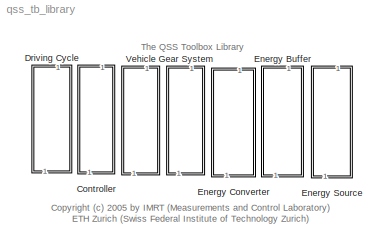
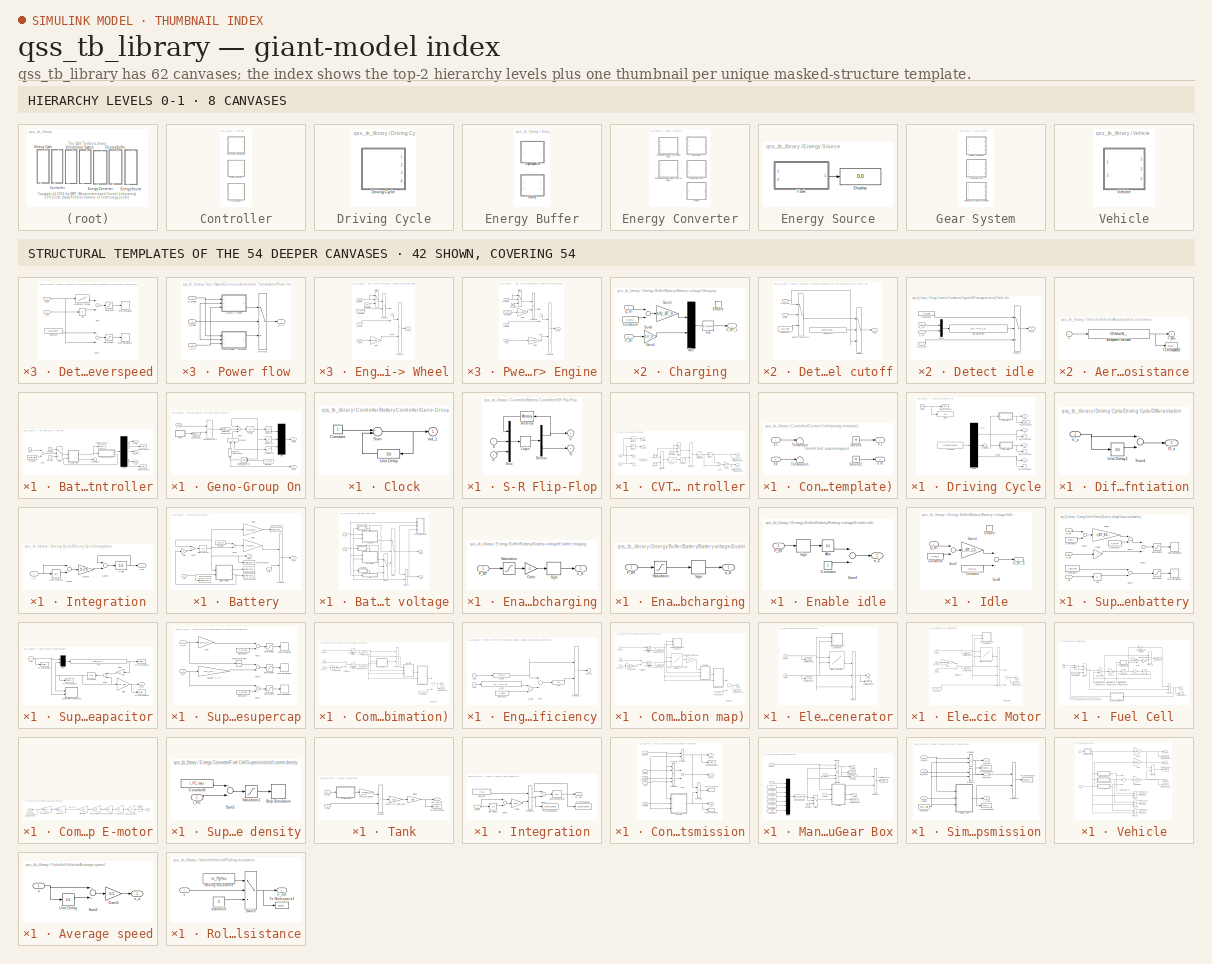
[diagram: thumbnail index - top-2 hierarchy levels (8 canvases) + 42 structural-template representatives of the remaining 54 canvases]
MODEL qss_tb_library
KIND library
BLOCK [SubSystem] Controller
  MaskDisplay = disp('Controller')
  MaskHideContents = off
  MaskIconFrame = on
  MaskIconOpaque = on
  MaskIconRotate = port
  MaskIconUnits = autoscale
  MinAlgLoopOccurrences = off
  Ports = []
  RTWSystemCode = Auto
  TreatAsAtomicUnit = off
BLOCK [SubSystem] Controller/Battery Controller
  AncestorBlock = qss_tb_library/Controller/Battery Controller
  MaskDescription = Control strategy (very primitive):\n========================\nAs soon as battery charge drops below level Q_BT_min, the CE/Generator\nare started and operated at given load/speed for a fixed time period.\nThis time has been selected to guarantee the same battery level at the\nend of the cycle.\n
  MaskHideContents = off
  MaskIconFrame = on
  MaskIconOpaque = on
  MaskIconRotate = none
  MaskIconUnits = autoscale
  MaskInitialization = init_BT_ctrl;
  MaskType = Battery Controller
  MinAlgLoopOccurrences = off
  Ports = [1, 3]
  RTWSystemCode = Auto
  TreatAsAtomicUnit = off
BLOCK [Constant] Controller/Battery Controller/Constant
  OutDataTypeMode = boolean
BLOCK [Constant] Controller/Battery Controller/Constant1
  Value = Q_BT_min
BLOCK [Constant] Controller/Battery Controller/Constant2
  OutDataTypeMode = boolean
  Value = 0
BLOCK [Demux] Controller/Battery Controller/Demux
  Outputs = 3
  Ports = [1, 3]
BLOCK [SubSystem] Controller/Battery Controller/Geno-Group On
  MaskHideContents = off
  MinAlgLoopOccurrences = off
  Ports = [1, 2]
  RTWSystemCode = Auto
  TreatAsAtomicUnit = off
BLOCK [SubSystem] Controller/Battery Controller/Geno-Group On/Clock
  MaskDescription = Digital clock.\nOutput is set to 1 for the first half of the period.
  MaskDisplay = plot(0,0,100,100,[90,75,75,60,60,35,35,20,20,10],[20,20,80,80,19,20,80,80,20,20])
  MaskEnableString = on
  MaskHelp = Digital clock for logic systems.
  MaskHideContents = off
  MaskIconFrame = on
  MaskIconOpaque = on
  MaskIconRotate = none
  MaskIconUnits = autoscale
  MaskInitialization = duration = @1/2;
  MaskPromptString = Period:
  MaskStyleString = edit
  MaskToolTipString = on
  MaskTunableValueString = on
  MaskType = Digital clock
  MaskValueString = 2
  MaskVisibilityString = on
  MinAlgLoopOccurrences = off
  Ports = [0, 1]
  RTWSystemCode = Auto
  TreatAsAtomicUnit = off
BLOCK [Constant] Controller/Battery Controller/Geno-Group On/Clock/Constant
BLOCK [Sum] Controller/Battery Controller/Geno-Group On/Clock/Sum
  Inputs = +-
  Ports = [2, 1]
BLOCK [UnitDelay] Controller/Battery Controller/Geno-Group On/Clock/Unit Delay
  MaskIconFrame = on
  MaskIconOpaque = on
  MaskIconRotate = none
  MaskIconUnits = autoscale
  SampleTime = duration
BLOCK [Outport] Controller/Battery Controller/Geno-Group On/Clock/out_1
  BusOutputAsStruct = off
  IconDisplay = Port number
  InitialOutput = 0
BLOCK [Constant] Controller/Battery Controller/Geno-Group On/Constant
  Value = cc_done
BLOCK [UnitDelay] Controller/Battery Controller/Geno-Group On/Counter
  SampleTime = h
BLOCK [DataTypeConversion] Controller/Battery Controller/Geno-Group On/Data Type Conversion1
  OutDataTypeMode = boolean
  RndMeth = Floor
  SaturateOnIntegerOverflow = off
BLOCK [DataTypeConversion] Controller/Battery Controller/Geno-Group On/Data Type Conversion2
  OutDataTypeMode = double
  RndMeth = Floor
  SaturateOnIntegerOverflow = off
BLOCK [DataTypeConversion] Controller/Battery Controller/Geno-Group On/Data Type Conversion3
  OutDataTypeMode = double
  RndMeth = Floor
  SaturateOnIntegerOverflow = off
BLOCK [Logic] Controller/Battery Controller/Geno-Group On/Logical\noperator3
  Ports = [2, 1]
BLOCK [Mux] Controller/Battery Controller/Geno-Group On/Mux
  Inputs = 3
  Ports = [3, 1]
BLOCK [Outport] Controller/Battery Controller/Geno-Group On/OutOn
  BusOutputAsStruct = off
  IconDisplay = Port number
  InitialOutput = 0
BLOCK [Product] Controller/Battery Controller/Geno-Group On/Product
  Ports = [2, 1]
BLOCK [RelationalOperator] Controller/Battery Controller/Geno-Group On/Relational\nOperator
  LogicOutDataTypeMode = Boolean
BLOCK [Sum] Controller/Battery Controller/Geno-Group On/Sum3
  Inputs = ++-
  Ports = [3, 1]
BLOCK [Lookup] Controller/Battery Controller/Geno-Group On/T_EG start-up
  InputValues = t_c
  OutputValues = T_EG_c
BLOCK [Inport] Controller/Battery Controller/Geno-Group On/cc_on
  IconDisplay = Port number
BLOCK [Outport] Controller/Battery Controller/Geno-Group On/done
  BusOutputAsStruct = off
  IconDisplay = Port number
  InitialOutput = 0
  Port = 2
BLOCK [Lookup] Controller/Battery Controller/Geno-Group On/dw start-up
  InputValues = t_c
  OutputValues = dw_GG_c
BLOCK [Lookup] Controller/Battery Controller/Geno-Group On/w start-up
  InputValues = t_c
  OutputValues = w_GG_c
BLOCK [Inport] Controller/Battery Controller/Q_BT
  IconDisplay = Port number
BLOCK [SubSystem] Controller/Battery Controller/S-R Flip-Flop
  MaskHideContents = off
  MinAlgLoopOccurrences = off
  Ports = [2, 2]
  RTWSystemCode = Auto
  TreatAsAtomicUnit = off
BLOCK [Outport] Controller/Battery Controller/S-R Flip-Flop/!Q
  BusOutputAsStruct = off
  IconDisplay = Port number
  InitialOutput = 1
  Port = 2
BLOCK [Demux] Controller/Battery Controller/S-R Flip-Flop/Demux
  Outputs = 2
  Ports = [1, 2]
BLOCK [CombinatorialLogic] Controller/Battery Controller/S-R Flip-Flop/Logic
  TruthTable = [0 1;0 1;1 0;0 1;1 0;0 1;1 0;1 0]
BLOCK [Memory] Controller/Battery Controller/S-R Flip-Flop/Memory
  InheritSampleTime = on
  MaskIconFrame = on
  MaskIconOpaque = on
  MaskIconRotate = none
  MaskIconUnits = autoscale
BLOCK [Mux] Controller/Battery Controller/S-R Flip-Flop/Mux
  Inputs = 3
  Ports = [3, 1]
BLOCK [Outport] Controller/Battery Controller/S-R Flip-Flop/Q
  BusOutputAsStruct = off
  IconDisplay = Port number
  InitialOutput = 0
BLOCK [Inport] Controller/Battery Controller/S-R Flip-Flop/R
  IconDisplay = Port number
  Port = 2
BLOCK [Inport] Controller/Battery Controller/S-R Flip-Flop/S
  IconDisplay = Port number
BLOCK [Sum] Controller/Battery Controller/Sum
  Inputs = +-
  Ports = [2, 1]
BLOCK [Switch] Controller/Battery Controller/Switch
BLOCK [Outport] Controller/Battery Controller/T_ctrl
  BusOutputAsStruct = off
  IconDisplay = Port number
  InitialOutput = 0
  Port = 3
BLOCK [Terminator] Controller/Battery Controller/Terminator1
BLOCK [ToWorkspace] Controller/Battery Controller/To Workspace1
  MaxDataPoints = inf
  SampleTime = -1
  SaveFormat = Array
  VariableName = w_ctrl
BLOCK [ToWorkspace] Controller/Battery Controller/To Workspace2
  MaxDataPoints = inf
  SampleTime = -1
  SaveFormat = Array
  VariableName = T_ctrl
BLOCK [ToWorkspace] Controller/Battery Controller/To Workspace5
  MaxDataPoints = inf
  SampleTime = -1
  SaveFormat = Array
  VariableName = cc_on
BLOCK [Outport] Controller/Battery Controller/dw_ctrl
  BusOutputAsStruct = off
  IconDisplay = Port number
  InitialOutput = 0
  Port = 2
BLOCK [Outport] Controller/Battery Controller/w_ctrl
  BusOutputAsStruct = off
  IconDisplay = Port number
  InitialOutput = 0
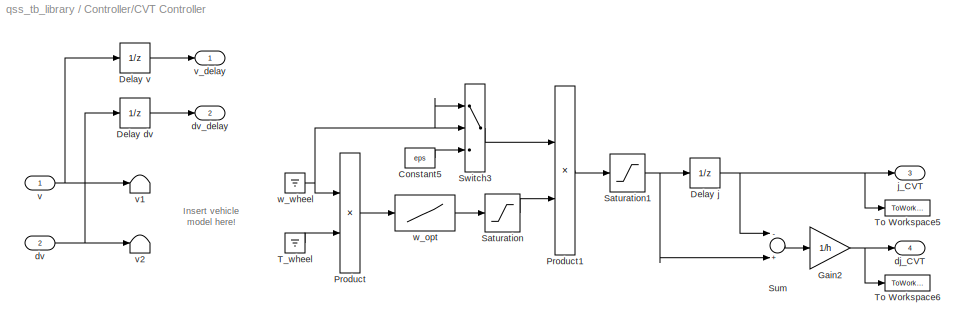
BLOCK [SubSystem] Controller/CVT Controller
  MaskCallbackString = ||||
  MaskDescription = This block calculates the optimum gear ratio and its change during one integration step for a CVT.\n\nInput:\n=====\n	v		Speed [m/s]\n	dv		Acceleration [m/s^2]\n\nOutput:\n======\n	v_delay		Speed one step delayed [m/s]\n	dv_delay	Acceleration one step delayed [m/s^2]\n	j_CVT		Gear ratio [-]\n	dj_CVT		Change of gear ratio [1/s]
  MaskEnableString = on,on,on,on,on
  MaskHideContents = off
  MaskIconFrame = on
  MaskIconOpaque = on
  MaskIconRotate = none
  MaskIconUnits = autoscale
  MaskInitialization = init_CVT_ctrl;
  MaskPromptString = Lower gear ratio limit [-]|Upper gear ratio limit [-]|Minimum wheel speed [rad/s]|CVT idle speed [rad/s]|Maximum CVT speed [rad/s]
  MaskStyleString = edit,edit,edit,edit,edit
  MaskTabNameString = ,,,,
  MaskToolTipString = on,on,on,on,on
  MaskTunableValueString = on,on,on,on,on
  MaskType = CVT Controller
  MaskValueString = 3|15|3|100|300
  MaskVarAliasString = ,,,,
  MaskVariables = j_CVT_min=@1;j_CVT_max=@2;w_wheel_min=@3;w_CVT_idle=@4;w_CVT_upper=@5;
  MaskVisibilityString = on,on,on,on,on
  MinAlgLoopOccurrences = off
  Ports = [2, 4]
  RTWSystemCode = Auto
  Tag = cvt controller
  TreatAsAtomicUnit = off
BLOCK [Constant] Controller/CVT Controller/Constant5
  Value = eps
BLOCK [UnitDelay] Controller/CVT Controller/Delay dv
  SampleTime = h
BLOCK [UnitDelay] Controller/CVT Controller/Delay j
  SampleTime = h
  X0 = j_CVT_min
BLOCK [UnitDelay] Controller/CVT Controller/Delay v
  SampleTime = h
BLOCK [Gain] Controller/CVT Controller/Gain2
  Gain = 1/h
BLOCK [Product] Controller/CVT Controller/Product
  Ports = [2, 1]
BLOCK [Product] Controller/CVT Controller/Product1
  Inputs = /*
  Ports = [2, 1]
BLOCK [Saturate] Controller/CVT Controller/Saturation
  LowerLimit = w_CVT_idle
  UpperLimit = w_CVT_upper
BLOCK [Saturate] Controller/CVT Controller/Saturation1
  LowerLimit = j_CVT_min
  UpperLimit = j_CVT_max
BLOCK [Sum] Controller/CVT Controller/Sum
  Inputs = -+
  Ports = [2, 1]
BLOCK [Switch] Controller/CVT Controller/Switch3
  Threshold = w_wheel_min
BLOCK [Ground] Controller/CVT Controller/T_wheel
BLOCK [ToWorkspace] Controller/CVT Controller/To Workspace5
  MaxDataPoints = inf
  SampleTime = -1
  SaveFormat = Array
  VariableName = j_CVT
BLOCK [ToWorkspace] Controller/CVT Controller/To Workspace6
  MaxDataPoints = inf
  SampleTime = -1
  SaveFormat = Array
  VariableName = dj_CVT
BLOCK [Outport] Controller/CVT Controller/dj_CVT
  BusOutputAsStruct = off
  IconDisplay = Port number
  InitialOutput = 0
  Port = 4
BLOCK [Inport] Controller/CVT Controller/dv
  IconDisplay = Port number
  Port = 2
BLOCK [Outport] Controller/CVT Controller/dv_delay
  BusOutputAsStruct = off
  IconDisplay = Port number
  InitialOutput = 0
  Port = 2
BLOCK [Outport] Controller/CVT Controller/j_CVT
  BusOutputAsStruct = off
  IconDisplay = Port number
  InitialOutput = 0
  Port = 3
BLOCK [Inport] Controller/CVT Controller/v
  IconDisplay = Port number
BLOCK [Terminator] Controller/CVT Controller/v1
BLOCK [Terminator] Controller/CVT Controller/v2
BLOCK [Outport] Controller/CVT Controller/v_delay
  BusOutputAsStruct = off
  IconDisplay = Port number
  InitialOutput = 0
BLOCK [Lookup] Controller/CVT Controller/w_opt
  InputValues = P_CVT_opt
  OutputValues = w_CVT_opt
BLOCK [Ground] Controller/CVT Controller/w_wheel
BLOCK [SubSystem] Controller/Control Unit\n(empty template)
  MaskDescription = This block gives the user the opportunity to design his/her own control unit. \n\nThe user can define the inputs and outputs  by himself/herself.\n
  MaskHideContents = off
  MaskIconFrame = on
  MaskIconOpaque = on
  MaskIconRotate = none
  MaskIconUnits = autoscale
  MaskType = Control Unit
  MinAlgLoopOccurrences = off
  Ports = [2, 2]
  RTWSystemCode = Auto
  Tag = control unit
  TreatAsAtomicUnit = off
BLOCK [Ground] Controller/Control Unit\n(empty template)/Ground
BLOCK [Ground] Controller/Control Unit\n(empty template)/Ground1
BLOCK [Terminator] Controller/Control Unit\n(empty template)/Terminator
BLOCK [Terminator] Controller/Control Unit\n(empty template)/Terminator1
BLOCK [Outport] Controller/Control Unit\n(empty template)/u 1
  BusOutputAsStruct = off
  IconDisplay = Port number
  InitialOutput = 0
BLOCK [Outport] Controller/Control Unit\n(empty template)/u m
  BusOutputAsStruct = off
  IconDisplay = Port number
  InitialOutput = 0
  Port = 2
BLOCK [Inport] Controller/Control Unit\n(empty template)/y 1
  IconDisplay = Port number
BLOCK [Inport] Controller/Control Unit\n(empty template)/y p
  IconDisplay = Port number
  Port = 2
BLOCK [SubSystem] Driving Cycle
  MaskDisplay = disp('Driving Cycle')
  MaskHideContents = off
  MaskIconFrame = on
  MaskIconOpaque = on
  MaskIconRotate = port
  MaskIconUnits = autoscale
  MinAlgLoopOccurrences = off
  Ports = []
  RTWSystemCode = Auto
  TreatAsAtomicUnit = off
BLOCK [SubSystem] Driving Cycle/Driving Cycle
  MaskCallbackString = ||
  MaskDescription = This block loads the cycle data such as time, speed, acceleration and gear number,  from the specified data file and makes it available on the output of the cycle block.\n\nOutput:\n======\n	v	Speed [m/s]\n	dv	Acceleration [m/s^2]\n	i	Gear number [-]\n	x_tot	Total distance [m]\n\nTip:\n===\nProbably you don't need the gear number \"i\". If so you can terminate\nit with a \"Terminator\" out of the ...<+423ch>
  MaskDisplay = plot(T_zplot, V_zplot);\n
  MaskEnableString = on,on,on
  MaskHideContents = off
  MaskIconFrame = on
  MaskIconOpaque = off
  MaskIconRotate = none
  MaskIconUnits = autoscale
  MaskInitialization = init_driving_cycle;
  MaskPromptString = Choose a cycle|Step size [s]|Enable automatic simulation stop
  MaskStyleString = popup(Europe: ECE manual|Europe: ECE R15 spez|Europe: ECE R15|Europe: EUDC|Europe: EUDC manual|Europe: City|Europe: City manual|Europe: NEDC|Europe: NEDC manual|Japan:  10-15-Mode|Japan:  10-Mode|Japan:  10-Mode-3|Japan:  11-Mode|Japan:  11-Mode-4|Japan:  15-Mode|USA:    City-I|USA:    City-II|USA:    FTP-75|USA:    FTP-Highway),edit,checkbox
  MaskTabNameString = ,,
  MaskToolTipString = on,on,on
  MaskTunableValueString = on,on,on
  MaskType = Driving Cycle
  MaskValueString = Europe: NEDC|1|on
  MaskVarAliasString = ,,
  MaskVariables = cyclenr=@1;stepsize=@2;autostop=@3;
  MaskVisibilityString = on,on,on
  MinAlgLoopOccurrences = off
  Ports = [0, 4]
  RTWSystemCode = Auto
  Tag = cycle
  TreatAsAtomicUnit = off
BLOCK [Clock] Driving Cycle/Driving Cycle/Clock
  Decimation = 10
BLOCK [FromWorkspace] Driving Cycle/Driving Cycle/Cycle data
  SampleTime = h
  VariableName = [T_z, V_z, D_z, G_z]
BLOCK [Demux] Driving Cycle/Driving Cycle/Demux
  Outputs = 3
  Ports = [1, 3]
BLOCK [SubSystem] Driving Cycle/Driving Cycle/Differentiation
  MaskHideContents = off
  MinAlgLoopOccurrences = off
  Ports = [1, 1]
  RTWSystemCode = Auto
  TreatAsAtomicUnit = off
BLOCK [Outport] Driving Cycle/Driving Cycle/Differentiation/D_z
  BusOutputAsStruct = off
  IconDisplay = Port number
  InitialOutput = 0
BLOCK [Sum] Driving Cycle/Driving Cycle/Differentiation/Sum1
  Inputs = +-
  Ports = [2, 1]
BLOCK [UnitDelay] Driving Cycle/Driving Cycle/Differentiation/Unit Delay1
  SampleTime = h
BLOCK [Inport] Driving Cycle/Driving Cycle/Differentiation/V_z
  IconDisplay = Port number
BLOCK [SubSystem] Driving Cycle/Driving Cycle/Integration
  MaskHideContents = off
  MinAlgLoopOccurrences = off
  Ports = [1, 1]
  RTWSystemCode = Auto
  TreatAsAtomicUnit = off
BLOCK [Gain] Driving Cycle/Driving Cycle/Integration/Gain4
  Gain = 0.5*h
BLOCK [UnitDelay] Driving Cycle/Driving Cycle/Integration/Plant
  SampleTime = h
  X0 = 1
BLOCK [Sum] Driving Cycle/Driving Cycle/Integration/Sum2
  Ports = [2, 1]
BLOCK [Sum] Driving Cycle/Driving Cycle/Integration/Sum4
  Ports = [2, 1]
BLOCK [UnitDelay] Driving Cycle/Driving Cycle/Integration/Unit Delay2
  SampleTime = h
BLOCK [Inport] Driving Cycle/Driving Cycle/Integration/V_z
  IconDisplay = Port number
BLOCK [Outport] Driving Cycle/Driving Cycle/Integration/x_tot
  BusOutputAsStruct = off
  IconDisplay = Port number
  InitialOutput = 0
BLOCK [Terminator] Driving Cycle/Driving Cycle/Terminator
BLOCK [Display] Driving Cycle/Driving Cycle/Time
  Decimation = 1
  Lockdown = off
  Ports = [1]
BLOCK [ToWorkspace] Driving Cycle/Driving Cycle/To Workspace1
  MaxDataPoints = inf
  SampleTime = -1
  SaveFormat = Array
  VariableName = t
BLOCK [ToWorkspace] Driving Cycle/Driving Cycle/To Workspace2
  MaxDataPoints = inf
  SampleTime = -1
  SaveFormat = Array
  VariableName = x_tot
BLOCK [ToWorkspace] Driving Cycle/Driving Cycle/To Workspace4
  MaxDataPoints = inf
  SampleTime = -1
  SaveFormat = Array
  VariableName = dv
BLOCK [ToWorkspace] Driving Cycle/Driving Cycle/To Workspace5
  MaxDataPoints = inf
  SampleTime = -1
  SaveFormat = Array
  VariableName = v
BLOCK [ToWorkspace] Driving Cycle/Driving Cycle/To Workspace6
  MaxDataPoints = inf
  SampleTime = -1
  SaveFormat = Array
  VariableName = i
BLOCK [Outport] Driving Cycle/Driving Cycle/dv
  BusOutputAsStruct = off
  IconDisplay = Port number
  InitialOutput = 0
  Port = 2
BLOCK [Outport] Driving Cycle/Driving Cycle/i
  BusOutputAsStruct = off
  IconDisplay = Port number
  InitialOutput = 0
  Port = 3
BLOCK [Outport] Driving Cycle/Driving Cycle/v
  BusOutputAsStruct = off
  IconDisplay = Port number
  InitialOutput = 0
BLOCK [Outport] Driving Cycle/Driving Cycle/x_tot
  BusOutputAsStruct = off
  IconDisplay = Port number
  InitialOutput = 0
  Port = 4
BLOCK [SubSystem] Energy Buffer
  MaskDisplay = disp('Energy Buffer')
  MaskHideContents = off
  MaskIconFrame = on
  MaskIconOpaque = on
  MaskIconRotate = port
  MaskIconUnits = autoscale
  MinAlgLoopOccurrences = off
  Ports = []
  RTWSystemCode = Auto
  TreatAsAtomicUnit = off
BLOCK [SubSystem] Energy Buffer/Battery
  MaskCallbackString = ||
  MaskDescription = This block simulates a battery. \nThe resistance depends on the charge state and the charge/discharge current of the battery. The battery has an open circuit voltage of 130 V (fully charged).\n\nInput:\n=====\n	x_tot	Total distance [m]\n	P_BT	Power from/to the battery [W]\n		P_BT < 0: battery charging\n		P_BT > 0: battery discharging\n\nOutput:\n======\n	Q_BT	Current charge of the battery [C]\n	V_...<+36ch>
  MaskEnableString = on,on,on
  MaskHideContents = off
  MaskIconFrame = on
  MaskIconOpaque = on
  MaskIconRotate = none
  MaskIconUnits = autoscale
  MaskInitialization = init_BT;
  MaskPromptString = Energy capacity of battery [Ah]|Initial charge of battery [%]|Current limit: minimum time to charge/discharge the battery [min]
  MaskStyleString = edit,edit,edit
  MaskTabNameString = ,,
  MaskToolTipString = on,on,on
  MaskTunableValueString = on,on,on
  MaskType = Battery
  MaskValueString = 100|27.78|20
  MaskVarAliasString = ,,
  MaskVariables = I_0=@1;Q_BT_IC_rel=@2;t_ch=@3;
  MaskVisibilityString = on,on,on
  MinAlgLoopOccurrences = off
  Ports = [2, 2]
  RTWSystemCode = Auto
  Tag = battery
  TreatAsAtomicUnit = off
BLOCK [UnitDelay] Energy Buffer/Battery/Battery charge
  SampleTime = h
  X0 = Q_BT_IC
BLOCK [SubSystem] Energy Buffer/Battery/Battery voltage
  MaskHideContents = off
  MinAlgLoopOccurrences = off
  Ports = [2, 2]
  RTWSystemCode = Auto
  TreatAsAtomicUnit = off
BLOCK [SubSystem] Energy Buffer/Battery/Battery voltage/Charging
  MaskHideContents = off
  MinAlgLoopOccurrences = off
  Ports = [2, 1, 1]
  RTWSystemCode = Auto
  TreatAsAtomicUnit = off
BLOCK [Constant] Energy Buffer/Battery/Battery voltage/Charging/Constant4
  Value = Q_BT_0
BLOCK [EnablePort] Energy Buffer/Battery/Battery voltage/Charging/Enable
  Ports = []
BLOCK [Fcn] Energy Buffer/Battery/Battery voltage/Charging/Fcn
  Expr = (c_BT_L3*u[1]+c_BT_L1+sqrt((c_BT_L3*u[1]+c_BT_L1)^2+4*(c_BT_L4*u[1]+c_BT_L2)*(-u[2])))/2
BLOCK [Gain] Energy Buffer/Battery/Battery voltage/Charging/Gain2
  Gain = 1/Q_BT_0
BLOCK [Gain] Energy Buffer/Battery/Battery voltage/Charging/Gain4
  Gain = 1/I_0
BLOCK [Mux] Energy Buffer/Battery/Battery voltage/Charging/Mux
  Inputs = 2
  Ports = [2, 1]
BLOCK [Inport] Energy Buffer/Battery/Battery voltage/Charging/P_BT
  IconDisplay = Port number
  Port = 2
BLOCK [Inport] Energy Buffer/Battery/Battery voltage/Charging/Q_BT
  IconDisplay = Port number
BLOCK [Sum] Energy Buffer/Battery/Battery voltage/Charging/Sum4
  Inputs = -+
  Ports = [2, 1]
BLOCK [Outport] Energy Buffer/Battery/Battery voltage/Charging/U_BT_L
  BusOutputAsStruct = off
  IconDisplay = Port number
  InitialOutput = 0
BLOCK [SubSystem] Energy Buffer/Battery/Battery voltage/Discharging
  MaskHideContents = off
  MinAlgLoopOccurrences = off
  Ports = [2, 1, 1]
  RTWSystemCode = Auto
  TreatAsAtomicUnit = off
BLOCK [Constant] Energy Buffer/Battery/Battery voltage/Discharging/Constant6
  Value = Q_BT_0
BLOCK [EnablePort] Energy Buffer/Battery/Battery voltage/Discharging/Enable
  Ports = []
BLOCK [Fcn] Energy Buffer/Battery/Battery voltage/Discharging/Fcn
  Expr = (c_BT_E3*u[1]+c_BT_E1+sqrt((c_BT_E3*u[1]+c_BT_E1)^2+4*(c_BT_E4*u[1]+c_BT_E2)*(-u[2])))/2
BLOCK [Gain] Energy Buffer/Battery/Battery voltage/Discharging/Gain4
  Gain = 1/Q_BT_0
BLOCK [Gain] Energy Buffer/Battery/Battery voltage/Discharging/Gain5
  Gain = 1/I_0
BLOCK [Mux] Energy Buffer/Battery/Battery voltage/Discharging/Mux
  Inputs = 2
  Ports = [2, 1]
BLOCK [Inport] Energy Buffer/Battery/Battery voltage/Discharging/P_BT
  IconDisplay = Port number
  Port = 2
BLOCK [Inport] Energy Buffer/Battery/Battery voltage/Discharging/Q_BT
  IconDisplay = Port number
BLOCK [Sum] Energy Buffer/Battery/Battery voltage/Discharging/Sum7
  Inputs = -+
  Ports = [2, 1]
BLOCK [Outport] Energy Buffer/Battery/Battery voltage/Discharging/U_BT_E
  BusOutputAsStruct = off
  IconDisplay = Port number
  InitialOutput = 0
BLOCK [SubSystem] Energy Buffer/Battery/Battery voltage/Enable charging
  MaskHideContents = off
  MinAlgLoopOccurrences = off
  Ports = [1, 1]
  RTWSystemCode = Auto
  TreatAsAtomicUnit = off
BLOCK [Gain] Energy Buffer/Battery/Battery voltage/Enable charging/Gain
  Gain = -1
BLOCK [Inport] Energy Buffer/Battery/Battery voltage/Enable charging/P_BT
  IconDisplay = Port number
BLOCK [Saturate] Energy Buffer/Battery/Battery voltage/Enable charging/Saturation
  LowerLimit = -inf
  UpperLimit = 0
BLOCK [Signum] Energy Buffer/Battery/Battery voltage/Enable charging/Sign
BLOCK [Outport] Energy Buffer/Battery/Battery voltage/Enable charging/e_E
  BusOutputAsStruct = off
  IconDisplay = Port number
  InitialOutput = 0
BLOCK [SubSystem] Energy Buffer/Battery/Battery voltage/Enable discharging
  MaskHideContents = off
  MinAlgLoopOccurrences = off
  Ports = [1, 1]
  RTWSystemCode = Auto
  TreatAsAtomicUnit = off
BLOCK [Inport] Energy Buffer/Battery/Battery voltage/Enable discharging/P_BT
  IconDisplay = Port number
BLOCK [Saturate] Energy Buffer/Battery/Battery voltage/Enable discharging/Saturation
  LowerLimit = 0
  UpperLimit = inf
BLOCK [Signum] Energy Buffer/Battery/Battery voltage/Enable discharging/Sign
BLOCK [Outport] Energy Buffer/Battery/Battery voltage/Enable discharging/e_E
  BusOutputAsStruct = off
  IconDisplay = Port number
  InitialOutput = 0
BLOCK [SubSystem] Energy Buffer/Battery/Battery voltage/Enable idle
  MaskHideContents = off
  MinAlgLoopOccurrences = off
  Ports = [1, 1]
  RTWSystemCode = Auto
  TreatAsAtomicUnit = off
BLOCK [Abs] Energy Buffer/Battery/Battery voltage/Enable idle/Abs
BLOCK [Constant] Energy Buffer/Battery/Battery voltage/Enable idle/Constant
BLOCK [Inport] Energy Buffer/Battery/Battery voltage/Enable idle/P_BT
  IconDisplay = Port number
BLOCK [Signum] Energy Buffer/Battery/Battery voltage/Enable idle/Sign
BLOCK [Sum] Energy Buffer/Battery/Battery voltage/Enable idle/Sum4
  Inputs = -+
  Ports = [2, 1]
BLOCK [Outport] Energy Buffer/Battery/Battery voltage/Enable idle/e_Z
  BusOutputAsStruct = off
  IconDisplay = Port number
  InitialOutput = 0
BLOCK [Outport] Energy Buffer/Battery/Battery voltage/I_BT
  BusOutputAsStruct = off
  IconDisplay = Port number
  InitialOutput = 0
  Port = 2
BLOCK [SubSystem] Energy Buffer/Battery/Battery voltage/Idle
  MaskHideContents = off
  MinAlgLoopOccurrences = off
  Ports = [1, 1, 1]
  RTWSystemCode = Auto
  TreatAsAtomicUnit = off
BLOCK [Constant] Energy Buffer/Battery/Battery voltage/Idle/Constant
  Value = c_BT_L1
BLOCK [Constant] Energy Buffer/Battery/Battery voltage/Idle/Constant6
  Value = Q_BT_0
BLOCK [EnablePort] Energy Buffer/Battery/Battery voltage/Idle/Enable
  Ports = []
  StatesWhenEnabling = reset
BLOCK [Gain] Energy Buffer/Battery/Battery voltage/Idle/Gain4
  Gain = c_BT_L3/Q_BT_0
BLOCK [Inport] Energy Buffer/Battery/Battery voltage/Idle/Q_BT
  IconDisplay = Port number
BLOCK [Sum] Energy Buffer/Battery/Battery voltage/Idle/Sum7
  Inputs = -+
  Ports = [2, 1]
BLOCK [Sum] Energy Buffer/Battery/Battery voltage/Idle/Sum8
  Ports = [2, 1]
BLOCK [Outport] Energy Buffer/Battery/Battery voltage/Idle/U_BT_E
  BusOutputAsStruct = off
  IconDisplay = Port number
  InitialOutput = 0
BLOCK [Inport] Energy Buffer/Battery/Battery voltage/P_BT
  IconDisplay = Port number
  Port = 2
BLOCK [Product] Energy Buffer/Battery/Battery voltage/Product
  Inputs = /*
  Ports = [2, 1]
BLOCK [Inport] Energy Buffer/Battery/Battery voltage/Q_BT
  IconDisplay = Port number
BLOCK [SubSystem] Energy Buffer/Battery/Battery voltage/Supervision\nbattery
  MaskHideContents = off
  MinAlgLoopOccurrences = off
  Ports = [3]
  RTWSystemCode = Auto
  TreatAsAtomicUnit = off
BLOCK [Abs] Energy Buffer/Battery/Battery voltage/Supervision\nbattery/Abs
BLOCK [Constant] Energy Buffer/Battery/Battery voltage/Supervision\nbattery/Constant4
  Value = Q_BT_0
BLOCK [Constant] Energy Buffer/Battery/Battery voltage/Supervision\nbattery/Constant6
  Value = c_BT_E1
BLOCK [Constant] Energy Buffer/Battery/Battery voltage/Supervision\nbattery/Constant7
  Value = I_BT_max
BLOCK [Gain] Energy Buffer/Battery/Battery voltage/Supervision\nbattery/Gain2
  Gain = c_BT_E3/Q_BT_0
BLOCK [Gain] Energy Buffer/Battery/Battery voltage/Supervision\nbattery/Gain3
  Gain = 2
BLOCK [Inport] Energy Buffer/Battery/Battery voltage/Supervision\nbattery/I_BT
  IconDisplay = Port number
  Port = 3
BLOCK [Inport] Energy Buffer/Battery/Battery voltage/Supervision\nbattery/Q_BT
  IconDisplay = Port number
BLOCK [Saturate] Energy Buffer/Battery/Battery voltage/Supervision\nbattery/Saturation
  LowerLimit = -inf
  UpperLimit = 0
BLOCK [Saturate] Energy Buffer/Battery/Battery voltage/Supervision\nbattery/Saturation1
  LowerLimit = -inf
  UpperLimit = 0
BLOCK [Stop] Energy Buffer/Battery/Battery voltage/Supervision\nbattery/Stop Simulation
BLOCK [Stop] Energy Buffer/Battery/Battery voltage/Supervision\nbattery/Stop Simulation1
BLOCK [Sum] Energy Buffer/Battery/Battery voltage/Supervision\nbattery/Sum1
  Inputs = -+
  Ports = [2, 1]
BLOCK [Sum] Energy Buffer/Battery/Battery voltage/Supervision\nbattery/Sum2
  Inputs = +-
  Ports = [2, 1]
BLOCK [Sum] Energy Buffer/Battery/Battery voltage/Supervision\nbattery/Sum3
  Ports = [2, 1]
BLOCK [Sum] Energy Buffer/Battery/Battery voltage/Supervision\nbattery/Sum4
  Inputs = -+
  Ports = [2, 1]
BLOCK [Inport] Energy Buffer/Battery/Battery voltage/Supervision\nbattery/U_BT
  IconDisplay = Port number
  Port = 2
BLOCK [Switch] Energy Buffer/Battery/Battery voltage/Switch
  Threshold = 0.5
BLOCK [Switch] Energy Buffer/Battery/Battery voltage/Switch1
  Threshold = 0.5
BLOCK [Outport] Energy Buffer/Battery/Battery voltage/U_BT
  BusOutputAsStruct = off
  IconDisplay = Port number
  InitialOutput = 0
BLOCK [Constant] Energy Buffer/Battery/Constant
  Value = Q_BT_IC
BLOCK [Gain] Energy Buffer/Battery/Gain
  Gain = h
BLOCK [Gain] Energy Buffer/Battery/Gain1
  Gain = U_BT_0/3.6e1
BLOCK [Gain] Energy Buffer/Battery/Gain4
  Gain = 1/Q_BT_0
BLOCK [Inport] Energy Buffer/Battery/P_BT
  IconDisplay = Port number
BLOCK [Product] Energy Buffer/Battery/Product1
  Inputs = */
  Ports = [2, 1]
BLOCK [Outport] Energy Buffer/Battery/Q_BT
  BusOutputAsStruct = off
  IconDisplay = Port number
  InitialOutput = 0
BLOCK [Sum] Energy Buffer/Battery/Sum3
  Inputs = +-
  Ports = [2, 1]
BLOCK [Sum] Energy Buffer/Battery/Sum4
  Inputs = +-
  Ports = [2, 1]
BLOCK [ToWorkspace] Energy Buffer/Battery/To Workspace1
  MaxDataPoints = inf
  SampleTime = -1
  SaveFormat = Array
  VariableName = q_BT
BLOCK [ToWorkspace] Energy Buffer/Battery/To Workspace2
  MaxDataPoints = inf
  SampleTime = -1
  SaveFormat = Array
  VariableName = U_BT
BLOCK [ToWorkspace] Energy Buffer/Battery/To Workspace3
  MaxDataPoints = inf
  SampleTime = -1
  SaveFormat = Array
  VariableName = I_BT
BLOCK [ToWorkspace] Energy Buffer/Battery/To Workspace4
  MaxDataPoints = inf
  SampleTime = -1
  SaveFormat = Array
  VariableName = Q_BT
BLOCK [ToWorkspace] Energy Buffer/Battery/To Workspace5
  MaxDataPoints = inf
  SampleTime = -1
  SaveFormat = Array
  VariableName = P_BT
BLOCK [Outport] Energy Buffer/Battery/V_BT
  BusOutputAsStruct = off
  IconDisplay = Port number
  InitialOutput = 0
  Port = 2
BLOCK [Inport] Energy Buffer/Battery/x_tot
  IconDisplay = Port number
  Port = 2
BLOCK [SubSystem] Energy Buffer/Supercapacitor
  MaskCallbackString = |||||
  MaskDescription = The supercap is a fast electric energy buffer.\n\nInput:\n=====\n	P_SC	Power to/from the supercap [W]\n		P_SC < 0: SC charging\n		P_SC > 0: SC discharging\n\nOutput:\n======\n	U_SC	Voltage of the supercap [V]
  MaskEnableString = on,on,on,on,on,on
  MaskHideContents = off
  MaskIconFrame = on
  MaskIconOpaque = on
  MaskIconRotate = none
  MaskIconUnits = autoscale
  MaskInitialization = init_SC;
  MaskPromptString = Capacity of each supercap [F]|Internal resistance of each supercap [Ohm]|Maximum voltage of each supercap  [V]|Maximum power of each supercap [W]|Initial charge of each supercap [%]|Number of supercaps (parallel connection) [-]
  MaskStyleString = edit,edit,edit,edit,edit,edit
  MaskTabNameString = ,,,,,
  MaskToolTipString = on,on,on,on,on,on
  MaskTunableValueString = on,on,on,on,on,on
  MaskType = Supercapacitor
  MaskValueString = 8|0.72|225|17500|95|6
  MaskVarAliasString = ,,,,,
  MaskVariables = C_SC=@1;R_SC=@2;U_SC_max=@3;P_SC_max=@4;Q_SC_IC_rel=@5;N_SC=@6;
  MaskVisibilityString = on,on,on,on,on,on
  MinAlgLoopOccurrences = off
  Ports = [1, 1]
  RTWSystemCode = Auto
  Tag = supercap
  TreatAsAtomicUnit = off
BLOCK [Fcn] Energy Buffer/Supercapacitor/Fcn
  Expr = (-u[2]/C_SC+sqrt(u[2]^2/C_SC^2-4*R_SC*u[1]))/(2*R_SC)
BLOCK [Gain] Energy Buffer/Supercapacitor/Gain
  Gain = 1/C_SC
BLOCK [Gain] Energy Buffer/Supercapacitor/Gain1
  Gain = h
BLOCK [Mux] Energy Buffer/Supercapacitor/Mux
  Inputs = 2
  Ports = [2, 1]
BLOCK [Inport] Energy Buffer/Supercapacitor/P_SC
  IconDisplay = Port number
BLOCK [UnitDelay] Energy Buffer/Supercapacitor/SC charge
  SampleTime = h
  X0 = Q_SC_IC
BLOCK [Sum] Energy Buffer/Supercapacitor/Sum3
  Ports = [2, 1]
BLOCK [SubSystem] Energy Buffer/Supercapacitor/Supervision\nsupercap
  MaskHideContents = off
  MinAlgLoopOccurrences = off
  Ports = [2]
  RTWSystemCode = Auto
  TreatAsAtomicUnit = off
BLOCK [Gain] Energy Buffer/Supercapacitor/Supervision\nsupercap/Charge: P > 0
  Gain = 4*C_SC^2*R_SC
BLOCK [Constant] Energy Buffer/Supercapacitor/Supervision\nsupercap/Constant6
  Value = U_SC_max
BLOCK [Constant] Energy Buffer/Supercapacitor/Supervision\nsupercap/Constant7
  Value = P_SC_max
BLOCK [Gain] Energy Buffer/Supercapacitor/Supervision\nsupercap/Gain
  Gain = 1/C_SC
BLOCK [Math] Energy Buffer/Supercapacitor/Supervision\nsupercap/Math\nFunction
  Operator = square
  Ports = [1, 1]
BLOCK [Inport] Energy Buffer/Supercapacitor/Supervision\nsupercap/P_SC
  IconDisplay = Port number
  Port = 2
BLOCK [Inport] Energy Buffer/Supercapacitor/Supervision\nsupercap/Q_SC
  IconDisplay = Port number
BLOCK [Saturate] Energy Buffer/Supercapacitor/Supervision\nsupercap/Saturation1
  LowerLimit = -inf
  UpperLimit = 0
BLOCK [Saturate] Energy Buffer/Supercapacitor/Supervision\nsupercap/Saturation2
  LowerLimit = -inf
  UpperLimit = 0
BLOCK [Saturate] Energy Buffer/Supercapacitor/Supervision\nsupercap/Saturation3
  LowerLimit = -inf
  UpperLimit = 0
BLOCK [Stop] Energy Buffer/Supercapacitor/Supervision\nsupercap/Stop Simulation
BLOCK [Stop] Energy Buffer/Supercapacitor/Supervision\nsupercap/Stop Simulation1
BLOCK [Stop] Energy Buffer/Supercapacitor/Supervision\nsupercap/Stop Simulation2
BLOCK [Sum] Energy Buffer/Supercapacitor/Supervision\nsupercap/Sum1
  Inputs = -+
  Ports = [2, 1]
BLOCK [Sum] Energy Buffer/Supercapacitor/Supervision\nsupercap/Sum2
  Inputs = +-
  Ports = [2, 1]
BLOCK [Sum] Energy Buffer/Supercapacitor/Supervision\nsupercap/Sum4
  Ports = [2, 1]
BLOCK [ToWorkspace] Energy Buffer/Supercapacitor/To Workspace1
  MaxDataPoints = inf
  SampleTime = 1
  SaveFormat = Array
  VariableName = I_SC
BLOCK [ToWorkspace] Energy Buffer/Supercapacitor/To Workspace2
  MaxDataPoints = inf
  SampleTime = 1
  SaveFormat = Array
  VariableName = U_SC
BLOCK [ToWorkspace] Energy Buffer/Supercapacitor/To Workspace3
  MaxDataPoints = inf
  SampleTime = 1
  SaveFormat = Array
  VariableName = Q_SC
BLOCK [ToWorkspace] Energy Buffer/Supercapacitor/To Workspace4
  MaxDataPoints = inf
  SampleTime = 1
  SaveFormat = Array
  VariableName = P_SC
BLOCK [Outport] Energy Buffer/Supercapacitor/U_SC
  BusOutputAsStruct = off
  IconDisplay = Port number
  InitialOutput = 0
BLOCK [SubSystem] Energy Converter
  MaskDisplay = disp('Energy Converter')
  MaskHideContents = off
  MaskIconFrame = on
  MaskIconOpaque = on
  MaskIconRotate = port
  MaskIconUnits = autoscale
  MinAlgLoopOccurrences = off
  Ports = []
  RTWSystemCode = Auto
  TreatAsAtomicUnit = off
BLOCK [SubSystem] Energy Converter/Combustion Engine\n(Willans-approximation)
  AncestorBlock = qss_lib/Energy Converter/combustion engine
  MaskCallbackString = |||||||||||||
  MaskDescription = This block simulates the behaviour of a combustion engine. The block is based on the Willans approximation with friction part based on the ETH model.\n\nInput:\n=====\n	w_gear		Speed of the fly wheel [rad/s]\n	dw_gear	Acceleration of the fly wheel [rad/s^2]\n	T_gear		Torque on the fly wheel [Nm]\n\nOutput:\n======\n	P_CE		Power produced by the combustion engine [W]\n\n
  MaskEnableString = on,on,on,on,on,on,on,on,on,on,on,on,on,on
  MaskHideContents = off
  MaskIconFrame = on
  MaskIconOpaque = off
  MaskIconRotate = none
  MaskIconUnits = autoscale
  MaskInitialization = init_CE_willans;
  MaskPromptString = Engine type|Displacement [l]|Engine inertia [kg*m^2]|Stroke [mm]|Bore diameter [mm]|Engine speed at idle [rad/s]|Engine power at idle [W]|Power required by auxiliaries  [W]|1. Willans parameter: Engine internal thermodynamic efficiency [-]|2. Willans parameter: Maximum boost ratio [-]|3. Willans parameter: Gas exchange losses [bar]|Enable fuel cutoff|Engine torque at fuel cutoff [Nm]|Power at fuel...<+11ch>
  MaskStyleString = popup(Otto|Diesel),edit,edit,edit,edit,edit,edit,edit,edit,edit,edit,checkbox,edit,edit
  MaskTabNameString = ,,,,,,,,,,,,,
  MaskToolTipString = on,on,on,on,on,on,on,on,on,on,on,on,on,on
  MaskTunableValueString = on,on,on,on,on,on,on,on,on,on,on,on,on,on
  MaskType = Combustion Engine (based on Willans approximation)
  MaskValueString = Otto|0.708|0.05|50|45|105|2600|300|0.46|2|1|on|5|0
  MaskVarAliasString = ,,,,,,,,,,,,,
  MaskVariables = engine_type=@1;V_d=@2;theta_CE=@3;S=@4;B=@5;w_CE_idle=@6;P_CE_idle=@7;P_aux=@8;e=@9;PI=@10;p_me0g=@11;ENABLE_FUEL_CUTOFF=@12;T_CE_cutoff=@13;P_CE_cutoff=@14;
  MaskVisibilityString = on,on,on,on,on,on,on,on,on,on,on,on,on,on
  MinAlgLoopOccurrences = off
  Ports = [3, 1]
  RTWSystemCode = Auto
  Tag = combustion engine
  TreatAsAtomicUnit = off
BLOCK [Constant] Energy Converter/Combustion Engine\n(Willans-approximation)/Constant1
  Value = P_aux
BLOCK [SubSystem] Energy Converter/Combustion Engine\n(Willans-approximation)/Detect fuel cutoff
  AncestorBlock = qss_tb_library/Energy Converter/Combustion Engine\n(consumption map)/Detect fuel cutoff
  MaskHideContents = off
  MinAlgLoopOccurrences = off
  Ports = [2, 1]
  RTWSystemCode = Auto
  TreatAsAtomicUnit = off
BLOCK [Constant] Energy Converter/Combustion Engine\n(Willans-approximation)/Detect fuel cutoff/Constant1
  Value = ENABLE_FUEL_CUTOFF
BLOCK [Constant] Energy Converter/Combustion Engine\n(Willans-approximation)/Detect fuel cutoff/Constant3
  Value = P_CE_cutoff
BLOCK [Switch] Energy Converter/Combustion Engine\n(Willans-approximation)/Detect fuel cutoff/Decision
  InputSameDT = off
  SaturateOnIntegerOverflow = off
  Threshold = 0.5
BLOCK [Switch] Energy Converter/Combustion Engine\n(Willans-approximation)/Detect fuel cutoff/Detect fuel cutoff
  Threshold = T_CE_cutoff + 0.01
BLOCK [Outport] Energy Converter/Combustion Engine\n(Willans-approximation)/Detect fuel cutoff/P_CE
  BusOutputAsStruct = off
  IconDisplay = Port number
BLOCK [Inport] Energy Converter/Combustion Engine\n(Willans-approximation)/Detect fuel cutoff/P_CE_fuel
  IconDisplay = Port number
BLOCK [Inport] Energy Converter/Combustion Engine\n(Willans-approximation)/Detect fuel cutoff/T_CE
  IconDisplay = Port number
  Port = 2
BLOCK [SubSystem] Energy Converter/Combustion Engine\n(Willans-approximation)/Detect idle
  MaskHideContents = off
  MinAlgLoopOccurrences = off
  Ports = [3, 1]
  RTWSystemCode = Auto
  TreatAsAtomicUnit = off
BLOCK [Constant] Energy Converter/Combustion Engine\n(Willans-approximation)/Detect idle/Constant3
  Value = P_CE_idle
BLOCK [Fcn] Energy Converter/Combustion Engine\n(Willans-approximation)/Detect idle/Idle detection
  Expr = (u(1) <= w_CE_idle) * (u(2) <= T_CE_idle)
BLOCK [Mux] Energy Converter/Combustion Engine\n(Willans-approximation)/Detect idle/Mux
  DisplayOption = bar
  Inputs = 2
  Ports = [2, 1]
BLOCK [Outport] Energy Converter/Combustion Engine\n(Willans-approximation)/Detect idle/P_CE
  BusOutputAsStruct = off
  IconDisplay = Port number
  InitialOutput = 0
BLOCK [Inport] Energy Converter/Combustion Engine\n(Willans-approximation)/Detect idle/P_CE_fuel
  IconDisplay = Port number
BLOCK [Switch] Energy Converter/Combustion Engine\n(Willans-approximation)/Detect idle/Switch2
  Threshold = 0.5
BLOCK [Inport] Energy Converter/Combustion Engine\n(Willans-approximation)/Detect idle/T_CE
  IconDisplay = Port number
  Port = 3
BLOCK [Inport] Energy Converter/Combustion Engine\n(Willans-approximation)/Detect idle/w_CE
  IconDisplay = Port number
  Port = 2
BLOCK [SubSystem] Energy Converter/Combustion Engine\n(Willans-approximation)/Engine efficiency
  MaskHideContents = off
  MinAlgLoopOccurrences = off
  Ports = [2, 1]
  RTWSystemCode = Auto
  TreatAsAtomicUnit = off
BLOCK [Constant] Energy Converter/Combustion Engine\n(Willans-approximation)/Engine efficiency/Constant3
  Value = p_me0g
BLOCK [Product] Energy Converter/Combustion Engine\n(Willans-approximation)/Engine efficiency/Product1
  Inputs = */
  Ports = [2, 1]
BLOCK [Sum] Energy Converter/Combustion Engine\n(Willans-approximation)/Engine efficiency/Sum
  Ports = [2, 1]
BLOCK [Inport] Energy Converter/Combustion Engine\n(Willans-approximation)/Engine efficiency/T_CE
  IconDisplay = Port number
  Port = 2
BLOCK [Outport] Energy Converter/Combustion Engine\n(Willans-approximation)/Engine efficiency/eta_CE
  BusOutputAsStruct = off
  IconDisplay = Port number
  InitialOutput = 0
BLOCK [Fcn] Energy Converter/Combustion Engine\n(Willans-approximation)/Engine efficiency/p_me
  Expr = 4*pi*u/V_d
BLOCK [Sum] Energy Converter/Combustion Engine\n(Willans-approximation)/Engine efficiency/p_me0
  Ports = [2, 1]
BLOCK [Fcn] Energy Converter/Combustion Engine\n(Willans-approximation)/Engine efficiency/p_mef
  Expr = k1 * (k2 + k3*(S^2)*(u^2)) * PI * sqrt(k4/B)
BLOCK [Fcn] Energy Converter/Combustion Engine\n(Willans-approximation)/Engine efficiency/p_mf
  Expr = u/e
BLOCK [Inport] Energy Converter/Combustion Engine\n(Willans-approximation)/Engine efficiency/w_CE
  IconDisplay = Port number
BLOCK [Gain] Energy Converter/Combustion Engine\n(Willans-approximation)/Engine inertia
  Gain = theta_CE
BLOCK [Saturate] Energy Converter/Combustion Engine\n(Willans-approximation)/Lower limit\n(fuel cutoff)
  LowerLimit = T_CE_cutoff
  UpperLimit = inf
BLOCK [Saturate] Energy Converter/Combustion Engine\n(Willans-approximation)/Lower limit\n(speed at idle)
  LowerLimit = w_CE_idle
  UpperLimit = inf
BLOCK [Outport] Energy Converter/Combustion Engine\n(Willans-approximation)/P_CE
  BusOutputAsStruct = off
  IconDisplay = Port number
  InitialOutput = 0
BLOCK [Product] Energy Converter/Combustion Engine\n(Willans-approximation)/Product
  Inputs = **/
  Ports = [3, 1]
BLOCK [Inport] Energy Converter/Combustion Engine\n(Willans-approximation)/T_gear
  IconDisplay = Port number
  Port = 3
BLOCK [ToWorkspace] Energy Converter/Combustion Engine\n(Willans-approximation)/To Workspace3
  MaxDataPoints = inf
  SampleTime = -1
  SaveFormat = Array
  VariableName = T_CE
BLOCK [ToWorkspace] Energy Converter/Combustion Engine\n(Willans-approximation)/To Workspace4
  MaxDataPoints = inf
  SampleTime = -1
  SaveFormat = Array
  VariableName = w_CE
BLOCK [ToWorkspace] Energy Converter/Combustion Engine\n(Willans-approximation)/To Workspace5
  MaxDataPoints = inf
  SampleTime = -1
  SaveFormat = Array
  VariableName = P_CE
BLOCK [Sum] Energy Converter/Combustion Engine\n(Willans-approximation)/Total power
  Ports = [2, 1]
BLOCK [Sum] Energy Converter/Combustion Engine\n(Willans-approximation)/Total torque
  Ports = [2, 1]
BLOCK [Inport] Energy Converter/Combustion Engine\n(Willans-approximation)/dw_gear
  IconDisplay = Port number
  Port = 2
BLOCK [Inport] Energy Converter/Combustion Engine\n(Willans-approximation)/w_gear
  IconDisplay = Port number
BLOCK [SubSystem] Energy Converter/Combustion Engine\n(consumption map)
  AncestorBlock = QSS_TB_lib/Energy Converter/Combustion Engine
  MaskCallbackString = |||||||||
  MaskDescription = This block simulates the behaviour of a combustion engine. The block is based on a consumption map.\n\nInput:\n=====\n	w_gear		Speed of the fly wheel [rad/s]\n	dw_gear	Acceleration of the fly wheel [rad/s^2]\n	T_gear		Torque on the fly wheel [Nm]\n\nOutput:\n======\n	P_CE		Power produced by the combustion engine [W]\n\n
  MaskEnableString = on,on,on,on,on,on,on,on,on,on
  MaskHideContents = off
  MaskIconFrame = on
  MaskIconOpaque = off
  MaskIconRotate = none
  MaskIconUnits = autoscale
  MaskInitialization = init_CE_map;
  MaskPromptString = Engine type|Displacement [l]|Engine scaling factor [-]|Engine inertia [kg*m^2]|Engine speed at idle [rad/s]|Engine power at idle [W]|Power required by auxiliaries [W]|Enable fuel cutoff|Engine torque at fuel cutoff [Nm]|Power at fuel cutoff [W]
  MaskStyleString = popup(Otto|Diesel),edit,edit,edit,edit,edit,edit,checkbox,edit,edit
  MaskTabNameString = ,,,,,,,,,
  MaskToolTipString = on,on,on,on,on,on,on,on,on,on
  MaskTunableValueString = on,on,on,on,on,on,on,on,on,on
  MaskType = Combustion Engine (based on consumption map)
  MaskValueString = Otto|0.708|1|0.05|105|2600|300|on|5|0
  MaskVarAliasString = ,,,,,,,,,
  MaskVariables = engine_type=@1;V_d=@2;scale_CE=@3;theta_CE=@4;w_CE_idle=@5;P_CE_idle=@6;P_aux=@7;ENABLE_FUEL_CUTOFF=@8;T_CE_cutoff=@9;P_CE_cutoff=@10;
  MaskVisibilityString = on,on,on,on,on,on,on,on,on,on
  MinAlgLoopOccurrences = off
  Ports = [3, 1]
  RTWSystemCode = Auto
  Tag = combustion engine
  TreatAsAtomicUnit = off
BLOCK [Constant] Energy Converter/Combustion Engine\n(consumption map)/Constant1
  Value = P_aux
BLOCK [SubSystem] Energy Converter/Combustion Engine\n(consumption map)/Detect fuel cutoff
  MaskHideContents = off
  MinAlgLoopOccurrences = off
  Ports = [2, 1]
  RTWSystemCode = Auto
  TreatAsAtomicUnit = off
BLOCK [Constant] Energy Converter/Combustion Engine\n(consumption map)/Detect fuel cutoff/Constant1
  Value = ENABLE_FUEL_CUTOFF
BLOCK [Constant] Energy Converter/Combustion Engine\n(consumption map)/Detect fuel cutoff/Constant3
  Value = P_CE_cutoff
BLOCK [Switch] Energy Converter/Combustion Engine\n(consumption map)/Detect fuel cutoff/Decision
  InputSameDT = off
  SaturateOnIntegerOverflow = off
  Threshold = 0.5
BLOCK [Switch] Energy Converter/Combustion Engine\n(consumption map)/Detect fuel cutoff/Detect fuel cutoff
  Threshold = T_CE_cutoff + 0.01
BLOCK [Outport] Energy Converter/Combustion Engine\n(consumption map)/Detect fuel cutoff/P_CE
  BusOutputAsStruct = off
  IconDisplay = Port number
BLOCK [Inport] Energy Converter/Combustion Engine\n(consumption map)/Detect fuel cutoff/P_CE_fuel
  IconDisplay = Port number
BLOCK [Inport] Energy Converter/Combustion Engine\n(consumption map)/Detect fuel cutoff/T_CE
  IconDisplay = Port number
  Port = 2
BLOCK [SubSystem] Energy Converter/Combustion Engine\n(consumption map)/Detect idle
  MaskHideContents = off
  MinAlgLoopOccurrences = off
  Ports = [3, 1]
  RTWSystemCode = Auto
  TreatAsAtomicUnit = off
BLOCK [Constant] Energy Converter/Combustion Engine\n(consumption map)/Detect idle/Constant3
  Value = P_CE_idle
BLOCK [Fcn] Energy Converter/Combustion Engine\n(consumption map)/Detect idle/Idle detection
  Expr = (u(1) <= w_CE_idle) * (u(2) <= T_CE_idle)
BLOCK [Mux] Energy Converter/Combustion Engine\n(consumption map)/Detect idle/Mux
  DisplayOption = bar
  Inputs = 2
  Ports = [2, 1]
BLOCK [Outport] Energy Converter/Combustion Engine\n(consumption map)/Detect idle/P_CE
  BusOutputAsStruct = off
  IconDisplay = Port number
  InitialOutput = 0
BLOCK [Inport] Energy Converter/Combustion Engine\n(consumption map)/Detect idle/P_CE_fuel
  IconDisplay = Port number
BLOCK [Switch] Energy Converter/Combustion Engine\n(consumption map)/Detect idle/Switch2
  Threshold = 0.5
BLOCK [Inport] Energy Converter/Combustion Engine\n(consumption map)/Detect idle/T_CE
  IconDisplay = Port number
  Port = 3
BLOCK [Inport] Energy Converter/Combustion Engine\n(consumption map)/Detect idle/w_CE
  IconDisplay = Port number
  Port = 2
BLOCK [SubSystem] Energy Converter/Combustion Engine\n(consumption map)/Detect overload\nand overspeed
  MaskHideContents = off
  MinAlgLoopOccurrences = off
  Ports = [2]
  RTWSystemCode = Auto
  TreatAsAtomicUnit = off
BLOCK [Abs] Energy Converter/Combustion Engine\n(consumption map)/Detect overload\nand overspeed/Abs
BLOCK [Constant] Energy Converter/Combustion Engine\n(consumption map)/Detect overload\nand overspeed/Constant
  Value = w_CE_upper
BLOCK [Lookup] Energy Converter/Combustion Engine\n(consumption map)/Detect overload\nand overspeed/Maximum torque
  InputValues = w_CE_max
  OutputValues = T_CE_max
BLOCK [Saturate] Energy Converter/Combustion Engine\n(consumption map)/Detect overload\nand overspeed/Saturation
  LowerLimit = -inf
  UpperLimit = 0
BLOCK [Saturate] Energy Converter/Combustion Engine\n(consumption map)/Detect overload\nand overspeed/Saturation1
  LowerLimit = -inf
  UpperLimit = 0
BLOCK [Stop] Energy Converter/Combustion Engine\n(consumption map)/Detect overload\nand overspeed/Stop Simulation
BLOCK [Stop] Energy Converter/Combustion Engine\n(consumption map)/Detect overload\nand overspeed/Stop Simulation1
BLOCK [Sum] Energy Converter/Combustion Engine\n(consumption map)/Detect overload\nand overspeed/Sum
  Inputs = +-
  Ports = [2, 1]
BLOCK [Sum] Energy Converter/Combustion Engine\n(consumption map)/Detect overload\nand overspeed/Sum1
  Inputs = +-
  Ports = [2, 1]
BLOCK [Inport] Energy Converter/Combustion Engine\n(consumption map)/Detect overload\nand overspeed/T_CE
  IconDisplay = Port number
  Port = 2
BLOCK [Inport] Energy Converter/Combustion Engine\n(consumption map)/Detect overload\nand overspeed/w_CE
  IconDisplay = Port number
BLOCK [Lookup2D] Energy Converter/Combustion Engine\n(consumption map)/Engine consumption map\nV = f(w, T)\n[kg//s]
  ColumnIndex = T_CE_col
  InputSameDT = off
  OutputValues = V_CE_map
  RowIndex = w_CE_row
  SaturateOnIntegerOverflow = off
BLOCK [Gain] Energy Converter/Combustion Engine\n(consumption map)/Engine inertia
  Gain = theta_CE
BLOCK [Gain] Energy Converter/Combustion Engine\n(consumption map)/Fuel lower\nheating value
  Gain = H_u
BLOCK [Saturate] Energy Converter/Combustion Engine\n(consumption map)/Lower limit\n(fuel cutoff)
  LowerLimit = T_CE_cutoff
  UpperLimit = inf
BLOCK [Saturate] Energy Converter/Combustion Engine\n(consumption map)/Lower limit\n(speed at idle)
  LowerLimit = w_CE_idle
  UpperLimit = inf
BLOCK [Outport] Energy Converter/Combustion Engine\n(consumption map)/P_CE
  BusOutputAsStruct = off
  IconDisplay = Port number
  InitialOutput = 0
BLOCK [Inport] Energy Converter/Combustion Engine\n(consumption map)/T_gear
  IconDisplay = Port number
  Port = 3
BLOCK [ToWorkspace] Energy Converter/Combustion Engine\n(consumption map)/To Workspace3
  MaxDataPoints = inf
  SampleTime = -1
  SaveFormat = Array
  VariableName = T_CE
BLOCK [ToWorkspace] Energy Converter/Combustion Engine\n(consumption map)/To Workspace4
  MaxDataPoints = inf
  SampleTime = -1
  SaveFormat = Array
  VariableName = w_CE
BLOCK [ToWorkspace] Energy Converter/Combustion Engine\n(consumption map)/To Workspace5
  MaxDataPoints = inf
  SampleTime = -1
  SaveFormat = Array
  VariableName = P_CE
BLOCK [Sum] Energy Converter/Combustion Engine\n(consumption map)/Total power
  Ports = [2, 1]
BLOCK [Sum] Energy Converter/Combustion Engine\n(consumption map)/Total torque
  Ports = [2, 1]
BLOCK [Inport] Energy Converter/Combustion Engine\n(consumption map)/dw_gear
  IconDisplay = Port number
  Port = 2
BLOCK [Inport] Energy Converter/Combustion Engine\n(consumption map)/w_gear
  IconDisplay = Port number
BLOCK [SubSystem] Energy Converter/Electric Generator
  AncestorBlock = QSS_TB_lib/Energy Converter/Electric Motor
  MaskDescription = This block simulates the behaviour of an electric generator. The block is based on an efficiency map.\n\nInput:\n=====\n	w_gear		Speed of the fly wheel [rad/s]\n	T_gear		Torque on the fly wheel [Nm]\n\nOutput:\n======\n	P_EG		Power of the electric generator [W]
  MaskEnableString = on
  MaskHideContents = off
  MaskIconFrame = on
  MaskIconOpaque = on
  MaskIconRotate = none
  MaskIconUnits = autoscale
  MaskInitialization = init_EG;
  MaskPromptString = Generator scaling factor [-]
  MaskStyleString = edit
  MaskToolTipString = on
  MaskTunableValueString = on
  MaskType = Electric Generator
  MaskValueString = 1
  MaskVariables = scale_EG=@1;
  MaskVisibilityString = on
  MinAlgLoopOccurrences = off
  Ports = [2, 1]
  RTWSystemCode = Auto
  TreatAsAtomicUnit = off
BLOCK [SubSystem] Energy Converter/Electric Generator/Detect overload\nand overspeed
  MaskHideContents = off
  MinAlgLoopOccurrences = off
  Ports = [2]
  RTWSystemCode = Auto
  TreatAsAtomicUnit = off
BLOCK [Abs] Energy Converter/Electric Generator/Detect overload\nand overspeed/Abs
BLOCK [Constant] Energy Converter/Electric Generator/Detect overload\nand overspeed/Constant
  Value = w_EG_upper
BLOCK [Lookup] Energy Converter/Electric Generator/Detect overload\nand overspeed/Maximum torque
  InputValues = w_EG_row
  OutputValues = T_EG_max
BLOCK [Saturate] Energy Converter/Electric Generator/Detect overload\nand overspeed/Saturation
  LowerLimit = -inf
  UpperLimit = 0
BLOCK [Saturate] Energy Converter/Electric Generator/Detect overload\nand overspeed/Saturation1
  LowerLimit = -inf
  UpperLimit = 0
BLOCK [Stop] Energy Converter/Electric Generator/Detect overload\nand overspeed/Stop Simulation
BLOCK [Stop] Energy Converter/Electric Generator/Detect overload\nand overspeed/Stop Simulation1
BLOCK [Sum] Energy Converter/Electric Generator/Detect overload\nand overspeed/Sum
  Inputs = +-
  Ports = [2, 1]
BLOCK [Sum] Energy Converter/Electric Generator/Detect overload\nand overspeed/Sum1
  Inputs = +-
  Ports = [2, 1]
BLOCK [Inport] Energy Converter/Electric Generator/Detect overload\nand overspeed/T_EG
  IconDisplay = Port number
  Port = 2
BLOCK [Inport] Energy Converter/Electric Generator/Detect overload\nand overspeed/w_EG
  IconDisplay = Port number
BLOCK [Lookup2D] Energy Converter/Electric Generator/Efficiency\neta = f(w, T)
  ColumnIndex = T_EG_col
  InputSameDT = off
  OutputValues = eta_EG_map
  RowIndex = w_EG_row
  SaturateOnIntegerOverflow = off
BLOCK [Outport] Energy Converter/Electric Generator/P_EG
  BusOutputAsStruct = off
  IconDisplay = Port number
  InitialOutput = 0
BLOCK [Product] Energy Converter/Electric Generator/Product
  Inputs = 3
  Ports = [3, 1]
BLOCK [Inport] Energy Converter/Electric Generator/T_gear
  IconDisplay = Port number
  Port = 2
BLOCK [ToWorkspace] Energy Converter/Electric Generator/To Workspace1
  MaxDataPoints = inf
  SampleTime = -1
  SaveFormat = Array
  VariableName = w_EG
BLOCK [ToWorkspace] Energy Converter/Electric Generator/To Workspace2
  MaxDataPoints = inf
  SampleTime = -1
  SaveFormat = Array
  VariableName = T_EG
BLOCK [ToWorkspace] Energy Converter/Electric Generator/To Workspace5
  MaxDataPoints = inf
  SampleTime = -1
  SaveFormat = Array
  VariableName = P_EG
BLOCK [Inport] Energy Converter/Electric Generator/w_gear
  IconDisplay = Port number
BLOCK [SubSystem] Energy Converter/Electric Motor
  MaskCallbackString = ||
  MaskDescription = This block simulates the behaviour of an electric motor. The block is based on an efficiency map.\n\nInput:\n=====\n	w_gear		Speed of the fly wheel [rad/s]\n	dw_gear	Acceleration of the fly wheel [rad/s^2]\n	T_gear		Torque on the fly wheel [Nm]\n\nOutput:\n======\n	P_EM		Power produced by the electric motor [W]
  MaskEnableString = on,on,on
  MaskHideContents = off
  MaskIconFrame = on
  MaskIconOpaque = on
  MaskIconRotate = none
  MaskIconUnits = autoscale
  MaskInitialization = init_EM;
  MaskPromptString = Motor scaling factor [-]|Motor inertia [kg*m2]|Power required by auxiliaries [W]
  MaskStyleString = edit,edit,edit
  MaskTabNameString = ,,
  MaskToolTipString = on,on,on
  MaskTunableValueString = on,on,on
  MaskType = Electric Motor
  MaskValueString = 1|0.1|0
  MaskVarAliasString = ,,
  MaskVariables = scale_EM=@1;theta_EM=@2;P_aux=@3;
  MaskVisibilityString = on,on,on
  MinAlgLoopOccurrences = off
  Ports = [3, 1]
  RTWSystemCode = Auto
  TreatAsAtomicUnit = off
BLOCK [Constant] Energy Converter/Electric Motor/Constant1
  Value = P_aux
BLOCK [SubSystem] Energy Converter/Electric Motor/Detect overload\nand overspeed
  MaskHideContents = off
  MinAlgLoopOccurrences = off
  Ports = [2]
  RTWSystemCode = Auto
  TreatAsAtomicUnit = off
BLOCK [Abs] Energy Converter/Electric Motor/Detect overload\nand overspeed/Abs
BLOCK [Constant] Energy Converter/Electric Motor/Detect overload\nand overspeed/Constant
  Value = w_EM_upper
BLOCK [Lookup] Energy Converter/Electric Motor/Detect overload\nand overspeed/Maximum torque
  InputValues = w_EM_row
  OutputValues = T_EM_max
BLOCK [Saturate] Energy Converter/Electric Motor/Detect overload\nand overspeed/Saturation
  LowerLimit = -inf
  UpperLimit = 0
BLOCK [Saturate] Energy Converter/Electric Motor/Detect overload\nand overspeed/Saturation1
  LowerLimit = -inf
  UpperLimit = 0
BLOCK [Stop] Energy Converter/Electric Motor/Detect overload\nand overspeed/Stop Simulation
BLOCK [Stop] Energy Converter/Electric Motor/Detect overload\nand overspeed/Stop Simulation1
BLOCK [Sum] Energy Converter/Electric Motor/Detect overload\nand overspeed/Sum
  Inputs = +-
  Ports = [2, 1]
BLOCK [Sum] Energy Converter/Electric Motor/Detect overload\nand overspeed/Sum1
  Inputs = +-
  Ports = [2, 1]
BLOCK [Inport] Energy Converter/Electric Motor/Detect overload\nand overspeed/T_EM
  IconDisplay = Port number
  Port = 2
BLOCK [Inport] Energy Converter/Electric Motor/Detect overload\nand overspeed/w_EM
  IconDisplay = Port number
BLOCK [Lookup2D] Energy Converter/Electric Motor/Efficiency\neta = f(w, T)
  ColumnIndex = T_EM_col
  InputSameDT = off
  OutputValues = eta_EM_map
  RowIndex = w_EM_row
  SaturateOnIntegerOverflow = off
BLOCK [Gain] Energy Converter/Electric Motor/Gain1
  Gain = theta_EM
BLOCK [Outport] Energy Converter/Electric Motor/P_EM
  BusOutputAsStruct = off
  IconDisplay = Port number
  InitialOutput = 0
BLOCK [Product] Energy Converter/Electric Motor/Product
  Inputs = 3
  Ports = [3, 1]
BLOCK [Inport] Energy Converter/Electric Motor/T_gear
  IconDisplay = Port number
  Port = 3
BLOCK [ToWorkspace] Energy Converter/Electric Motor/To Workspace1
  MaxDataPoints = inf
  SampleTime = -1
  SaveFormat = Array
  VariableName = w_EM
BLOCK [ToWorkspace] Energy Converter/Electric Motor/To Workspace2
  MaxDataPoints = inf
  SampleTime = -1
  SaveFormat = Array
  VariableName = T_EM
BLOCK [ToWorkspace] Energy Converter/Electric Motor/To Workspace5
  MaxDataPoints = inf
  SampleTime = -1
  SaveFormat = Array
  VariableName = P_EM
BLOCK [Sum] Energy Converter/Electric Motor/Total power
  Ports = [2, 1]
BLOCK [Sum] Energy Converter/Electric Motor/Total torque
  Ports = [2, 1]
BLOCK [Inport] Energy Converter/Electric Motor/dw_gear
  IconDisplay = Port number
  Port = 2
BLOCK [Inport] Energy Converter/Electric Motor/w_gear
  IconDisplay = Port number
BLOCK [SubSystem] Energy Converter/Fuel Cell
  MaskCallbackString = ||||||||
  MaskDescription = This block simulates a fuel cell and converts fuel into electric energy.\n\nInput:\n=====\n	P_in		Power required by the fuel cell [W]\n\nOutput:\n======\n	P_FC		Power produced by the fuel cell [W]
  MaskEnableString = on,on,on,on,on,on,on,on,on
  MaskHideContents = off
  MaskIconFrame = on
  MaskIconOpaque = on
  MaskIconRotate = none
  MaskIconUnits = autoscale
  MaskInitialization = init_FC;
  MaskPromptString = Number of fuel cells per stack (series connection) [-]|Size of fuel cell [m^2]|Theoretical fuel cell voltage [V]|Idle power [W]|E-motor for air compressor efficiency [-]|Air compressor efficiency [-]|Air compression ratio [-]|Air temperature [°C]|Air to fuel ratio [-]
  MaskStyleString = edit,edit,edit,edit,edit,edit,edit,edit,edit
  MaskTabNameString = ,,,,,,,,
  MaskToolTipString = on,on,on,on,on,on,on,on,on
  MaskTunableValueString = on,on,on,on,on,on,on,on,on
  MaskType = Fuel Cell
  MaskValueString = 880|190 * 1e4|1.2|2000|0.75|0.7|1.3|25|1.5
  MaskVarAliasString = ,,,,,,,,
  MaskVariables = N_FC=@1;A_FC=@2;V_th=@3;P_FC_idle=@4;eta_EM_C=@5;eta_C=@6;pi_C=@7;T_air=@8;l_air=@9;
  MaskVisibilityString = on,on,on,on,on,on,on,on,on
  MinAlgLoopOccurrences = off
  Ports = [1, 1]
  RTWSystemCode = Auto
  Tag = fuelcell
  TreatAsAtomicUnit = off
BLOCK [SubSystem] Energy Converter/Fuel Cell/Compressor with E-motor
  MaskHideContents = off
  MinAlgLoopOccurrences = off
  Ports = [1, 1]
  RTWSystemCode = Auto
  TreatAsAtomicUnit = off
BLOCK [Gain] Energy Converter/Fuel Cell/Compressor with E-motor/1//2 O2 for 1 H2
  Gain = 1/2
BLOCK [Gain] Energy Converter/Fuel Cell/Compressor with E-motor/Air enthalpy
  Gain = delta_h_C_air
BLOCK [Gain] Energy Converter/Fuel Cell/Compressor with E-motor/Air to fuel ratio
  Gain = l_air
BLOCK [Gain] Energy Converter/Fuel Cell/Compressor with E-motor/E-motor efficiency
  Gain = 1/eta_EM_C
BLOCK [Gain] Energy Converter/Fuel Cell/Compressor with E-motor/Inverse O2 \nfraction
  Gain = 100/21
BLOCK [Gain] Energy Converter/Fuel Cell/Compressor with E-motor/Lower heating value
  Gain = 1/H_o_m
BLOCK [Gain] Energy Converter/Fuel Cell/Compressor with E-motor/Molecular weight
  Gain = M_air
BLOCK [Outport] Energy Converter/Fuel Cell/Compressor with E-motor/P_EM_C
  BusOutputAsStruct = off
  IconDisplay = Port number
  InitialOutput = 0
BLOCK [Inport] Energy Converter/Fuel Cell/Compressor with E-motor/P_FC
  IconDisplay = Port number
BLOCK [ToWorkspace] Energy Converter/Fuel Cell/Compressor with E-motor/To Workspace4
  MaxDataPoints = inf
  SampleTime = 1
  SaveFormat = Array
  VariableName = P_EM_C
BLOCK [UnitDelay] Energy Converter/Fuel Cell/Compressor with E-motor/Unit Delay
  SampleTime = h
BLOCK [Constant] Energy Converter/Fuel Cell/Constant3
  Value = P_FC_idle
BLOCK [Constant] Energy Converter/Fuel Cell/Constant4
  Value = V_th
BLOCK [Lookup] Energy Converter/Fuel Cell/Fuel cell\nmodel
  InputValues = i_FC_in
  OutputValues = V_FC_out
BLOCK [ToWorkspace] Energy Converter/Fuel Cell/Heat losses
  MaxDataPoints = inf
  SampleTime = 1
  SaveFormat = Array
  VariableName = P_loss
BLOCK [Outport] Energy Converter/Fuel Cell/P_FC
  BusOutputAsStruct = off
  IconDisplay = Port number
  InitialOutput = 0
BLOCK [Inport] Energy Converter/Fuel Cell/P_in
  IconDisplay = Port number
BLOCK [Product] Energy Converter/Fuel Cell/Product2
  Ports = [2, 1]
BLOCK [Product] Energy Converter/Fuel Cell/Product3
  Inputs = /*
  Ports = [2, 1]
BLOCK [Product] Energy Converter/Fuel Cell/Stack current
  Inputs = */
  Ports = [2, 1]
BLOCK [UnitDelay] Energy Converter/Fuel Cell/Stack voltage
  SampleTime = h
  X0 = 10
BLOCK [Sum] Energy Converter/Fuel Cell/Sum
  Ports = [2, 1]
BLOCK [Sum] Energy Converter/Fuel Cell/Sum1
  Inputs = +-
  Ports = [2, 1]
BLOCK [SubSystem] Energy Converter/Fuel Cell/Supervision\nof current density
  MaskHideContents = off
  MinAlgLoopOccurrences = off
  Ports = [1]
  RTWSystemCode = Auto
  TreatAsAtomicUnit = off
BLOCK [Inport] Energy Converter/Fuel Cell/Supervision\nof current density/   i_FC
  IconDisplay = Port number
BLOCK [Constant] Energy Converter/Fuel Cell/Supervision\nof current density/Constant6
  Value = i_FC_max
BLOCK [Saturate] Energy Converter/Fuel Cell/Supervision\nof current density/Saturation1
  LowerLimit = -inf
  UpperLimit = 0
BLOCK [Stop] Energy Converter/Fuel Cell/Supervision\nof current density/Stop Simulation
BLOCK [Sum] Energy Converter/Fuel Cell/Supervision\nof current density/Sum1
  Inputs = +-
  Ports = [2, 1]
BLOCK [Switch] Energy Converter/Fuel Cell/Switch1
  Threshold = P_FC_idle
BLOCK [Gain] Energy Converter/Fuel Cell/Theoretical cell voltage
  Gain = 1/V_th
BLOCK [ToWorkspace] Energy Converter/Fuel Cell/To Workspace2
  MaxDataPoints = inf
  SampleTime = 1
  SaveFormat = Array
  VariableName = V_FC
BLOCK [ToWorkspace] Energy Converter/Fuel Cell/To Workspace4
  MaxDataPoints = inf
  SampleTime = 1
  SaveFormat = Array
  VariableName = I_FC
BLOCK [ToWorkspace] Energy Converter/Fuel Cell/To Workspace5
  MaxDataPoints = inf
  SampleTime = 1
  SaveFormat = Array
  VariableName = i_FC
BLOCK [ToWorkspace] Energy Converter/Fuel Cell/To Workspace7
  MaxDataPoints = inf
  SampleTime = 1
  SaveFormat = Array
  VariableName = P_FC
BLOCK [Gain] Energy Converter/Fuel Cell/[A//m^2]
  Gain = 1/A_FC
BLOCK [Gain] Energy Converter/Fuel Cell/stack\nnumber
  Gain = N_FC
BLOCK [Gain] Energy Converter/Fuel Cell/stack\nnumber1
  Gain = N_FC
BLOCK [SubSystem] Energy Source
  MaskDisplay = disp('Energy Source')
  MaskHideContents = off
  MaskIconFrame = on
  MaskIconOpaque = on
  MaskIconRotate = port
  MaskIconUnits = autoscale
  MinAlgLoopOccurrences = off
  Ports = []
  RTWSystemCode = Auto
  TreatAsAtomicUnit = off
BLOCK [Display] Energy Source/Display
  Decimation = 1
  Lockdown = off
  Ports = [1]
BLOCK [SubSystem] Energy Source/Tank
  MaskCallbackString = |
  MaskDescription = This block integrates the power (the fuel mass flow) required by the combustion engine or the fuel cell and calculates the energy consumption in liter/100 km.\n\nInput:\n=====\n	P_fuel	Power (fuel mass flow) required [W]\n	x_tot	Total distance [m]\n\nOutput:\n======\n	V	Fuel consumption [liter/100 km]
  MaskEnableString = on,on
  MaskHideContents = off
  MaskIconFrame = on
  MaskIconOpaque = on
  MaskIconRotate = none
  MaskIconUnits = autoscale
  MaskInitialization = init_tank;
  MaskPromptString = Fuel|Include cold start losses
  MaskStyleString = popup(Gasoline|Diesel|Hydrogen),checkbox
  MaskTabNameString = ,
  MaskToolTipString = on,on
  MaskTunableValueString = on,on
  MaskType = Tank
  MaskValueString = Gasoline|on
  MaskVarAliasString = ,
  MaskVariables = fuel=@1;flag_cold_start=@2;
  MaskVisibilityString = on,on
  MinAlgLoopOccurrences = off
  Ports = [2, 1]
  RTWSystemCode = Auto
  Tag = tank
  TreatAsAtomicUnit = off
BLOCK [Gain] Energy Source/Tank/Factor for cold start
  Gain = k_cs
BLOCK [Gain] Energy Source/Tank/Fu2131el density
  Gain = 1/rho_f
BLOCK [Gain] Energy Source/Tank/Gain3
  Gain = 1e5
BLOCK [SubSystem] Energy Source/Tank/Integration
  MaskHideContents = off
  MinAlgLoopOccurrences = off
  Ports = [1, 1]
  RTWSystemCode = Auto
  TreatAsAtomicUnit = off
BLOCK [Constant] Energy Source/Tank/Integration/Constant
  Value = 1/H_u
BLOCK [UnitDelay] Energy Source/Tank/Integration/Fuel consumption
  SampleTime = h
BLOCK [Gain] Energy Source/Tank/Integration/Gain3
  Gain = .5*h
BLOCK [Inport] Energy Source/Tank/Integration/P_fuel
  IconDisplay = Port number
BLOCK [Product] Energy Source/Tank/Integration/Product2
  Ports = [2, 1]
BLOCK [Sum] Energy Source/Tank/Integration/Sum1
  Ports = [2, 1]
BLOCK [Sum] Energy Source/Tank/Integration/Sum4
  Ports = [2, 1]
BLOCK [ToWorkspace] Energy Source/Tank/Integration/To Workspace1
  MaxDataPoints = inf
  SampleTime = -1
  SaveFormat = Array
  VariableName = m_dot_fuel
BLOCK [ToWorkspace] Energy Source/Tank/Integration/To Workspace2
  MaxDataPoints = inf
  SampleTime = -1
  SaveFormat = Array
  VariableName = m_fuel
BLOCK [UnitDelay] Energy Source/Tank/Integration/Unit Delay3
  SampleTime = h
BLOCK [Outport] Energy Source/Tank/Integration/m_fuel
  BusOutputAsStruct = off
  IconDisplay = Port number
  InitialOutput = 0
BLOCK [Inport] Energy Source/Tank/P_fuel
  IconDisplay = Port number
BLOCK [Product] Energy Source/Tank/Product
  Inputs = */
  Ports = [2, 1]
BLOCK [ToWorkspace] Energy Source/Tank/To Workspace7
  MaxDataPoints = inf
  SampleTime = -1
  SaveFormat = Array
  VariableName = V_liter
BLOCK [Outport] Energy Source/Tank/liter//100 km
  BusOutputAsStruct = off
  IconDisplay = Port number
  InitialOutput = 0
BLOCK [Inport] Energy Source/Tank/x_tot
  IconDisplay = Port number
  Port = 2
BLOCK [SubSystem] Gear System
  MaskDisplay = disp('Gear System')
  MaskHideContents = off
  MaskIconFrame = on
  MaskIconOpaque = on
  MaskIconRotate = port
  MaskIconUnits = autoscale
  MinAlgLoopOccurrences = off
  Ports = []
  RTWSystemCode = Auto
  TreatAsAtomicUnit = off
BLOCK [SubSystem] Gear System/Continuously Variable Transmission
  MaskCallbackString = ||
  MaskDescription = This block simulates a CVT transmission.\n\nInput:\n=====\n	w_wheel	Speed of the wheel [rad/s]\n	dw_wheel	Acceleration of the wheel [rad/s^2],\n	T_wheel	Torque on the wheel [Nm]\n	j_CVT		Gear ratio [-]\n	dj_CVT		Change of gear ratio [1/s]\n\nOutput:\n======\n	w_CVT		Speed of the fly wheel [rad/s]\n	dw_CVT	Acceleration of the fly wheel [rad/s^2]\n	T_CVT		Torque on the fly wheel [Nm]
  MaskEnableString = on,on,on
  MaskHideContents = off
  MaskIconFrame = on
  MaskIconOpaque = on
  MaskIconRotate = none
  MaskIconUnits = autoscale
  MaskInitialization = init_CVT;
  MaskPromptString = Efficiency [-]|Idling losses (friction) [W]|Minimum wheel speed beyond which losses are generated [rad/s]
  MaskStyleString = edit,edit,edit
  MaskTabNameString = ,,
  MaskToolTipString = on,on,on
  MaskTunableValueString = on,on,on
  MaskType = CVT
  MaskValueString = 0.97|400|3
  MaskVarAliasString = ,,
  MaskVariables = e_CVT=@1;P_CVT0=@2;w_wheel_min=@3;
  MaskVisibilityString = on,on,on
  MinAlgLoopOccurrences = off
  Ports = [5, 3]
  RTWSystemCode = Auto
  Tag = cvt
  TreatAsAtomicUnit = off
BLOCK [SubSystem] Gear System/Continuously Variable Transmission/Power flow
  MaskHideContents = off
  MinAlgLoopOccurrences = off
  Ports = [3, 1]
  RTWSystemCode = Auto
  TreatAsAtomicUnit = off
BLOCK [SubSystem] Gear System/Continuously Variable Transmission/Power flow/Engine -> Wheel
  MaskHideContents = off
  MinAlgLoopOccurrences = off
  Ports = [3, 1]
  RTWSystemCode = Auto
  TreatAsAtomicUnit = off
BLOCK [Constant] Gear System/Continuously Variable Transmission/Power flow/Engine -> Wheel/Constant3
  Value = P_CVT0
BLOCK [Constant] Gear System/Continuously Variable Transmission/Power flow/Engine -> Wheel/Constant4
  Value = inf
BLOCK [Gain] Gear System/Continuously Variable Transmission/Power flow/Engine -> Wheel/Gain
  Gain = e_CVT
BLOCK [Product] Gear System/Continuously Variable Transmission/Power flow/Engine -> Wheel/Product4
  Inputs = */
  Ports = [2, 1]
BLOCK [Product] Gear System/Continuously Variable Transmission/Power flow/Engine -> Wheel/Product5
  Inputs = /*
  Ports = [2, 1]
BLOCK [Sum] Gear System/Continuously Variable Transmission/Power flow/Engine -> Wheel/Sum1
  Ports = [2, 1]
BLOCK [Switch] Gear System/Continuously Variable Transmission/Power flow/Engine -> Wheel/Switch2
  Threshold = w_wheel_min
BLOCK [Outport] Gear System/Continuously Variable Transmission/Power flow/Engine -> Wheel/T_CVT+
  BusOutputAsStruct = off
  IconDisplay = Port number
  InitialOutput = 0
BLOCK [Inport] Gear System/Continuously Variable Transmission/Power flow/Engine -> Wheel/T_wheel
  IconDisplay = Port number
  Port = 2
BLOCK [Inport] Gear System/Continuously Variable Transmission/Power flow/Engine -> Wheel/j_CVT
  IconDisplay = Port number
  Port = 3
BLOCK [Inport] Gear System/Continuously Variable Transmission/Power flow/Engine -> Wheel/w_wheel
  IconDisplay = Port number
BLOCK [SubSystem] Gear System/Continuously Variable Transmission/Power flow/Pwer\nWheel -> Engine
  MaskHideContents = off
  MinAlgLoopOccurrences = off
  Ports = [3, 1]
  RTWSystemCode = Auto
  TreatAsAtomicUnit = off
BLOCK [Constant] Gear System/Continuously Variable Transmission/Power flow/Pwer\nWheel -> Engine/Constant1
  Value = P_CVT0
BLOCK [Constant] Gear System/Continuously Variable Transmission/Power flow/Pwer\nWheel -> Engine/Constant2
  Value = inf
BLOCK [Gain] Gear System/Continuously Variable Transmission/Power flow/Pwer\nWheel -> Engine/Gain1
  Gain = 1/e_CVT
BLOCK [Gain] Gear System/Continuously Variable Transmission/Power flow/Pwer\nWheel -> Engine/Gain2
  Gain = 1/e_CVT
BLOCK [Product] Gear System/Continuously Variable Transmission/Power flow/Pwer\nWheel -> Engine/Product2
  Inputs = */
  Ports = [2, 1]
BLOCK [Product] Gear System/Continuously Variable Transmission/Power flow/Pwer\nWheel -> Engine/Product3
  Inputs = /*
  Ports = [2, 1]
BLOCK [Sum] Gear System/Continuously Variable Transmission/Power flow/Pwer\nWheel -> Engine/Sum
  Inputs = -+
  Ports = [2, 1]
BLOCK [Switch] Gear System/Continuously Variable Transmission/Power flow/Pwer\nWheel -> Engine/Switch1
  Threshold = w_wheel_min
BLOCK [Outport] Gear System/Continuously Variable Transmission/Power flow/Pwer\nWheel -> Engine/T_CVT-
  BusOutputAsStruct = off
  IconDisplay = Port number
  InitialOutput = 0
BLOCK [Inport] Gear System/Continuously Variable Transmission/Power flow/Pwer\nWheel -> Engine/T_wheel
  IconDisplay = Port number
  Port = 2
BLOCK [Inport] Gear System/Continuously Variable Transmission/Power flow/Pwer\nWheel -> Engine/j_CVT
  IconDisplay = Port number
  Port = 3
BLOCK [Inport] Gear System/Continuously Variable Transmission/Power flow/Pwer\nWheel -> Engine/w_wheel
  IconDisplay = Port number
BLOCK [Switch] Gear System/Continuously Variable Transmission/Power flow/Switch1
BLOCK [Outport] Gear System/Continuously Variable Transmission/Power flow/T_CVT
  BusOutputAsStruct = off
  IconDisplay = Port number
  InitialOutput = 0
BLOCK [Inport] Gear System/Continuously Variable Transmission/Power flow/T_wheel
  IconDisplay = Port number
  Port = 2
BLOCK [Inport] Gear System/Continuously Variable Transmission/Power flow/j_CVT
  IconDisplay = Port number
  Port = 3
BLOCK [Inport] Gear System/Continuously Variable Transmission/Power flow/w_wheel
  IconDisplay = Port number
BLOCK [Product] Gear System/Continuously Variable Transmission/Product
  Ports = [2, 1]
BLOCK [Product] Gear System/Continuously Variable Transmission/Product1
  Ports = [2, 1]
BLOCK [Product] Gear System/Continuously Variable Transmission/Product2
  Ports = [2, 1]
BLOCK [Product] Gear System/Continuously Variable Transmission/Product3
  Ports = [2, 1]
BLOCK [Sum] Gear System/Continuously Variable Transmission/Sum
  Ports = [2, 1]
BLOCK [Outport] Gear System/Continuously Variable Transmission/T_CVT
  BusOutputAsStruct = off
  IconDisplay = Port number
  InitialOutput = 0
  Port = 3
BLOCK [Inport] Gear System/Continuously Variable Transmission/T_wheel
  IconDisplay = Port number
  Port = 3
BLOCK [ToWorkspace] Gear System/Continuously Variable Transmission/To Workspace1
  MaxDataPoints = inf
  SampleTime = -1
  SaveFormat = Array
  VariableName = w_CVT
BLOCK [ToWorkspace] Gear System/Continuously Variable Transmission/To Workspace8
  MaxDataPoints = inf
  SampleTime = -1
  SaveFormat = Array
  VariableName = P_CVT
BLOCK [ToWorkspace] Gear System/Continuously Variable Transmission/To Workspace9
  MaxDataPoints = inf
  SampleTime = -1
  SaveFormat = Array
  VariableName = T_CVT
BLOCK [Inport] Gear System/Continuously Variable Transmission/dj_CVT
  IconDisplay = Port number
  Port = 5
BLOCK [Outport] Gear System/Continuously Variable Transmission/dw_CVT
  BusOutputAsStruct = off
  IconDisplay = Port number
  InitialOutput = 0
  Port = 2
BLOCK [Inport] Gear System/Continuously Variable Transmission/dw_wheel
  IconDisplay = Port number
  Port = 2
BLOCK [Inport] Gear System/Continuously Variable Transmission/j_CVT
  IconDisplay = Port number
  Port = 4
BLOCK [Outport] Gear System/Continuously Variable Transmission/w_CVT
  BusOutputAsStruct = off
  IconDisplay = Port number
  InitialOutput = 0
BLOCK [Inport] Gear System/Continuously Variable Transmission/w_wheel
  IconDisplay = Port number
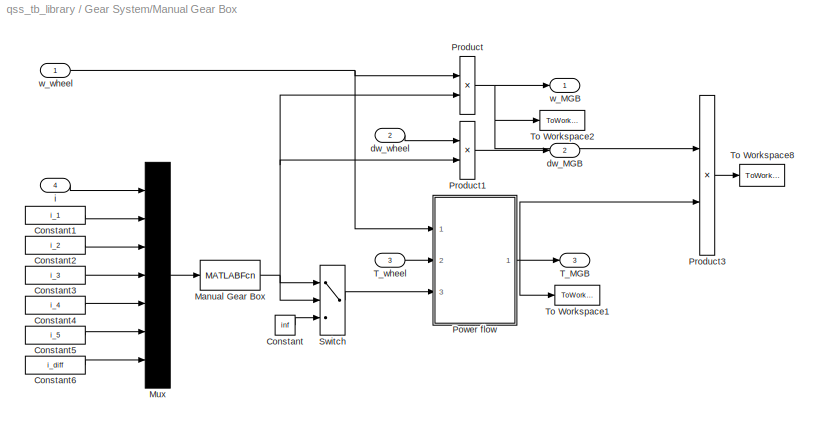
BLOCK [SubSystem] Gear System/Manual Gear Box
  MaskCallbackString = ||||||||
  MaskDescription = This block simulates a manual gear box.\n\nInput:\n=====\n	w_wheel	Speed of the wheel [rad/s]\n	dw_wheel	Acceleration of the wheel [rad/s^2],\n	T_wheel	Torque on the wheel [Nm]\n	i		Gear number [-]\n\nOutput:\n======\n	w_MGB		Speed of the fly wheel [rad/s]\n	dw_MGB	Acceleration of the fly wheel [rad/s^2]\n	T_MGB		Torque on the fly wheel [Nm]
  MaskEnableString = on,on,on,on,on,on,on,on,on
  MaskHideContents = off
  MaskIconFrame = on
  MaskIconOpaque = on
  MaskIconRotate = none
  MaskIconUnits = autoscale
  MaskInitialization = init_MGB;
  MaskPromptString = 1. gear [-]|2. gear [-]|3. gear [-]|4. gear [-]|5. gear [-]|Differential gear [-]|Efficiency [-]|Idling losses (friction) [W]|Minimum wheel speed beyond which losses are generated [rad/s]
  MaskStyleString = edit,edit,edit,edit,edit,edit,edit,edit,edit
  MaskTabNameString = ,,,,,,,,
  MaskToolTipString = on,on,on,on,on,on,on,on,on
  MaskTunableValueString = on,on,on,on,on,on,on,on,on
  MaskType = Manual Gear Box
  MaskValueString = 15.174|8.338|5.378|3.937|2.748|1|0.98|300|1
  MaskVarAliasString = ,,,,,,,,
  MaskVariables = i_1=@1;i_2=@2;i_3=@3;i_4=@4;i_5=@5;i_diff=@6;e_GT=@7;P_GT0=@8;w_wheel_min=@9;
  MaskVisibilityString = on,on,on,on,on,on,on,on,on
  MinAlgLoopOccurrences = off
  Ports = [4, 3]
  RTWSystemCode = Auto
  Tag = transmission
  TreatAsAtomicUnit = off
BLOCK [Constant] Gear System/Manual Gear Box/Constant
  Value = inf
BLOCK [Constant] Gear System/Manual Gear Box/Constant1
  Value = i_1
BLOCK [Constant] Gear System/Manual Gear Box/Constant2
  Value = i_2
BLOCK [Constant] Gear System/Manual Gear Box/Constant3
  Value = i_3
BLOCK [Constant] Gear System/Manual Gear Box/Constant4
  Value = i_4
BLOCK [Constant] Gear System/Manual Gear Box/Constant5
  Value = i_5
BLOCK [Constant] Gear System/Manual Gear Box/Constant6
  Value = i_diff
BLOCK [MATLABFcn] Gear System/Manual Gear Box/Manual Gear Box
  MATLABFcn = manual_gearbox(u)
  OutputDimensions = 1
BLOCK [Mux] Gear System/Manual Gear Box/Mux
  Inputs = 7
  Ports = [7, 1]
BLOCK [SubSystem] Gear System/Manual Gear Box/Power flow
  MaskHideContents = off
  MinAlgLoopOccurrences = off
  Ports = [3, 1]
  RTWSystemCode = Auto
  TreatAsAtomicUnit = off
BLOCK [SubSystem] Gear System/Manual Gear Box/Power flow/Engine -> Wheel
  MaskHideContents = off
  MinAlgLoopOccurrences = off
  Ports = [3, 1]
  RTWSystemCode = Auto
  TreatAsAtomicUnit = off
BLOCK [Constant] Gear System/Manual Gear Box/Power flow/Engine -> Wheel/Constant1
  Value = P_GT0
BLOCK [Constant] Gear System/Manual Gear Box/Power flow/Engine -> Wheel/Constant2
  Value = inf
BLOCK [Gain] Gear System/Manual Gear Box/Power flow/Engine -> Wheel/Gain
  Gain = e_GT
BLOCK [Product] Gear System/Manual Gear Box/Power flow/Engine -> Wheel/Product2
  Inputs = */
  Ports = [2, 1]
BLOCK [Product] Gear System/Manual Gear Box/Power flow/Engine -> Wheel/Product3
  Inputs = /*
  Ports = [2, 1]
BLOCK [Sum] Gear System/Manual Gear Box/Power flow/Engine -> Wheel/Sum
  Ports = [2, 1]
BLOCK [Switch] Gear System/Manual Gear Box/Power flow/Engine -> Wheel/Switch1
  Threshold = w_wheel_min
BLOCK [Outport] Gear System/Manual Gear Box/Power flow/Engine -> Wheel/T_MGB+
  BusOutputAsStruct = off
  IconDisplay = Port number
  InitialOutput = 0
BLOCK [Inport] Gear System/Manual Gear Box/Power flow/Engine -> Wheel/T_wheel
  IconDisplay = Port number
  Port = 2
BLOCK [Inport] Gear System/Manual Gear Box/Power flow/Engine -> Wheel/gear
  IconDisplay = Port number
  Port = 3
BLOCK [Inport] Gear System/Manual Gear Box/Power flow/Engine -> Wheel/w_wheel
  IconDisplay = Port number
BLOCK [Switch] Gear System/Manual Gear Box/Power flow/Switch1
BLOCK [Outport] Gear System/Manual Gear Box/Power flow/T_MGB
  BusOutputAsStruct = off
  IconDisplay = Port number
  InitialOutput = 0
BLOCK [Inport] Gear System/Manual Gear Box/Power flow/T_wheel
  IconDisplay = Port number
  Port = 2
BLOCK [SubSystem] Gear System/Manual Gear Box/Power flow/Wheel -> Engine
  MaskHideContents = off
  MinAlgLoopOccurrences = off
  Ports = [3, 1]
  RTWSystemCode = Auto
  TreatAsAtomicUnit = off
BLOCK [Constant] Gear System/Manual Gear Box/Power flow/Wheel -> Engine/Constant1
  Value = P_GT0
BLOCK [Constant] Gear System/Manual Gear Box/Power flow/Wheel -> Engine/Constant2
  Value = inf
BLOCK [Gain] Gear System/Manual Gear Box/Power flow/Wheel -> Engine/Gain1
  Gain = e_GT
BLOCK [Gain] Gear System/Manual Gear Box/Power flow/Wheel -> Engine/Gain2
  Gain = 1/e_GT
BLOCK [Product] Gear System/Manual Gear Box/Power flow/Wheel -> Engine/Product2
  Inputs = */
  Ports = [2, 1]
BLOCK [Product] Gear System/Manual Gear Box/Power flow/Wheel -> Engine/Product3
  Inputs = /*
  Ports = [2, 1]
BLOCK [Sum] Gear System/Manual Gear Box/Power flow/Wheel -> Engine/Sum
  Ports = [2, 1]
BLOCK [Switch] Gear System/Manual Gear Box/Power flow/Wheel -> Engine/Switch1
  Threshold = w_wheel_min
BLOCK [Outport] Gear System/Manual Gear Box/Power flow/Wheel -> Engine/T_MGB-
  BusOutputAsStruct = off
  IconDisplay = Port number
  InitialOutput = 0
BLOCK [Inport] Gear System/Manual Gear Box/Power flow/Wheel -> Engine/T_wheel
  IconDisplay = Port number
  Port = 2
BLOCK [Inport] Gear System/Manual Gear Box/Power flow/Wheel -> Engine/gear
  IconDisplay = Port number
  Port = 3
BLOCK [Inport] Gear System/Manual Gear Box/Power flow/Wheel -> Engine/w_wheel
  IconDisplay = Port number
BLOCK [Inport] Gear System/Manual Gear Box/Power flow/gear
  IconDisplay = Port number
  Port = 3
BLOCK [Inport] Gear System/Manual Gear Box/Power flow/w_wheel
  IconDisplay = Port number
BLOCK [Product] Gear System/Manual Gear Box/Product
  Ports = [2, 1]
BLOCK [Product] Gear System/Manual Gear Box/Product1
  Ports = [2, 1]
BLOCK [Product] Gear System/Manual Gear Box/Product3
  Ports = [2, 1]
BLOCK [Switch] Gear System/Manual Gear Box/Switch
  Threshold = eps
BLOCK [Outport] Gear System/Manual Gear Box/T_MGB
  BusOutputAsStruct = off
  IconDisplay = Port number
  InitialOutput = 0
  Port = 3
BLOCK [Inport] Gear System/Manual Gear Box/T_wheel
  IconDisplay = Port number
  Port = 3
BLOCK [ToWorkspace] Gear System/Manual Gear Box/To Workspace1
  MaxDataPoints = inf
  SampleTime = -1
  SaveFormat = Array
  VariableName = T_MGB
BLOCK [ToWorkspace] Gear System/Manual Gear Box/To Workspace2
  MaxDataPoints = inf
  SampleTime = -1
  SaveFormat = Array
  VariableName = w_MGB
BLOCK [ToWorkspace] Gear System/Manual Gear Box/To Workspace8
  MaxDataPoints = inf
  SampleTime = -1
  SaveFormat = Array
  VariableName = P_MGB
BLOCK [Outport] Gear System/Manual Gear Box/dw_MGB
  BusOutputAsStruct = off
  IconDisplay = Port number
  InitialOutput = 0
  Port = 2
BLOCK [Inport] Gear System/Manual Gear Box/dw_wheel
  IconDisplay = Port number
  Port = 2
BLOCK [Inport] Gear System/Manual Gear Box/i
  IconDisplay = Port number
  Port = 4
BLOCK [Outport] Gear System/Manual Gear Box/w_MGB
  BusOutputAsStruct = off
  IconDisplay = Port number
  InitialOutput = 0
BLOCK [Inport] Gear System/Manual Gear Box/w_wheel
  IconDisplay = Port number
BLOCK [SubSystem] Gear System/Simple Transmission
  MaskCallbackString = |||
  MaskDescription = This block simulates a transmission with a fixed gear ratio. \n\nInput:\n=====\n	w_wheel	Speed of the wheel [rad/s]\n	dw_wheel	Acceleration of the wheel [rad/s^2]\n	T_wheel	Torque on the wheel [Nm]\n\nOutput:\n======\n	w_trans		Speed of the fly wheel [rad/s]\n	dw_trans	Acceleration of the fly wheel [rad/s^2]\n	T_trans		Torque on the fly wheel [Nm]
  MaskEnableString = on,on,on,on
  MaskHideContents = off
  MaskIconFrame = on
  MaskIconOpaque = on
  MaskIconRotate = none
  MaskIconUnits = autoscale
  MaskInitialization = init_transmission;
  MaskPromptString = Gear ratio [-]|Efficiency [-]|Idling losses (friction) [W]|Minimum wheel speed beyond which losses are generated [rad/s]
  MaskStyleString = edit,edit,edit,edit
  MaskTabNameString = ,,,
  MaskToolTipString = on,on,on,on
  MaskTunableValueString = on,on,on,on
  MaskType = Simple Transmission
  MaskValueString = 3|0.98|50|1
  MaskVarAliasString = ,,,
  MaskVariables = gear_ratio=@1;e_GT=@2;P_GT0=@3;w_wheel_min=@4;
  MaskVisibilityString = on,on,on,on
  MinAlgLoopOccurrences = off
  Ports = [3, 3]
  RTWSystemCode = Auto
  Tag = simple transmission
  TreatAsAtomicUnit = off
BLOCK [Constant] Gear System/Simple Transmission/Constant
  Value = gear_ratio
BLOCK [SubSystem] Gear System/Simple Transmission/Power flow
  MaskHideContents = off
  MinAlgLoopOccurrences = off
  Ports = [3, 1]
  RTWSystemCode = Auto
  TreatAsAtomicUnit = off
BLOCK [SubSystem] Gear System/Simple Transmission/Power flow/Energy\nEngine -> Wheel
  MaskHideContents = off
  MinAlgLoopOccurrences = off
  Ports = [3, 1]
  RTWSystemCode = Auto
  TreatAsAtomicUnit = off
BLOCK [Constant] Gear System/Simple Transmission/Power flow/Energy\nEngine -> Wheel/Constant1
  Value = P_GT0
BLOCK [Constant] Gear System/Simple Transmission/Power flow/Energy\nEngine -> Wheel/Constant2
  Value = inf
BLOCK [Gain] Gear System/Simple Transmission/Power flow/Energy\nEngine -> Wheel/Gain
  Gain = e_GT
BLOCK [Product] Gear System/Simple Transmission/Power flow/Energy\nEngine -> Wheel/Product2
  Inputs = */
  Ports = [2, 1]
BLOCK [Product] Gear System/Simple Transmission/Power flow/Energy\nEngine -> Wheel/Product3
  Inputs = /*
  Ports = [2, 1]
BLOCK [Sum] Gear System/Simple Transmission/Power flow/Energy\nEngine -> Wheel/Sum
  Ports = [2, 1]
BLOCK [Switch] Gear System/Simple Transmission/Power flow/Energy\nEngine -> Wheel/Switch1
  Threshold = w_wheel_min
BLOCK [Outport] Gear System/Simple Transmission/Power flow/Energy\nEngine -> Wheel/T_trans+
  BusOutputAsStruct = off
  IconDisplay = Port number
  InitialOutput = 0
BLOCK [Inport] Gear System/Simple Transmission/Power flow/Energy\nEngine -> Wheel/T_wheel
  IconDisplay = Port number
  Port = 2
BLOCK [Inport] Gear System/Simple Transmission/Power flow/Energy\nEngine -> Wheel/gear_ratio
  IconDisplay = Port number
  Port = 3
BLOCK [Inport] Gear System/Simple Transmission/Power flow/Energy\nEngine -> Wheel/w_wheel
  IconDisplay = Port number
BLOCK [SubSystem] Gear System/Simple Transmission/Power flow/Energy\nWheel -> Engine
  MaskHideContents = off
  MinAlgLoopOccurrences = off
  Ports = [3, 1]
  RTWSystemCode = Auto
  TreatAsAtomicUnit = off
BLOCK [Constant] Gear System/Simple Transmission/Power flow/Energy\nWheel -> Engine/Constant1
  Value = P_GT0
BLOCK [Constant] Gear System/Simple Transmission/Power flow/Energy\nWheel -> Engine/Constant2
  Value = inf
BLOCK [Gain] Gear System/Simple Transmission/Power flow/Energy\nWheel -> Engine/Gain1
  Gain = e_GT
BLOCK [Gain] Gear System/Simple Transmission/Power flow/Energy\nWheel -> Engine/Gain2
  Gain = 1/e_GT
BLOCK [Product] Gear System/Simple Transmission/Power flow/Energy\nWheel -> Engine/Product2
  Inputs = */
  Ports = [2, 1]
BLOCK [Product] Gear System/Simple Transmission/Power flow/Energy\nWheel -> Engine/Product3
  Inputs = /*
  Ports = [2, 1]
BLOCK [Sum] Gear System/Simple Transmission/Power flow/Energy\nWheel -> Engine/Sum
  Ports = [2, 1]
BLOCK [Switch] Gear System/Simple Transmission/Power flow/Energy\nWheel -> Engine/Switch1
  Threshold = w_wheel_min
BLOCK [Outport] Gear System/Simple Transmission/Power flow/Energy\nWheel -> Engine/T_trans-
  BusOutputAsStruct = off
  IconDisplay = Port number
  InitialOutput = 0
BLOCK [Inport] Gear System/Simple Transmission/Power flow/Energy\nWheel -> Engine/T_wheel
  IconDisplay = Port number
  Port = 2
BLOCK [Inport] Gear System/Simple Transmission/Power flow/Energy\nWheel -> Engine/gear_ratio
  IconDisplay = Port number
  Port = 3
BLOCK [Inport] Gear System/Simple Transmission/Power flow/Energy\nWheel -> Engine/w_wheel
  IconDisplay = Port number
BLOCK [Switch] Gear System/Simple Transmission/Power flow/Switch1
BLOCK [Outport] Gear System/Simple Transmission/Power flow/T_trans
  BusOutputAsStruct = off
  IconDisplay = Port number
  InitialOutput = 0
BLOCK [Inport] Gear System/Simple Transmission/Power flow/T_wheel
  IconDisplay = Port number
  Port = 2
BLOCK [Inport] Gear System/Simple Transmission/Power flow/gear_ratio
  IconDisplay = Port number
  Port = 3
BLOCK [Inport] Gear System/Simple Transmission/Power flow/w_wheel
  IconDisplay = Port number
BLOCK [Product] Gear System/Simple Transmission/Product
  Ports = [2, 1]
BLOCK [Product] Gear System/Simple Transmission/Product1
  Ports = [2, 1]
BLOCK [Product] Gear System/Simple Transmission/Product3
  Ports = [2, 1]
BLOCK [Outport] Gear System/Simple Transmission/T_trans
  BusOutputAsStruct = off
  IconDisplay = Port number
  InitialOutput = 0
  Port = 3
BLOCK [Inport] Gear System/Simple Transmission/T_wheel
  IconDisplay = Port number
  Port = 3
BLOCK [ToWorkspace] Gear System/Simple Transmission/To Workspace1
  MaxDataPoints = inf
  SampleTime = -1
  SaveFormat = Array
  VariableName = w_trans
BLOCK [ToWorkspace] Gear System/Simple Transmission/To Workspace2
  MaxDataPoints = inf
  SampleTime = -1
  SaveFormat = Array
  VariableName = T_trans
BLOCK [ToWorkspace] Gear System/Simple Transmission/To Workspace3
  MaxDataPoints = inf
  SampleTime = -1
  SaveFormat = Array
  VariableName = P_trans
BLOCK [Outport] Gear System/Simple Transmission/dw_trans
  BusOutputAsStruct = off
  IconDisplay = Port number
  InitialOutput = 0
  Port = 2
BLOCK [Inport] Gear System/Simple Transmission/dw_wheel
  IconDisplay = Port number
  Port = 2
BLOCK [Outport] Gear System/Simple Transmission/w_trans
  BusOutputAsStruct = off
  IconDisplay = Port number
  InitialOutput = 0
BLOCK [Inport] Gear System/Simple Transmission/w_wheel
  IconDisplay = Port number
BLOCK [SubSystem] Vehicle
  MaskDisplay = disp('Vehicle')
  MaskHideContents = off
  MaskIconFrame = on
  MaskIconOpaque = on
  MaskIconRotate = port
  MaskIconUnits = autoscale
  MinAlgLoopOccurrences = off
  Ports = []
  RTWSystemCode = Auto
  TreatAsAtomicUnit = off
BLOCK [SubSystem] Vehicle/Vehicle
  MaskCallbackString = |||||
  MaskDescription = This block computes the power required from the vehicle.\n\nInput:\n=====\n	v		Speed [m/s]\n	dv		Acceleration [m/s^2]\n\nOutput:\n======\n	w_wheel	Speed of the wheel [rad/s]\n	dw_wheel	Acceleration of the wheel [rad/s^2]\n	T_wheel	Torque on the wheel [Nm]
  MaskEnableString = on,on,on,on,on,on
  MaskHideContents = off
  MaskIconFrame = on
  MaskIconOpaque = off
  MaskIconRotate = none
  MaskIconUnits = autoscale
  MaskInitialization = init_vehicle;\n
  MaskPromptString = Total mass of the vehicle [kg]|Rotating mass [%]|Vehicle cross section [m^2]|Wheel diameter [m]|Drag coefficient [-]|Rolling friction coefficient [-]
  MaskStyleString = edit,edit,edit,edit,edit,edit
  MaskTabNameString = ,,,,,
  MaskToolTipString = on,on,on,on,on,on
  MaskTunableValueString = on,on,on,on,on,on
  MaskType = Vehicle
  MaskValueString = 750|5|1.8|0.5|0.22|0.008
  MaskVarAliasString = ,,,,,
  MaskVariables = m_f=@1;mt2m_f=@2;A_f=@3;d_wheel=@4;cw=@5;mu=@6;
  MaskVisibilityString = on,on,on,on,on,on
  MinAlgLoopOccurrences = off
  Ports = [2, 3]
  RTWSystemCode = Auto
  Tag = vehicle
  TreatAsAtomicUnit = off
BLOCK [SubSystem] Vehicle/Vehicle/Aerodynamic resistance
  MaskHideContents = off
  MinAlgLoopOccurrences = off
  Ports = [1, 1]
  RTWSystemCode = Auto
  TreatAsAtomicUnit = off
BLOCK [Fcn] Vehicle/Vehicle/Aerodynamic resistance/Aerodynamic resistance
  Expr = 0.5*rho*cw*A_f*u^2
BLOCK [Outport] Vehicle/Vehicle/Aerodynamic resistance/F_aero
  BusOutputAsStruct = off
  IconDisplay = Port number
  InitialOutput = 0
BLOCK [ToWorkspace] Vehicle/Vehicle/Aerodynamic resistance/To Workspace10
  MaxDataPoints = inf
  SampleTime = -1
  SaveFormat = Array
  VariableName = F_aero
BLOCK [Inport] Vehicle/Vehicle/Aerodynamic resistance/v
  IconDisplay = Port number
BLOCK [SubSystem] Vehicle/Vehicle/Average speed
  MaskHideContents = off
  MinAlgLoopOccurrences = off
  Ports = [1, 1]
  RTWSystemCode = Auto
  TreatAsAtomicUnit = off
BLOCK [Gain] Vehicle/Vehicle/Average speed/Gain5
  Gain = 0.5
BLOCK [Sum] Vehicle/Vehicle/Average speed/Sum2
  Ports = [2, 1]
BLOCK [UnitDelay] Vehicle/Vehicle/Average speed/Unit Delay
  SampleTime = h
BLOCK [Inport] Vehicle/Vehicle/Average speed/v
  IconDisplay = Port number
BLOCK [Outport] Vehicle/Vehicle/Average speed/v_a
  BusOutputAsStruct = off
  IconDisplay = Port number
  InitialOutput = 0
BLOCK [Gain] Vehicle/Vehicle/Gain1
  Gain = 1/r_wheel
BLOCK [Gain] Vehicle/Vehicle/Gain4
  Gain = 1/r_wheel
BLOCK [SubSystem] Vehicle/Vehicle/Inertia
  MaskHideContents = off
  MinAlgLoopOccurrences = off
  Ports = [1, 1]
  RTWSystemCode = Auto
  TreatAsAtomicUnit = off
BLOCK [Outport] Vehicle/Vehicle/Inertia/F_iner
  BusOutputAsStruct = off
  IconDisplay = Port number
  InitialOutput = 0
BLOCK [Fcn] Vehicle/Vehicle/Inertia/Inertia
  Expr = m_f*(1+mt2m_f)*u/h
BLOCK [ToWorkspace] Vehicle/Vehicle/Inertia/To Workspace10
  MaxDataPoints = inf
  SampleTime = -1
  SaveFormat = Array
  VariableName = F_iner
BLOCK [Inport] Vehicle/Vehicle/Inertia/d_v
  IconDisplay = Port number
BLOCK [Product] Vehicle/Vehicle/Product
  Ports = [2, 1]
BLOCK [Product] Vehicle/Vehicle/Product1
  Ports = [2, 1]
BLOCK [Product] Vehicle/Vehicle/Product2
  Ports = [2, 1]
BLOCK [Product] Vehicle/Vehicle/Product3
  Ports = [2, 1]
BLOCK [SubSystem] Vehicle/Vehicle/Rolling resistance
  MaskHideContents = off
  MinAlgLoopOccurrences = off
  Ports = [1, 1]
  RTWSystemCode = Auto
  TreatAsAtomicUnit = off
BLOCK [Outport] Vehicle/Vehicle/Rolling resistance/F_roll
  BusOutputAsStruct = off
  IconDisplay = Port number
BLOCK [Constant] Vehicle/Vehicle/Rolling resistance/Rolling resistance
  Value = m_f*g*mu
BLOCK [Switch] Vehicle/Vehicle/Rolling resistance/Switch
  Criteria = u2 > Threshold
  InputSameDT = off
  SaturateOnIntegerOverflow = off
  Threshold = eps
BLOCK [ToWorkspace] Vehicle/Vehicle/Rolling resistance/To Workspace2
  MaxDataPoints = inf
  SampleTime = -1
  SaveFormat = Array
  VariableName = F_roll
BLOCK [Constant] Vehicle/Vehicle/Rolling resistance/standstill
  Value = 0
BLOCK [Inport] Vehicle/Vehicle/Rolling resistance/v
  IconDisplay = Port number
BLOCK [Outport] Vehicle/Vehicle/T_wheel
  BusOutputAsStruct = off
  IconDisplay = Port number
  InitialOutput = 0
  Port = 3
BLOCK [ToWorkspace] Vehicle/Vehicle/To Workspace1
  MaxDataPoints = inf
  SampleTime = -1
  SaveFormat = Array
  VariableName = w_wheel
BLOCK [ToWorkspace] Vehicle/Vehicle/To Workspace5
  MaxDataPoints = inf
  SampleTime = -1
  SaveFormat = Array
  VariableName = P_roll
BLOCK [ToWorkspace] Vehicle/Vehicle/To Workspace6
  MaxDataPoints = inf
  SampleTime = -1
  SaveFormat = Array
  VariableName = T_wheel
BLOCK [ToWorkspace] Vehicle/Vehicle/To Workspace7
  MaxDataPoints = inf
  SampleTime = -1
  SaveFormat = Array
  VariableName = P_wheel
BLOCK [ToWorkspace] Vehicle/Vehicle/To Workspace8
  MaxDataPoints = inf
  SampleTime = -1
  SaveFormat = Array
  VariableName = P_iner
BLOCK [ToWorkspace] Vehicle/Vehicle/To Workspace9
  MaxDataPoints = inf
  SampleTime = -1
  SaveFormat = Array
  VariableName = P_aero
BLOCK [Sum] Vehicle/Vehicle/Total resistances
  Inputs = +++
  Ports = [3, 1]
BLOCK [Gain] Vehicle/Vehicle/Wheel radius
  Gain = r_wheel
BLOCK [Inport] Vehicle/Vehicle/dv
  IconDisplay = Port number
  Port = 2
BLOCK [Outport] Vehicle/Vehicle/dw_wheel
  BusOutputAsStruct = off
  IconDisplay = Port number
  InitialOutput = 0
  Port = 2
BLOCK [Inport] Vehicle/Vehicle/v
  IconDisplay = Port number
BLOCK [Outport] Vehicle/Vehicle/w_wheel
  BusOutputAsStruct = off
  IconDisplay = Port number
  InitialOutput = 0
ANNOTATION (root): <copyright redacted>\nETH Zurich (Swiss Federal Institute of Technology Zurich)
ANNOTATION (root): The QSS Toolbox Library
ANNOTATION Controller/CVT Controller: Insert vehicle\nmodel here!
ANNOTATION Controller/Control Unit\n(empty template): Control Unit: custom designed
ANNOTATION Driving Cycle/Driving Cycle: Speed
ANNOTATION Energy Buffer/Battery/Battery voltage/Discharging: P/I_0
ANNOTATION Energy Buffer/Battery/Battery voltage/Discharging: q
ANNOTATION Energy Converter/Fuel Cell: E-Motor is disengaged, as soon as required power\n is idle speed energy consumption)
ANNOTATION Energy Converter/Fuel Cell/Compressor with E-motor: Air mass flow
LINE Controller/Battery Controller/Constant1:1 -> Controller/Battery Controller/Sum:2
LINE Controller/Battery Controller/Constant2:1 -> Controller/Battery Controller/Switch:1
LINE Controller/Battery Controller/Constant:1 -> Controller/Battery Controller/Switch:3
NET Controller/Battery Controller/Demux:1 -> Controller/Battery Controller/To Workspace1:1, Controller/Battery Controller/w_ctrl:1
LINE Controller/Battery Controller/Demux:2 -> Controller/Battery Controller/dw_ctrl:1
NET Controller/Battery Controller/Demux:3 -> Controller/Battery Controller/T_ctrl:1, Controller/Battery Controller/To Workspace2:1
LINE Controller/Battery Controller/Geno-Group On/Clock/Constant:1 -> Controller/Battery Controller/Geno-Group On/Clock/Sum:1
NET Controller/Battery Controller/Geno-Group On/Clock/Sum:1 -> Controller/Battery Controller/Geno-Group On/Clock/Unit Delay:1, Controller/Battery Controller/Geno-Group On/Clock/out_1:1
LINE Controller/Battery Controller/Geno-Group On/Clock/Unit Delay:1 -> Controller/Battery Controller/Geno-Group On/Clock/Sum:2
LINE Controller/Battery Controller/Geno-Group On/Clock:1 -> Controller/Battery Controller/Geno-Group On/Data Type Conversion1:1
LINE Controller/Battery Controller/Geno-Group On/Constant:1 -> Controller/Battery Controller/Geno-Group On/Relational\nOperator:2
NET Controller/Battery Controller/Geno-Group On/Counter:1 -> Controller/Battery Controller/Geno-Group On/Product:2, Controller/Battery Controller/Geno-Group On/Relational\nOperator:1, Controller/Battery Controller/Geno-Group On/Sum3:1, Controller/Battery Controller/Geno-Group On/T_EG start-up:1, Controller/Battery Controller/Geno-Group On/dw start-up:1, Controller/Battery Controller/Geno-Group On/w start-up:1
LINE Controller/Battery Controller/Geno-Group On/Data Type Conversion1:1 -> Controller/Battery Controller/Geno-Group On/Logical\noperator3:2
LINE Controller/Battery Controller/Geno-Group On/Data Type Conversion2:1 -> Controller/Battery Controller/Geno-Group On/Sum3:2
LINE Controller/Battery Controller/Geno-Group On/Data Type Conversion3:1 -> Controller/Battery Controller/Geno-Group On/Product:1
LINE Controller/Battery Controller/Geno-Group On/Logical\noperator3:1 -> Controller/Battery Controller/Geno-Group On/Data Type Conversion2:1
LINE Controller/Battery Controller/Geno-Group On/Mux:1 -> Controller/Battery Controller/Geno-Group On/OutOn:1
LINE Controller/Battery Controller/Geno-Group On/Product:1 -> Controller/Battery Controller/Geno-Group On/Sum3:3
NET Controller/Battery Controller/Geno-Group On/Relational\nOperator:1 -> Controller/Battery Controller/Geno-Group On/Data Type Conversion3:1, Controller/Battery Controller/Geno-Group On/done:1
LINE Controller/Battery Controller/Geno-Group On/Sum3:1 -> Controller/Battery Controller/Geno-Group On/Counter:1
LINE Controller/Battery Controller/Geno-Group On/T_EG start-up:1 -> Controller/Battery Controller/Geno-Group On/Mux:3
LINE Controller/Battery Controller/Geno-Group On/cc_on:1 -> Controller/Battery Controller/Geno-Group On/Logical\noperator3:1
LINE Controller/Battery Controller/Geno-Group On/dw start-up:1 -> Controller/Battery Controller/Geno-Group On/Mux:2
LINE Controller/Battery Controller/Geno-Group On/w start-up:1 -> Controller/Battery Controller/Geno-Group On/Mux:1
LINE Controller/Battery Controller/Geno-Group On:1 -> Controller/Battery Controller/Demux:1
LINE Controller/Battery Controller/Geno-Group On:2 -> Controller/Battery Controller/S-R Flip-Flop:2
LINE Controller/Battery Controller/Q_BT:1 -> Controller/Battery Controller/Sum:1
NET Controller/Battery Controller/S-R Flip-Flop/Demux:1 -> Controller/Battery Controller/S-R Flip-Flop/Memory:1, Controller/Battery Controller/S-R Flip-Flop/Q:1
LINE Controller/Battery Controller/S-R Flip-Flop/Demux:2 -> Controller/Battery Controller/S-R Flip-Flop/!Q:1
LINE Controller/Battery Controller/S-R Flip-Flop/Logic:1 -> Controller/Battery Controller/S-R Flip-Flop/Demux:1
LINE Controller/Battery Controller/S-R Flip-Flop/Memory:1 -> Controller/Battery Controller/S-R Flip-Flop/Mux:1
LINE Controller/Battery Controller/S-R Flip-Flop/Mux:1 -> Controller/Battery Controller/S-R Flip-Flop/Logic:1
LINE Controller/Battery Controller/S-R Flip-Flop/R:1 -> Controller/Battery Controller/S-R Flip-Flop/Mux:3
LINE Controller/Battery Controller/S-R Flip-Flop/S:1 -> Controller/Battery Controller/S-R Flip-Flop/Mux:2
NET Controller/Battery Controller/S-R Flip-Flop:1 -> Controller/Battery Controller/Geno-Group On:1, Controller/Battery Controller/To Workspace5:1
LINE Controller/Battery Controller/S-R Flip-Flop:2 -> Controller/Battery Controller/Terminator1:1
LINE Controller/Battery Controller/Sum:1 -> Controller/Battery Controller/Switch:2
LINE Controller/Battery Controller/Switch:1 -> Controller/Battery Controller/S-R Flip-Flop:1
LINE Controller/CVT Controller/Constant5:1 -> Controller/CVT Controller/Switch3:3
LINE Controller/CVT Controller/Delay dv:1 -> Controller/CVT Controller/dv_delay:1
NET Controller/CVT Controller/Delay j:1 -> Controller/CVT Controller/Sum:1, Controller/CVT Controller/To Workspace5:1, Controller/CVT Controller/j_CVT:1
LINE Controller/CVT Controller/Delay v:1 -> Controller/CVT Controller/v_delay:1
NET Controller/CVT Controller/Gain2:1 -> Controller/CVT Controller/To Workspace6:1, Controller/CVT Controller/dj_CVT:1
LINE Controller/CVT Controller/Product1:1 -> Controller/CVT Controller/Saturation1:1
LINE Controller/CVT Controller/Product:1 -> Controller/CVT Controller/w_opt:1
NET Controller/CVT Controller/Saturation1:1 -> Controller/CVT Controller/Delay j:1, Controller/CVT Controller/Sum:2
LINE Controller/CVT Controller/Saturation:1 -> Controller/CVT Controller/Product1:2
LINE Controller/CVT Controller/Sum:1 -> Controller/CVT Controller/Gain2:1
LINE Controller/CVT Controller/Switch3:1 -> Controller/CVT Controller/Product1:1
LINE Controller/CVT Controller/T_wheel:1 -> Controller/CVT Controller/Product:2
NET Controller/CVT Controller/dv:1 -> Controller/CVT Controller/Delay dv:1, Controller/CVT Controller/v2:1
NET Controller/CVT Controller/v:1 -> Controller/CVT Controller/Delay v:1, Controller/CVT Controller/v1:1
LINE Controller/CVT Controller/w_opt:1 -> Controller/CVT Controller/Saturation:1
NET Controller/CVT Controller/w_wheel:1 -> Controller/CVT Controller/Product:1, Controller/CVT Controller/Switch3:1, Controller/CVT Controller/Switch3:2
LINE Controller/Control Unit\n(empty template)/Ground1:1 -> Controller/Control Unit\n(empty template)/u m:1
LINE Controller/Control Unit\n(empty template)/Ground:1 -> Controller/Control Unit\n(empty template)/u 1:1
LINE Controller/Control Unit\n(empty template)/y 1:1 -> Controller/Control Unit\n(empty template)/Terminator:1
LINE Controller/Control Unit\n(empty template)/y p:1 -> Controller/Control Unit\n(empty template)/Terminator1:1
NET Driving Cycle/Driving Cycle/Clock:1 -> Driving Cycle/Driving Cycle/Time:1, Driving Cycle/Driving Cycle/To Workspace1:1
LINE Driving Cycle/Driving Cycle/Cycle data:1 -> Driving Cycle/Driving Cycle/Demux:1
NET Driving Cycle/Driving Cycle/Demux:1 -> Driving Cycle/Driving Cycle/Differentiation:1, Driving Cycle/Driving Cycle/Integration:1, Driving Cycle/Driving Cycle/To Workspace5:1, Driving Cycle/Driving Cycle/v:1
LINE Driving Cycle/Driving Cycle/Demux:2 -> Driving Cycle/Driving Cycle/Terminator:1
NET Driving Cycle/Driving Cycle/Demux:3 -> Driving Cycle/Driving Cycle/To Workspace6:1, Driving Cycle/Driving Cycle/i:1
LINE Driving Cycle/Driving Cycle/Differentiation/Sum1:1 -> Driving Cycle/Driving Cycle/Differentiation/D_z:1
LINE Driving Cycle/Driving Cycle/Differentiation/Unit Delay1:1 -> Driving Cycle/Driving Cycle/Differentiation/Sum1:2
NET Driving Cycle/Driving Cycle/Differentiation/V_z:1 -> Driving Cycle/Driving Cycle/Differentiation/Sum1:1, Driving Cycle/Driving Cycle/Differentiation/Unit Delay1:1
NET Driving Cycle/Driving Cycle/Differentiation:1 -> Driving Cycle/Driving Cycle/To Workspace4:1, Driving Cycle/Driving Cycle/dv:1
LINE Driving Cycle/Driving Cycle/Integration/Gain4:1 -> Driving Cycle/Driving Cycle/Integration/Sum4:2
NET Driving Cycle/Driving Cycle/Integration/Plant:1 -> Driving Cycle/Driving Cycle/Integration/Sum4:1, Driving Cycle/Driving Cycle/Integration/x_tot:1
LINE Driving Cycle/Driving Cycle/Integration/Sum2:1 -> Driving Cycle/Driving Cycle/Integration/Gain4:1
LINE Driving Cycle/Driving Cycle/Integration/Sum4:1 -> Driving Cycle/Driving Cycle/Integration/Plant:1
LINE Driving Cycle/Driving Cycle/Integration/Unit Delay2:1 -> Driving Cycle/Driving Cycle/Integration/Sum2:2
NET Driving Cycle/Driving Cycle/Integration/V_z:1 -> Driving Cycle/Driving Cycle/Integration/Sum2:1, Driving Cycle/Driving Cycle/Integration/Unit Delay2:1
NET Driving Cycle/Driving Cycle/Integration:1 -> Driving Cycle/Driving Cycle/To Workspace2:1, Driving Cycle/Driving Cycle/x_tot:1
NET Energy Buffer/Battery/Battery charge:1 -> Energy Buffer/Battery/Battery voltage:1, Energy Buffer/Battery/Gain4:1, Energy Buffer/Battery/Q_BT:1, Energy Buffer/Battery/Sum3:1, Energy Buffer/Battery/Sum4:2, Energy Buffer/Battery/To Workspace4:1
LINE Energy Buffer/Battery/Battery voltage/Charging/Constant4:1 -> Energy Buffer/Battery/Battery voltage/Charging/Sum4:2
LINE Energy Buffer/Battery/Battery voltage/Charging/Fcn:1 -> Energy Buffer/Battery/Battery voltage/Charging/U_BT_L:1
LINE Energy Buffer/Battery/Battery voltage/Charging/Gain2:1 -> Energy Buffer/Battery/Battery voltage/Charging/Mux:1
LINE Energy Buffer/Battery/Battery voltage/Charging/Gain4:1 -> Energy Buffer/Battery/Battery voltage/Charging/Mux:2
LINE Energy Buffer/Battery/Battery voltage/Charging/Mux:1 -> Energy Buffer/Battery/Battery voltage/Charging/Fcn:1
LINE Energy Buffer/Battery/Battery voltage/Charging/P_BT:1 -> Energy Buffer/Battery/Battery voltage/Charging/Gain4:1
LINE Energy Buffer/Battery/Battery voltage/Charging/Q_BT:1 -> Energy Buffer/Battery/Battery voltage/Charging/Sum4:1
LINE Energy Buffer/Battery/Battery voltage/Charging/Sum4:1 -> Energy Buffer/Battery/Battery voltage/Charging/Gain2:1
LINE Energy Buffer/Battery/Battery voltage/Charging:1 -> Energy Buffer/Battery/Battery voltage/Switch:1
LINE Energy Buffer/Battery/Battery voltage/Discharging/Constant6:1 -> Energy Buffer/Battery/Battery voltage/Discharging/Sum7:2
LINE Energy Buffer/Battery/Battery voltage/Discharging/Fcn:1 -> Energy Buffer/Battery/Battery voltage/Discharging/U_BT_E:1
LINE Energy Buffer/Battery/Battery voltage/Discharging/Gain4:1 -> Energy Buffer/Battery/Battery voltage/Discharging/Mux:1
LINE Energy Buffer/Battery/Battery voltage/Discharging/Gain5:1 -> Energy Buffer/Battery/Battery voltage/Discharging/Mux:2
LINE Energy Buffer/Battery/Battery voltage/Discharging/Mux:1 -> Energy Buffer/Battery/Battery voltage/Discharging/Fcn:1
LINE Energy Buffer/Battery/Battery voltage/Discharging/P_BT:1 -> Energy Buffer/Battery/Battery voltage/Discharging/Gain5:1
LINE Energy Buffer/Battery/Battery voltage/Discharging/Q_BT:1 -> Energy Buffer/Battery/Battery voltage/Discharging/Sum7:1
LINE Energy Buffer/Battery/Battery voltage/Discharging/Sum7:1 -> Energy Buffer/Battery/Battery voltage/Discharging/Gain4:1
LINE Energy Buffer/Battery/Battery voltage/Discharging:1 -> Energy Buffer/Battery/Battery voltage/Switch1:1
LINE Energy Buffer/Battery/Battery voltage/Enable charging/Gain:1 -> Energy Buffer/Battery/Battery voltage/Enable charging/Sign:1
LINE Energy Buffer/Battery/Battery voltage/Enable charging/P_BT:1 -> Energy Buffer/Battery/Battery voltage/Enable charging/Saturation:1
LINE Energy Buffer/Battery/Battery voltage/Enable charging/Saturation:1 -> Energy Buffer/Battery/Battery voltage/Enable charging/Gain:1
LINE Energy Buffer/Battery/Battery voltage/Enable charging/Sign:1 -> Energy Buffer/Battery/Battery voltage/Enable charging/e_E:1
NET Energy Buffer/Battery/Battery voltage/Enable charging:1 -> Energy Buffer/Battery/Battery voltage/Charging:enable, Energy Buffer/Battery/Battery voltage/Switch:2
LINE Energy Buffer/Battery/Battery voltage/Enable discharging/P_BT:1 -> Energy Buffer/Battery/Battery voltage/Enable discharging/Saturation:1
LINE Energy Buffer/Battery/Battery voltage/Enable discharging/Saturation:1 -> Energy Buffer/Battery/Battery voltage/Enable discharging/Sign:1
LINE Energy Buffer/Battery/Battery voltage/Enable discharging/Sign:1 -> Energy Buffer/Battery/Battery voltage/Enable discharging/e_E:1
NET Energy Buffer/Battery/Battery voltage/Enable discharging:1 -> Energy Buffer/Battery/Battery voltage/Discharging:enable, Energy Buffer/Battery/Battery voltage/Switch1:2
LINE Energy Buffer/Battery/Battery voltage/Enable idle/Abs:1 -> Energy Buffer/Battery/Battery voltage/Enable idle/Sum4:1
LINE Energy Buffer/Battery/Battery voltage/Enable idle/Constant:1 -> Energy Buffer/Battery/Battery voltage/Enable idle/Sum4:2
LINE Energy Buffer/Battery/Battery voltage/Enable idle/P_BT:1 -> Energy Buffer/Battery/Battery voltage/Enable idle/Sign:1
LINE Energy Buffer/Battery/Battery voltage/Enable idle/Sign:1 -> Energy Buffer/Battery/Battery voltage/Enable idle/Abs:1
LINE Energy Buffer/Battery/Battery voltage/Enable idle/Sum4:1 -> Energy Buffer/Battery/Battery voltage/Enable idle/e_Z:1
LINE Energy Buffer/Battery/Battery voltage/Enable idle:1 -> Energy Buffer/Battery/Battery voltage/Idle:enable
LINE Energy Buffer/Battery/Battery voltage/Idle/Constant6:1 -> Energy Buffer/Battery/Battery voltage/Idle/Sum7:2
LINE Energy Buffer/Battery/Battery voltage/Idle/Constant:1 -> Energy Buffer/Battery/Battery voltage/Idle/Sum8:2
LINE Energy Buffer/Battery/Battery voltage/Idle/Gain4:1 -> Energy Buffer/Battery/Battery voltage/Idle/Sum8:1
LINE Energy Buffer/Battery/Battery voltage/Idle/Q_BT:1 -> Energy Buffer/Battery/Battery voltage/Idle/Sum7:1
LINE Energy Buffer/Battery/Battery voltage/Idle/Sum7:1 -> Energy Buffer/Battery/Battery voltage/Idle/Gain4:1
LINE Energy Buffer/Battery/Battery voltage/Idle/Sum8:1 -> Energy Buffer/Battery/Battery voltage/Idle/U_BT_E:1
LINE Energy Buffer/Battery/Battery voltage/Idle:1 -> Energy Buffer/Battery/Battery voltage/Switch1:3
NET Energy Buffer/Battery/Battery voltage/P_BT:1 -> Energy Buffer/Battery/Battery voltage/Charging:2, Energy Buffer/Battery/Battery voltage/Discharging:2, Energy Buffer/Battery/Battery voltage/Enable charging:1, Energy Buffer/Battery/Battery voltage/Enable discharging:1, Energy Buffer/Battery/Battery voltage/Enable idle:1, Energy Buffer/Battery/Battery voltage/Product:2
NET Energy Buffer/Battery/Battery voltage/Product:1 -> Energy Buffer/Battery/Battery voltage/I_BT:1, Energy Buffer/Battery/Battery voltage/Supervision\nbattery:3
NET Energy Buffer/Battery/Battery voltage/Q_BT:1 -> Energy Buffer/Battery/Battery voltage/Charging:1, Energy Buffer/Battery/Battery voltage/Discharging:1, Energy Buffer/Battery/Battery voltage/Idle:1, Energy Buffer/Battery/Battery voltage/Supervision\nbattery:1
LINE Energy Buffer/Battery/Battery voltage/Supervision\nbattery/Abs:1 -> Energy Buffer/Battery/Battery voltage/Supervision\nbattery/Sum2:2
LINE Energy Buffer/Battery/Battery voltage/Supervision\nbattery/Constant4:1 -> Energy Buffer/Battery/Battery voltage/Supervision\nbattery/Sum4:2
LINE Energy Buffer/Battery/Battery voltage/Supervision\nbattery/Constant6:1 -> Energy Buffer/Battery/Battery voltage/Supervision\nbattery/Sum3:2
LINE Energy Buffer/Battery/Battery voltage/Supervision\nbattery/Constant7:1 -> Energy Buffer/Battery/Battery voltage/Supervision\nbattery/Sum2:1
LINE Energy Buffer/Battery/Battery voltage/Supervision\nbattery/Gain2:1 -> Energy Buffer/Battery/Battery voltage/Supervision\nbattery/Sum3:1
LINE Energy Buffer/Battery/Battery voltage/Supervision\nbattery/Gain3:1 -> Energy Buffer/Battery/Battery voltage/Supervision\nbattery/Sum1:2
LINE Energy Buffer/Battery/Battery voltage/Supervision\nbattery/I_BT:1 -> Energy Buffer/Battery/Battery voltage/Supervision\nbattery/Abs:1
LINE Energy Buffer/Battery/Battery voltage/Supervision\nbattery/Q_BT:1 -> Energy Buffer/Battery/Battery voltage/Supervision\nbattery/Sum4:1
LINE Energy Buffer/Battery/Battery voltage/Supervision\nbattery/Saturation1:1 -> Energy Buffer/Battery/Battery voltage/Supervision\nbattery/Stop Simulation:1
LINE Energy Buffer/Battery/Battery voltage/Supervision\nbattery/Saturation:1 -> Energy Buffer/Battery/Battery voltage/Supervision\nbattery/Stop Simulation1:1
LINE Energy Buffer/Battery/Battery voltage/Supervision\nbattery/Sum1:1 -> Energy Buffer/Battery/Battery voltage/Supervision\nbattery/Saturation1:1
LINE Energy Buffer/Battery/Battery voltage/Supervision\nbattery/Sum2:1 -> Energy Buffer/Battery/Battery voltage/Supervision\nbattery/Saturation:1
LINE Energy Buffer/Battery/Battery voltage/Supervision\nbattery/Sum3:1 -> Energy Buffer/Battery/Battery voltage/Supervision\nbattery/Sum1:1
LINE Energy Buffer/Battery/Battery voltage/Supervision\nbattery/Sum4:1 -> Energy Buffer/Battery/Battery voltage/Supervision\nbattery/Gain2:1
LINE Energy Buffer/Battery/Battery voltage/Supervision\nbattery/U_BT:1 -> Energy Buffer/Battery/Battery voltage/Supervision\nbattery/Gain3:1
LINE Energy Buffer/Battery/Battery voltage/Switch1:1 -> Energy Buffer/Battery/Battery voltage/Switch:3
NET Energy Buffer/Battery/Battery voltage/Switch:1 -> Energy Buffer/Battery/Battery voltage/Product:1, Energy Buffer/Battery/Battery voltage/Supervision\nbattery:2, Energy Buffer/Battery/Battery voltage/U_BT:1
LINE Energy Buffer/Battery/Battery voltage:1 -> Energy Buffer/Battery/To Workspace2:1
NET Energy Buffer/Battery/Battery voltage:2 -> Energy Buffer/Battery/Gain:1, Energy Buffer/Battery/To Workspace3:1
LINE Energy Buffer/Battery/Constant:1 -> Energy Buffer/Battery/Sum4:1
LINE Energy Buffer/Battery/Gain1:1 -> Energy Buffer/Battery/Product1:1
LINE Energy Buffer/Battery/Gain4:1 -> Energy Buffer/Battery/To Workspace1:1
LINE Energy Buffer/Battery/Gain:1 -> Energy Buffer/Battery/Sum3:2
NET Energy Buffer/Battery/P_BT:1 -> Energy Buffer/Battery/Battery voltage:2, Energy Buffer/Battery/To Workspace5:1
LINE Energy Buffer/Battery/Product1:1 -> Energy Buffer/Battery/V_BT:1
LINE Energy Buffer/Battery/Sum3:1 -> Energy Buffer/Battery/Battery charge:1
LINE Energy Buffer/Battery/Sum4:1 -> Energy Buffer/Battery/Gain1:1
LINE Energy Buffer/Battery/x_tot:1 -> Energy Buffer/Battery/Product1:2
NET Energy Buffer/Supercapacitor/Fcn:1 -> Energy Buffer/Supercapacitor/Gain1:1, Energy Buffer/Supercapacitor/To Workspace1:1
LINE Energy Buffer/Supercapacitor/Gain1:1 -> Energy Buffer/Supercapacitor/Sum3:1
NET Energy Buffer/Supercapacitor/Gain:1 -> Energy Buffer/Supercapacitor/To Workspace2:1, Energy Buffer/Supercapacitor/U_SC:1
LINE Energy Buffer/Supercapacitor/Mux:1 -> Energy Buffer/Supercapacitor/Fcn:1
NET Energy Buffer/Supercapacitor/P_SC:1 -> Energy Buffer/Supercapacitor/Mux:1, Energy Buffer/Supercapacitor/Supervision\nsupercap:2, Energy Buffer/Supercapacitor/To Workspace4:1
NET Energy Buffer/Supercapacitor/SC charge:1 -> Energy Buffer/Supercapacitor/Gain:1, Energy Buffer/Supercapacitor/Mux:2, Energy Buffer/Supercapacitor/Sum3:2, Energy Buffer/Supercapacitor/Supervision\nsupercap:1, Energy Buffer/Supercapacitor/To Workspace3:1
LINE Energy Buffer/Supercapacitor/Sum3:1 -> Energy Buffer/Supercapacitor/SC charge:1
LINE Energy Buffer/Supercapacitor/Supervision\nsupercap/Charge: P > 0:1 -> Energy Buffer/Supercapacitor/Supervision\nsupercap/Sum2:2
LINE Energy Buffer/Supercapacitor/Supervision\nsupercap/Constant6:1 -> Energy Buffer/Supercapacitor/Supervision\nsupercap/Sum1:2
LINE Energy Buffer/Supercapacitor/Supervision\nsupercap/Constant7:1 -> Energy Buffer/Supercapacitor/Supervision\nsupercap/Sum4:2
LINE Energy Buffer/Supercapacitor/Supervision\nsupercap/Gain:1 -> Energy Buffer/Supercapacitor/Supervision\nsupercap/Sum1:1
LINE Energy Buffer/Supercapacitor/Supervision\nsupercap/Math\nFunction:1 -> Energy Buffer/Supercapacitor/Supervision\nsupercap/Sum2:1
NET Energy Buffer/Supercapacitor/Supervision\nsupercap/P_SC:1 -> Energy Buffer/Supercapacitor/Supervision\nsupercap/Charge: P > 0:1, Energy Buffer/Supercapacitor/Supervision\nsupercap/Sum4:1
NET Energy Buffer/Supercapacitor/Supervision\nsupercap/Q_SC:1 -> Energy Buffer/Supercapacitor/Supervision\nsupercap/Gain:1, Energy Buffer/Supercapacitor/Supervision\nsupercap/Math\nFunction:1
LINE Energy Buffer/Supercapacitor/Supervision\nsupercap/Saturation1:1 -> Energy Buffer/Supercapacitor/Supervision\nsupercap/Stop Simulation:1
LINE Energy Buffer/Supercapacitor/Supervision\nsupercap/Saturation2:1 -> Energy Buffer/Supercapacitor/Supervision\nsupercap/Stop Simulation1:1
LINE Energy Buffer/Supercapacitor/Supervision\nsupercap/Saturation3:1 -> Energy Buffer/Supercapacitor/Supervision\nsupercap/Stop Simulation2:1
LINE Energy Buffer/Supercapacitor/Supervision\nsupercap/Sum1:1 -> Energy Buffer/Supercapacitor/Supervision\nsupercap/Saturation1:1
LINE Energy Buffer/Supercapacitor/Supervision\nsupercap/Sum2:1 -> Energy Buffer/Supercapacitor/Supervision\nsupercap/Saturation2:1
LINE Energy Buffer/Supercapacitor/Supervision\nsupercap/Sum4:1 -> Energy Buffer/Supercapacitor/Supervision\nsupercap/Saturation3:1
LINE Energy Converter/Combustion Engine\n(Willans-approximation)/Constant1:1 -> Energy Converter/Combustion Engine\n(Willans-approximation)/Total power:2
LINE Energy Converter/Combustion Engine\n(Willans-approximation)/Detect fuel cutoff/Constant1:1 -> Energy Converter/Combustion Engine\n(Willans-approximation)/Detect fuel cutoff/Decision:2
LINE Energy Converter/Combustion Engine\n(Willans-approximation)/Detect fuel cutoff/Constant3:1 -> Energy Converter/Combustion Engine\n(Willans-approximation)/Detect fuel cutoff/Detect fuel cutoff:3
LINE Energy Converter/Combustion Engine\n(Willans-approximation)/Detect fuel cutoff/Decision:1 -> Energy Converter/Combustion Engine\n(Willans-approximation)/Detect fuel cutoff/P_CE:1
LINE Energy Converter/Combustion Engine\n(Willans-approximation)/Detect fuel cutoff/Detect fuel cutoff:1 -> Energy Converter/Combustion Engine\n(Willans-approximation)/Detect fuel cutoff/Decision:1
NET Energy Converter/Combustion Engine\n(Willans-approximation)/Detect fuel cutoff/P_CE_fuel:1 -> Energy Converter/Combustion Engine\n(Willans-approximation)/Detect fuel cutoff/Decision:3, Energy Converter/Combustion Engine\n(Willans-approximation)/Detect fuel cutoff/Detect fuel cutoff:1
LINE Energy Converter/Combustion Engine\n(Willans-approximation)/Detect fuel cutoff/T_CE:1 -> Energy Converter/Combustion Engine\n(Willans-approximation)/Detect fuel cutoff/Detect fuel cutoff:2
LINE Energy Converter/Combustion Engine\n(Willans-approximation)/Detect fuel cutoff:1 -> Energy Converter/Combustion Engine\n(Willans-approximation)/Total power:1
LINE Energy Converter/Combustion Engine\n(Willans-approximation)/Detect idle/Constant3:1 -> Energy Converter/Combustion Engine\n(Willans-approximation)/Detect idle/Switch2:1
LINE Energy Converter/Combustion Engine\n(Willans-approximation)/Detect idle/Idle detection:1 -> Energy Converter/Combustion Engine\n(Willans-approximation)/Detect idle/Switch2:2
LINE Energy Converter/Combustion Engine\n(Willans-approximation)/Detect idle/Mux:1 -> Energy Converter/Combustion Engine\n(Willans-approximation)/Detect idle/Idle detection:1
LINE Energy Converter/Combustion Engine\n(Willans-approximation)/Detect idle/P_CE_fuel:1 -> Energy Converter/Combustion Engine\n(Willans-approximation)/Detect idle/Switch2:3
LINE Energy Converter/Combustion Engine\n(Willans-approximation)/Detect idle/Switch2:1 -> Energy Converter/Combustion Engine\n(Willans-approximation)/Detect idle/P_CE:1
LINE Energy Converter/Combustion Engine\n(Willans-approximation)/Detect idle/T_CE:1 -> Energy Converter/Combustion Engine\n(Willans-approximation)/Detect idle/Mux:2
LINE Energy Converter/Combustion Engine\n(Willans-approximation)/Detect idle/w_CE:1 -> Energy Converter/Combustion Engine\n(Willans-approximation)/Detect idle/Mux:1
LINE Energy Converter/Combustion Engine\n(Willans-approximation)/Detect idle:1 -> Energy Converter/Combustion Engine\n(Willans-approximation)/Detect fuel cutoff:1
LINE Energy Converter/Combustion Engine\n(Willans-approximation)/Engine efficiency/Constant3:1 -> Energy Converter/Combustion Engine\n(Willans-approximation)/Engine efficiency/p_me0:2
LINE Energy Converter/Combustion Engine\n(Willans-approximation)/Engine efficiency/Product1:1 -> Energy Converter/Combustion Engine\n(Willans-approximation)/Engine efficiency/eta_CE:1
LINE Energy Converter/Combustion Engine\n(Willans-approximation)/Engine efficiency/Sum:1 -> Energy Converter/Combustion Engine\n(Willans-approximation)/Engine efficiency/p_mf:1
LINE Energy Converter/Combustion Engine\n(Willans-approximation)/Engine efficiency/T_CE:1 -> Energy Converter/Combustion Engine\n(Willans-approximation)/Engine efficiency/p_me:1
LINE Energy Converter/Combustion Engine\n(Willans-approximation)/Engine efficiency/p_me0:1 -> Energy Converter/Combustion Engine\n(Willans-approximation)/Engine efficiency/Sum:2
NET Energy Converter/Combustion Engine\n(Willans-approximation)/Engine efficiency/p_me:1 -> Energy Converter/Combustion Engine\n(Willans-approximation)/Engine efficiency/Product1:1, Energy Converter/Combustion Engine\n(Willans-approximation)/Engine efficiency/Sum:1
LINE Energy Converter/Combustion Engine\n(Willans-approximation)/Engine efficiency/p_mef:1 -> Energy Converter/Combustion Engine\n(Willans-approximation)/Engine efficiency/p_me0:1
LINE Energy Converter/Combustion Engine\n(Willans-approximation)/Engine efficiency/p_mf:1 -> Energy Converter/Combustion Engine\n(Willans-approximation)/Engine efficiency/Product1:2
LINE Energy Converter/Combustion Engine\n(Willans-approximation)/Engine efficiency/w_CE:1 -> Energy Converter/Combustion Engine\n(Willans-approximation)/Engine efficiency/p_mef:1
LINE Energy Converter/Combustion Engine\n(Willans-approximation)/Engine efficiency:1 -> Energy Converter/Combustion Engine\n(Willans-approximation)/Product:3
LINE Energy Converter/Combustion Engine\n(Willans-approximation)/Engine inertia:1 -> Energy Converter/Combustion Engine\n(Willans-approximation)/Total torque:2
NET Energy Converter/Combustion Engine\n(Willans-approximation)/Lower limit\n(fuel cutoff):1 -> Energy Converter/Combustion Engine\n(Willans-approximation)/Detect fuel cutoff:2, Energy Converter/Combustion Engine\n(Willans-approximation)/Detect idle:3, Energy Converter/Combustion Engine\n(Willans-approximation)/Engine efficiency:2, Energy Converter/Combustion Engine\n(Willans-approximation)/Product:2, Energy Converter/Combustion Engine\n(Willans-approximation)/To Workspace3:1
NET Energy Converter/Combustion Engine\n(Willans-approximation)/Lower limit\n(speed at idle):1 -> Energy Converter/Combustion Engine\n(Willans-approximation)/Detect idle:2, Energy Converter/Combustion Engine\n(Willans-approximation)/Engine efficiency:1, Energy Converter/Combustion Engine\n(Willans-approximation)/Product:1, Energy Converter/Combustion Engine\n(Willans-approximation)/To Workspace4:1
LINE Energy Converter/Combustion Engine\n(Willans-approximation)/Product:1 -> Energy Converter/Combustion Engine\n(Willans-approximation)/Detect idle:1
LINE Energy Converter/Combustion Engine\n(Willans-approximation)/T_gear:1 -> Energy Converter/Combustion Engine\n(Willans-approximation)/Total torque:1
NET Energy Converter/Combustion Engine\n(Willans-approximation)/Total power:1 -> Energy Converter/Combustion Engine\n(Willans-approximation)/P_CE:1, Energy Converter/Combustion Engine\n(Willans-approximation)/To Workspace5:1
LINE Energy Converter/Combustion Engine\n(Willans-approximation)/Total torque:1 -> Energy Converter/Combustion Engine\n(Willans-approximation)/Lower limit\n(fuel cutoff):1
LINE Energy Converter/Combustion Engine\n(Willans-approximation)/dw_gear:1 -> Energy Converter/Combustion Engine\n(Willans-approximation)/Engine inertia:1
LINE Energy Converter/Combustion Engine\n(Willans-approximation)/w_gear:1 -> Energy Converter/Combustion Engine\n(Willans-approximation)/Lower limit\n(speed at idle):1
LINE Energy Converter/Combustion Engine\n(consumption map)/Constant1:1 -> Energy Converter/Combustion Engine\n(consumption map)/Total power:2
LINE Energy Converter/Combustion Engine\n(consumption map)/Detect fuel cutoff/Constant1:1 -> Energy Converter/Combustion Engine\n(consumption map)/Detect fuel cutoff/Decision:2
LINE Energy Converter/Combustion Engine\n(consumption map)/Detect fuel cutoff/Constant3:1 -> Energy Converter/Combustion Engine\n(consumption map)/Detect fuel cutoff/Detect fuel cutoff:3
LINE Energy Converter/Combustion Engine\n(consumption map)/Detect fuel cutoff/Decision:1 -> Energy Converter/Combustion Engine\n(consumption map)/Detect fuel cutoff/P_CE:1
LINE Energy Converter/Combustion Engine\n(consumption map)/Detect fuel cutoff/Detect fuel cutoff:1 -> Energy Converter/Combustion Engine\n(consumption map)/Detect fuel cutoff/Decision:1
NET Energy Converter/Combustion Engine\n(consumption map)/Detect fuel cutoff/P_CE_fuel:1 -> Energy Converter/Combustion Engine\n(consumption map)/Detect fuel cutoff/Decision:3, Energy Converter/Combustion Engine\n(consumption map)/Detect fuel cutoff/Detect fuel cutoff:1
LINE Energy Converter/Combustion Engine\n(consumption map)/Detect fuel cutoff/T_CE:1 -> Energy Converter/Combustion Engine\n(consumption map)/Detect fuel cutoff/Detect fuel cutoff:2
LINE Energy Converter/Combustion Engine\n(consumption map)/Detect fuel cutoff:1 -> Energy Converter/Combustion Engine\n(consumption map)/Total power:1
LINE Energy Converter/Combustion Engine\n(consumption map)/Detect idle/Constant3:1 -> Energy Converter/Combustion Engine\n(consumption map)/Detect idle/Switch2:1
LINE Energy Converter/Combustion Engine\n(consumption map)/Detect idle/Idle detection:1 -> Energy Converter/Combustion Engine\n(consumption map)/Detect idle/Switch2:2
LINE Energy Converter/Combustion Engine\n(consumption map)/Detect idle/Mux:1 -> Energy Converter/Combustion Engine\n(consumption map)/Detect idle/Idle detection:1
LINE Energy Converter/Combustion Engine\n(consumption map)/Detect idle/P_CE_fuel:1 -> Energy Converter/Combustion Engine\n(consumption map)/Detect idle/Switch2:3
LINE Energy Converter/Combustion Engine\n(consumption map)/Detect idle/Switch2:1 -> Energy Converter/Combustion Engine\n(consumption map)/Detect idle/P_CE:1
LINE Energy Converter/Combustion Engine\n(consumption map)/Detect idle/T_CE:1 -> Energy Converter/Combustion Engine\n(consumption map)/Detect idle/Mux:2
LINE Energy Converter/Combustion Engine\n(consumption map)/Detect idle/w_CE:1 -> Energy Converter/Combustion Engine\n(consumption map)/Detect idle/Mux:1
LINE Energy Converter/Combustion Engine\n(consumption map)/Detect idle:1 -> Energy Converter/Combustion Engine\n(consumption map)/Detect fuel cutoff:1
LINE Energy Converter/Combustion Engine\n(consumption map)/Detect overload\nand overspeed/Abs:1 -> Energy Converter/Combustion Engine\n(consumption map)/Detect overload\nand overspeed/Sum:2
LINE Energy Converter/Combustion Engine\n(consumption map)/Detect overload\nand overspeed/Constant:1 -> Energy Converter/Combustion Engine\n(consumption map)/Detect overload\nand overspeed/Sum1:1
LINE Energy Converter/Combustion Engine\n(consumption map)/Detect overload\nand overspeed/Maximum torque:1 -> Energy Converter/Combustion Engine\n(consumption map)/Detect overload\nand overspeed/Sum:1
LINE Energy Converter/Combustion Engine\n(consumption map)/Detect overload\nand overspeed/Saturation1:1 -> Energy Converter/Combustion Engine\n(consumption map)/Detect overload\nand overspeed/Stop Simulation1:1
LINE Energy Converter/Combustion Engine\n(consumption map)/Detect overload\nand overspeed/Saturation:1 -> Energy Converter/Combustion Engine\n(consumption map)/Detect overload\nand overspeed/Stop Simulation:1
LINE Energy Converter/Combustion Engine\n(consumption map)/Detect overload\nand overspeed/Sum1:1 -> Energy Converter/Combustion Engine\n(consumption map)/Detect overload\nand overspeed/Saturation1:1
LINE Energy Converter/Combustion Engine\n(consumption map)/Detect overload\nand overspeed/Sum:1 -> Energy Converter/Combustion Engine\n(consumption map)/Detect overload\nand overspeed/Saturation:1
LINE Energy Converter/Combustion Engine\n(consumption map)/Detect overload\nand overspeed/T_CE:1 -> Energy Converter/Combustion Engine\n(consumption map)/Detect overload\nand overspeed/Abs:1
NET Energy Converter/Combustion Engine\n(consumption map)/Detect overload\nand overspeed/w_CE:1 -> Energy Converter/Combustion Engine\n(consumption map)/Detect overload\nand overspeed/Maximum torque:1, Energy Converter/Combustion Engine\n(consumption map)/Detect overload\nand overspeed/Sum1:2
LINE Energy Converter/Combustion Engine\n(consumption map)/Engine consumption map\nV = f(w, T)\n[kg//s]:1 -> Energy Converter/Combustion Engine\n(consumption map)/Fuel lower\nheating value:1
LINE Energy Converter/Combustion Engine\n(consumption map)/Engine inertia:1 -> Energy Converter/Combustion Engine\n(consumption map)/Total torque:2
LINE Energy Converter/Combustion Engine\n(consumption map)/Fuel lower\nheating value:1 -> Energy Converter/Combustion Engine\n(consumption map)/Detect idle:1
NET Energy Converter/Combustion Engine\n(consumption map)/Lower limit\n(fuel cutoff):1 -> Energy Converter/Combustion Engine\n(consumption map)/Detect fuel cutoff:2, Energy Converter/Combustion Engine\n(consumption map)/Detect idle:3, Energy Converter/Combustion Engine\n(consumption map)/Detect overload\nand overspeed:2, Energy Converter/Combustion Engine\n(consumption map)/Engine consumption map\nV = f(w, T)\n[kg//s]:2, Energy Converter/Combustion Engine\n(consumption map)/To Workspace3:1
NET Energy Converter/Combustion Engine\n(consumption map)/Lower limit\n(speed at idle):1 -> Energy Converter/Combustion Engine\n(consumption map)/Detect idle:2, Energy Converter/Combustion Engine\n(consumption map)/Detect overload\nand overspeed:1, Energy Converter/Combustion Engine\n(consumption map)/Engine consumption map\nV = f(w, T)\n[kg//s]:1, Energy Converter/Combustion Engine\n(consumption map)/To Workspace4:1
LINE Energy Converter/Combustion Engine\n(consumption map)/T_gear:1 -> Energy Converter/Combustion Engine\n(consumption map)/Total torque:1
NET Energy Converter/Combustion Engine\n(consumption map)/Total power:1 -> Energy Converter/Combustion Engine\n(consumption map)/P_CE:1, Energy Converter/Combustion Engine\n(consumption map)/To Workspace5:1
LINE Energy Converter/Combustion Engine\n(consumption map)/Total torque:1 -> Energy Converter/Combustion Engine\n(consumption map)/Lower limit\n(fuel cutoff):1
LINE Energy Converter/Combustion Engine\n(consumption map)/dw_gear:1 -> Energy Converter/Combustion Engine\n(consumption map)/Engine inertia:1
LINE Energy Converter/Combustion Engine\n(consumption map)/w_gear:1 -> Energy Converter/Combustion Engine\n(consumption map)/Lower limit\n(speed at idle):1
LINE Energy Converter/Electric Generator/Detect overload\nand overspeed/Abs:1 -> Energy Converter/Electric Generator/Detect overload\nand overspeed/Sum:2
LINE Energy Converter/Electric Generator/Detect overload\nand overspeed/Constant:1 -> Energy Converter/Electric Generator/Detect overload\nand overspeed/Sum1:1
LINE Energy Converter/Electric Generator/Detect overload\nand overspeed/Maximum torque:1 -> Energy Converter/Electric Generator/Detect overload\nand overspeed/Sum:1
LINE Energy Converter/Electric Generator/Detect overload\nand overspeed/Saturation1:1 -> Energy Converter/Electric Generator/Detect overload\nand overspeed/Stop Simulation1:1
LINE Energy Converter/Electric Generator/Detect overload\nand overspeed/Saturation:1 -> Energy Converter/Electric Generator/Detect overload\nand overspeed/Stop Simulation:1
LINE Energy Converter/Electric Generator/Detect overload\nand overspeed/Sum1:1 -> Energy Converter/Electric Generator/Detect overload\nand overspeed/Saturation1:1
LINE Energy Converter/Electric Generator/Detect overload\nand overspeed/Sum:1 -> Energy Converter/Electric Generator/Detect overload\nand overspeed/Saturation:1
LINE Energy Converter/Electric Generator/Detect overload\nand overspeed/T_EG:1 -> Energy Converter/Electric Generator/Detect overload\nand overspeed/Abs:1
NET Energy Converter/Electric Generator/Detect overload\nand overspeed/w_EG:1 -> Energy Converter/Electric Generator/Detect overload\nand overspeed/Maximum torque:1, Energy Converter/Electric Generator/Detect overload\nand overspeed/Sum1:2
LINE Energy Converter/Electric Generator/Efficiency\neta = f(w, T):1 -> Energy Converter/Electric Generator/Product:1
NET Energy Converter/Electric Generator/Product:1 -> Energy Converter/Electric Generator/P_EG:1, Energy Converter/Electric Generator/To Workspace5:1
NET Energy Converter/Electric Generator/T_gear:1 -> Energy Converter/Electric Generator/Detect overload\nand overspeed:2, Energy Converter/Electric Generator/Efficiency\neta = f(w, T):2, Energy Converter/Electric Generator/Product:2, Energy Converter/Electric Generator/To Workspace2:1
NET Energy Converter/Electric Generator/w_gear:1 -> Energy Converter/Electric Generator/Detect overload\nand overspeed:1, Energy Converter/Electric Generator/Efficiency\neta = f(w, T):1, Energy Converter/Electric Generator/Product:3, Energy Converter/Electric Generator/To Workspace1:1
LINE Energy Converter/Electric Motor/Constant1:1 -> Energy Converter/Electric Motor/Total power:2
LINE Energy Converter/Electric Motor/Detect overload\nand overspeed/Abs:1 -> Energy Converter/Electric Motor/Detect overload\nand overspeed/Sum:2
LINE Energy Converter/Electric Motor/Detect overload\nand overspeed/Constant:1 -> Energy Converter/Electric Motor/Detect overload\nand overspeed/Sum1:1
LINE Energy Converter/Electric Motor/Detect overload\nand overspeed/Maximum torque:1 -> Energy Converter/Electric Motor/Detect overload\nand overspeed/Sum:1
LINE Energy Converter/Electric Motor/Detect overload\nand overspeed/Saturation1:1 -> Energy Converter/Electric Motor/Detect overload\nand overspeed/Stop Simulation1:1
LINE Energy Converter/Electric Motor/Detect overload\nand overspeed/Saturation:1 -> Energy Converter/Electric Motor/Detect overload\nand overspeed/Stop Simulation:1
LINE Energy Converter/Electric Motor/Detect overload\nand overspeed/Sum1:1 -> Energy Converter/Electric Motor/Detect overload\nand overspeed/Saturation1:1
LINE Energy Converter/Electric Motor/Detect overload\nand overspeed/Sum:1 -> Energy Converter/Electric Motor/Detect overload\nand overspeed/Saturation:1
LINE Energy Converter/Electric Motor/Detect overload\nand overspeed/T_EM:1 -> Energy Converter/Electric Motor/Detect overload\nand overspeed/Abs:1
NET Energy Converter/Electric Motor/Detect overload\nand overspeed/w_EM:1 -> Energy Converter/Electric Motor/Detect overload\nand overspeed/Maximum torque:1, Energy Converter/Electric Motor/Detect overload\nand overspeed/Sum1:2
LINE Energy Converter/Electric Motor/Efficiency\neta = f(w, T):1 -> Energy Converter/Electric Motor/Product:1
LINE Energy Converter/Electric Motor/Gain1:1 -> Energy Converter/Electric Motor/Total torque:1
LINE Energy Converter/Electric Motor/Product:1 -> Energy Converter/Electric Motor/Total power:1
LINE Energy Converter/Electric Motor/T_gear:1 -> Energy Converter/Electric Motor/Total torque:2
NET Energy Converter/Electric Motor/Total power:1 -> Energy Converter/Electric Motor/P_EM:1, Energy Converter/Electric Motor/To Workspace5:1
NET Energy Converter/Electric Motor/Total torque:1 -> Energy Converter/Electric Motor/Detect overload\nand overspeed:2, Energy Converter/Electric Motor/Efficiency\neta = f(w, T):2, Energy Converter/Electric Motor/Product:2, Energy Converter/Electric Motor/To Workspace2:1
LINE Energy Converter/Electric Motor/dw_gear:1 -> Energy Converter/Electric Motor/Gain1:1
NET Energy Converter/Electric Motor/w_gear:1 -> Energy Converter/Electric Motor/Detect overload\nand overspeed:1, Energy Converter/Electric Motor/Efficiency\neta = f(w, T):1, Energy Converter/Electric Motor/Product:3, Energy Converter/Electric Motor/To Workspace1:1
LINE Energy Converter/Fuel Cell/Compressor with E-motor/1//2 O2 for 1 H2:1 -> Energy Converter/Fuel Cell/Compressor with E-motor/Inverse O2 \nfraction:1
LINE Energy Converter/Fuel Cell/Compressor with E-motor/Air enthalpy:1 -> Energy Converter/Fuel Cell/Compressor with E-motor/E-motor efficiency:1
LINE Energy Converter/Fuel Cell/Compressor with E-motor/Air to fuel ratio:1 -> Energy Converter/Fuel Cell/Compressor with E-motor/Air enthalpy:1
NET Energy Converter/Fuel Cell/Compressor with E-motor/E-motor efficiency:1 -> Energy Converter/Fuel Cell/Compressor with E-motor/P_EM_C:1, Energy Converter/Fuel Cell/Compressor with E-motor/To Workspace4:1
LINE Energy Converter/Fuel Cell/Compressor with E-motor/Inverse O2 \nfraction:1 -> Energy Converter/Fuel Cell/Compressor with E-motor/Molecular weight:1
LINE Energy Converter/Fuel Cell/Compressor with E-motor/Lower heating value:1 -> Energy Converter/Fuel Cell/Compressor with E-motor/1//2 O2 for 1 H2:1
LINE Energy Converter/Fuel Cell/Compressor with E-motor/Molecular weight:1 -> Energy Converter/Fuel Cell/Compressor with E-motor/Air to fuel ratio:1
LINE Energy Converter/Fuel Cell/Compressor with E-motor/P_FC:1 -> Energy Converter/Fuel Cell/Compressor with E-motor/Unit Delay:1
LINE Energy Converter/Fuel Cell/Compressor with E-motor/Unit Delay:1 -> Energy Converter/Fuel Cell/Compressor with E-motor/Lower heating value:1
LINE Energy Converter/Fuel Cell/Compressor with E-motor:1 -> Energy Converter/Fuel Cell/Sum:2
LINE Energy Converter/Fuel Cell/Constant3:1 -> Energy Converter/Fuel Cell/Switch1:3
LINE Energy Converter/Fuel Cell/Constant4:1 -> Energy Converter/Fuel Cell/Sum1:1
NET Energy Converter/Fuel Cell/Fuel cell\nmodel:1 -> Energy Converter/Fuel Cell/Sum1:2, Energy Converter/Fuel Cell/Theoretical cell voltage:1, Energy Converter/Fuel Cell/stack\nnumber:1
LINE Energy Converter/Fuel Cell/P_in:1 -> Energy Converter/Fuel Cell/Sum:1
LINE Energy Converter/Fuel Cell/Product2:1 -> Energy Converter/Fuel Cell/Heat losses:1
NET Energy Converter/Fuel Cell/Product3:1 -> Energy Converter/Fuel Cell/Compressor with E-motor:1, Energy Converter/Fuel Cell/P_FC:1, Energy Converter/Fuel Cell/To Workspace7:1
NET Energy Converter/Fuel Cell/Stack current:1 -> Energy Converter/Fuel Cell/Product2:1, Energy Converter/Fuel Cell/To Workspace4:1, Energy Converter/Fuel Cell/[A//m^2]:1
NET Energy Converter/Fuel Cell/Stack voltage:1 -> Energy Converter/Fuel Cell/Stack current:2, Energy Converter/Fuel Cell/To Workspace2:1
LINE Energy Converter/Fuel Cell/Sum1:1 -> Energy Converter/Fuel Cell/stack\nnumber1:1
NET Energy Converter/Fuel Cell/Sum:1 -> Energy Converter/Fuel Cell/Switch1:1, Energy Converter/Fuel Cell/Switch1:2
LINE Energy Converter/Fuel Cell/Supervision\nof current density/   i_FC:1 -> Energy Converter/Fuel Cell/Supervision\nof current density/Sum1:2
LINE Energy Converter/Fuel Cell/Supervision\nof current density/Constant6:1 -> Energy Converter/Fuel Cell/Supervision\nof current density/Sum1:1
LINE Energy Converter/Fuel Cell/Supervision\nof current density/Saturation1:1 -> Energy Converter/Fuel Cell/Supervision\nof current density/Stop Simulation:1
LINE Energy Converter/Fuel Cell/Supervision\nof current density/Sum1:1 -> Energy Converter/Fuel Cell/Supervision\nof current density/Saturation1:1
NET Energy Converter/Fuel Cell/Switch1:1 -> Energy Converter/Fuel Cell/Product3:2, Energy Converter/Fuel Cell/Stack current:1
LINE Energy Converter/Fuel Cell/Theoretical cell voltage:1 -> Energy Converter/Fuel Cell/Product3:1
NET Energy Converter/Fuel Cell/[A//m^2]:1 -> Energy Converter/Fuel Cell/Fuel cell\nmodel:1, Energy Converter/Fuel Cell/Supervision\nof current density:1, Energy Converter/Fuel Cell/To Workspace5:1
LINE Energy Converter/Fuel Cell/stack\nnumber1:1 -> Energy Converter/Fuel Cell/Product2:2
LINE Energy Converter/Fuel Cell/stack\nnumber:1 -> Energy Converter/Fuel Cell/Stack voltage:1
LINE Energy Source/Tank/Factor for cold start:1 -> Energy Source/Tank/Gain3:1
LINE Energy Source/Tank/Fu2131el density:1 -> Energy Source/Tank/Product:1
NET Energy Source/Tank/Gain3:1 -> Energy Source/Tank/To Workspace7:1, Energy Source/Tank/liter//100 km:1
LINE Energy Source/Tank/Integration/Constant:1 -> Energy Source/Tank/Integration/Product2:1
NET Energy Source/Tank/Integration/Fuel consumption:1 -> Energy Source/Tank/Integration/Sum4:1, Energy Source/Tank/Integration/To Workspace2:1, Energy Source/Tank/Integration/m_fuel:1
LINE Energy Source/Tank/Integration/Gain3:1 -> Energy Source/Tank/Integration/Product2:2
NET Energy Source/Tank/Integration/P_fuel:1 -> Energy Source/Tank/Integration/Sum1:1, Energy Source/Tank/Integration/Unit Delay3:1
NET Energy Source/Tank/Integration/Product2:1 -> Energy Source/Tank/Integration/Sum4:2, Energy Source/Tank/Integration/To Workspace1:1
LINE Energy Source/Tank/Integration/Sum1:1 -> Energy Source/Tank/Integration/Gain3:1
LINE Energy Source/Tank/Integration/Sum4:1 -> Energy Source/Tank/Integration/Fuel consumption:1
LINE Energy Source/Tank/Integration/Unit Delay3:1 -> Energy Source/Tank/Integration/Sum1:2
LINE Energy Source/Tank/Integration:1 -> Energy Source/Tank/Fu2131el density:1
LINE Energy Source/Tank/P_fuel:1 -> Energy Source/Tank/Integration:1
LINE Energy Source/Tank/Product:1 -> Energy Source/Tank/Factor for cold start:1
LINE Energy Source/Tank/x_tot:1 -> Energy Source/Tank/Product:2
LINE Energy Source/Tank:1 -> Energy Source/Display:1
LINE Gear System/Continuously Variable Transmission/Power flow/Engine -> Wheel/Constant3:1 -> Gear System/Continuously Variable Transmission/Power flow/Engine -> Wheel/Product5:2
LINE Gear System/Continuously Variable Transmission/Power flow/Engine -> Wheel/Constant4:1 -> Gear System/Continuously Variable Transmission/Power flow/Engine -> Wheel/Switch2:3
LINE Gear System/Continuously Variable Transmission/Power flow/Engine -> Wheel/Gain:1 -> Gear System/Continuously Variable Transmission/Power flow/Engine -> Wheel/Product4:2
LINE Gear System/Continuously Variable Transmission/Power flow/Engine -> Wheel/Product4:1 -> Gear System/Continuously Variable Transmission/Power flow/Engine -> Wheel/T_CVT+:1
LINE Gear System/Continuously Variable Transmission/Power flow/Engine -> Wheel/Product5:1 -> Gear System/Continuously Variable Transmission/Power flow/Engine -> Wheel/Sum1:1
LINE Gear System/Continuously Variable Transmission/Power flow/Engine -> Wheel/Sum1:1 -> Gear System/Continuously Variable Transmission/Power flow/Engine -> Wheel/Product4:1
LINE Gear System/Continuously Variable Transmission/Power flow/Engine -> Wheel/Switch2:1 -> Gear System/Continuously Variable Transmission/Power flow/Engine -> Wheel/Product5:1
LINE Gear System/Continuously Variable Transmission/Power flow/Engine -> Wheel/T_wheel:1 -> Gear System/Continuously Variable Transmission/Power flow/Engine -> Wheel/Sum1:2
LINE Gear System/Continuously Variable Transmission/Power flow/Engine -> Wheel/j_CVT:1 -> Gear System/Continuously Variable Transmission/Power flow/Engine -> Wheel/Gain:1
NET Gear System/Continuously Variable Transmission/Power flow/Engine -> Wheel/w_wheel:1 -> Gear System/Continuously Variable Transmission/Power flow/Engine -> Wheel/Switch2:1, Gear System/Continuously Variable Transmission/Power flow/Engine -> Wheel/Switch2:2
LINE Gear System/Continuously Variable Transmission/Power flow/Engine -> Wheel:1 -> Gear System/Continuously Variable Transmission/Power flow/Switch1:1
LINE Gear System/Continuously Variable Transmission/Power flow/Pwer\nWheel -> Engine/Constant1:1 -> Gear System/Continuously Variable Transmission/Power flow/Pwer\nWheel -> Engine/Gain1:1
LINE Gear System/Continuously Variable Transmission/Power flow/Pwer\nWheel -> Engine/Constant2:1 -> Gear System/Continuously Variable Transmission/Power flow/Pwer\nWheel -> Engine/Switch1:3
LINE Gear System/Continuously Variable Transmission/Power flow/Pwer\nWheel -> Engine/Gain1:1 -> Gear System/Continuously Variable Transmission/Power flow/Pwer\nWheel -> Engine/Product3:2
LINE Gear System/Continuously Variable Transmission/Power flow/Pwer\nWheel -> Engine/Gain2:1 -> Gear System/Continuously Variable Transmission/Power flow/Pwer\nWheel -> Engine/Product2:2
LINE Gear System/Continuously Variable Transmission/Power flow/Pwer\nWheel -> Engine/Product2:1 -> Gear System/Continuously Variable Transmission/Power flow/Pwer\nWheel -> Engine/T_CVT-:1
LINE Gear System/Continuously Variable Transmission/Power flow/Pwer\nWheel -> Engine/Product3:1 -> Gear System/Continuously Variable Transmission/Power flow/Pwer\nWheel -> Engine/Sum:1
LINE Gear System/Continuously Variable Transmission/Power flow/Pwer\nWheel -> Engine/Sum:1 -> Gear System/Continuously Variable Transmission/Power flow/Pwer\nWheel -> Engine/Product2:1
LINE Gear System/Continuously Variable Transmission/Power flow/Pwer\nWheel -> Engine/Switch1:1 -> Gear System/Continuously Variable Transmission/Power flow/Pwer\nWheel -> Engine/Product3:1
LINE Gear System/Continuously Variable Transmission/Power flow/Pwer\nWheel -> Engine/T_wheel:1 -> Gear System/Continuously Variable Transmission/Power flow/Pwer\nWheel -> Engine/Sum:2
LINE Gear System/Continuously Variable Transmission/Power flow/Pwer\nWheel -> Engine/j_CVT:1 -> Gear System/Continuously Variable Transmission/Power flow/Pwer\nWheel -> Engine/Gain2:1
NET Gear System/Continuously Variable Transmission/Power flow/Pwer\nWheel -> Engine/w_wheel:1 -> Gear System/Continuously Variable Transmission/Power flow/Pwer\nWheel -> Engine/Switch1:1, Gear System/Continuously Variable Transmission/Power flow/Pwer\nWheel -> Engine/Switch1:2
LINE Gear System/Continuously Variable Transmission/Power flow/Pwer\nWheel -> Engine:1 -> Gear System/Continuously Variable Transmission/Power flow/Switch1:3
LINE Gear System/Continuously Variable Transmission/Power flow/Switch1:1 -> Gear System/Continuously Variable Transmission/Power flow/T_CVT:1
NET Gear System/Continuously Variable Transmission/Power flow/T_wheel:1 -> Gear System/Continuously Variable Transmission/Power flow/Engine -> Wheel:2, Gear System/Continuously Variable Transmission/Power flow/Pwer\nWheel -> Engine:2, Gear System/Continuously Variable Transmission/Power flow/Switch1:2
NET Gear System/Continuously Variable Transmission/Power flow/j_CVT:1 -> Gear System/Continuously Variable Transmission/Power flow/Engine -> Wheel:3, Gear System/Continuously Variable Transmission/Power flow/Pwer\nWheel -> Engine:3
NET Gear System/Continuously Variable Transmission/Power flow/w_wheel:1 -> Gear System/Continuously Variable Transmission/Power flow/Engine -> Wheel:1, Gear System/Continuously Variable Transmission/Power flow/Pwer\nWheel -> Engine:1
NET Gear System/Continuously Variable Transmission/Power flow:1 -> Gear System/Continuously Variable Transmission/Product3:2, Gear System/Continuously Variable Transmission/T_CVT:1, Gear System/Continuously Variable Transmission/To Workspace9:1
LINE Gear System/Continuously Variable Transmission/Product1:1 -> Gear System/Continuously Variable Transmission/Sum:2
LINE Gear System/Continuously Variable Transmission/Product2:1 -> Gear System/Continuously Variable Transmission/Sum:1
LINE Gear System/Continuously Variable Transmission/Product3:1 -> Gear System/Continuously Variable Transmission/To Workspace8:1
NET Gear System/Continuously Variable Transmission/Product:1 -> Gear System/Continuously Variable Transmission/Product3:1, Gear System/Continuously Variable Transmission/To Workspace1:1, Gear System/Continuously Variable Transmission/w_CVT:1
LINE Gear System/Continuously Variable Transmission/Sum:1 -> Gear System/Continuously Variable Transmission/dw_CVT:1
LINE Gear System/Continuously Variable Transmission/T_wheel:1 -> Gear System/Continuously Variable Transmission/Power flow:2
LINE Gear System/Continuously Variable Transmission/dj_CVT:1 -> Gear System/Continuously Variable Transmission/Product2:2
LINE Gear System/Continuously Variable Transmission/dw_wheel:1 -> Gear System/Continuously Variable Transmission/Product1:1
NET Gear System/Continuously Variable Transmission/j_CVT:1 -> Gear System/Continuously Variable Transmission/Power flow:3, Gear System/Continuously Variable Transmission/Product1:2, Gear System/Continuously Variable Transmission/Product:2
NET Gear System/Continuously Variable Transmission/w_wheel:1 -> Gear System/Continuously Variable Transmission/Power flow:1, Gear System/Continuously Variable Transmission/Product2:1, Gear System/Continuously Variable Transmission/Product:1
LINE Gear System/Manual Gear Box/Constant1:1 -> Gear System/Manual Gear Box/Mux:2
LINE Gear System/Manual Gear Box/Constant2:1 -> Gear System/Manual Gear Box/Mux:3
LINE Gear System/Manual Gear Box/Constant3:1 -> Gear System/Manual Gear Box/Mux:4
LINE Gear System/Manual Gear Box/Constant4:1 -> Gear System/Manual Gear Box/Mux:5
LINE Gear System/Manual Gear Box/Constant5:1 -> Gear System/Manual Gear Box/Mux:6
LINE Gear System/Manual Gear Box/Constant6:1 -> Gear System/Manual Gear Box/Mux:7
LINE Gear System/Manual Gear Box/Constant:1 -> Gear System/Manual Gear Box/Switch:3
NET Gear System/Manual Gear Box/Manual Gear Box:1 -> Gear System/Manual Gear Box/Product1:2, Gear System/Manual Gear Box/Product:2, Gear System/Manual Gear Box/Switch:1, Gear System/Manual Gear Box/Switch:2
LINE Gear System/Manual Gear Box/Mux:1 -> Gear System/Manual Gear Box/Manual Gear Box:1
LINE Gear System/Manual Gear Box/Power flow/Engine -> Wheel/Constant1:1 -> Gear System/Manual Gear Box/Power flow/Engine -> Wheel/Product3:2
LINE Gear System/Manual Gear Box/Power flow/Engine -> Wheel/Constant2:1 -> Gear System/Manual Gear Box/Power flow/Engine -> Wheel/Switch1:3
LINE Gear System/Manual Gear Box/Power flow/Engine -> Wheel/Gain:1 -> Gear System/Manual Gear Box/Power flow/Engine -> Wheel/Product2:2
LINE Gear System/Manual Gear Box/Power flow/Engine -> Wheel/Product2:1 -> Gear System/Manual Gear Box/Power flow/Engine -> Wheel/T_MGB+:1
LINE Gear System/Manual Gear Box/Power flow/Engine -> Wheel/Product3:1 -> Gear System/Manual Gear Box/Power flow/Engine -> Wheel/Sum:1
LINE Gear System/Manual Gear Box/Power flow/Engine -> Wheel/Sum:1 -> Gear System/Manual Gear Box/Power flow/Engine -> Wheel/Product2:1
LINE Gear System/Manual Gear Box/Power flow/Engine -> Wheel/Switch1:1 -> Gear System/Manual Gear Box/Power flow/Engine -> Wheel/Product3:1
LINE Gear System/Manual Gear Box/Power flow/Engine -> Wheel/T_wheel:1 -> Gear System/Manual Gear Box/Power flow/Engine -> Wheel/Sum:2
LINE Gear System/Manual Gear Box/Power flow/Engine -> Wheel/gear:1 -> Gear System/Manual Gear Box/Power flow/Engine -> Wheel/Gain:1
NET Gear System/Manual Gear Box/Power flow/Engine -> Wheel/w_wheel:1 -> Gear System/Manual Gear Box/Power flow/Engine -> Wheel/Switch1:1, Gear System/Manual Gear Box/Power flow/Engine -> Wheel/Switch1:2
LINE Gear System/Manual Gear Box/Power flow/Engine -> Wheel:1 -> Gear System/Manual Gear Box/Power flow/Switch1:1
LINE Gear System/Manual Gear Box/Power flow/Switch1:1 -> Gear System/Manual Gear Box/Power flow/T_MGB:1
NET Gear System/Manual Gear Box/Power flow/T_wheel:1 -> Gear System/Manual Gear Box/Power flow/Engine -> Wheel:2, Gear System/Manual Gear Box/Power flow/Switch1:2, Gear System/Manual Gear Box/Power flow/Wheel -> Engine:2
LINE Gear System/Manual Gear Box/Power flow/Wheel -> Engine/Constant1:1 -> Gear System/Manual Gear Box/Power flow/Wheel -> Engine/Product3:2
LINE Gear System/Manual Gear Box/Power flow/Wheel -> Engine/Constant2:1 -> Gear System/Manual Gear Box/Power flow/Wheel -> Engine/Switch1:3
LINE Gear System/Manual Gear Box/Power flow/Wheel -> Engine/Gain1:1 -> Gear System/Manual Gear Box/Power flow/Wheel -> Engine/Product3:1
LINE Gear System/Manual Gear Box/Power flow/Wheel -> Engine/Gain2:1 -> Gear System/Manual Gear Box/Power flow/Wheel -> Engine/Product2:2
LINE Gear System/Manual Gear Box/Power flow/Wheel -> Engine/Product2:1 -> Gear System/Manual Gear Box/Power flow/Wheel -> Engine/T_MGB-:1
LINE Gear System/Manual Gear Box/Power flow/Wheel -> Engine/Product3:1 -> Gear System/Manual Gear Box/Power flow/Wheel -> Engine/Sum:2
LINE Gear System/Manual Gear Box/Power flow/Wheel -> Engine/Sum:1 -> Gear System/Manual Gear Box/Power flow/Wheel -> Engine/Product2:1
LINE Gear System/Manual Gear Box/Power flow/Wheel -> Engine/Switch1:1 -> Gear System/Manual Gear Box/Power flow/Wheel -> Engine/Gain1:1
LINE Gear System/Manual Gear Box/Power flow/Wheel -> Engine/T_wheel:1 -> Gear System/Manual Gear Box/Power flow/Wheel -> Engine/Sum:1
LINE Gear System/Manual Gear Box/Power flow/Wheel -> Engine/gear:1 -> Gear System/Manual Gear Box/Power flow/Wheel -> Engine/Gain2:1
NET Gear System/Manual Gear Box/Power flow/Wheel -> Engine/w_wheel:1 -> Gear System/Manual Gear Box/Power flow/Wheel -> Engine/Switch1:1, Gear System/Manual Gear Box/Power flow/Wheel -> Engine/Switch1:2
LINE Gear System/Manual Gear Box/Power flow/Wheel -> Engine:1 -> Gear System/Manual Gear Box/Power flow/Switch1:3
NET Gear System/Manual Gear Box/Power flow/gear:1 -> Gear System/Manual Gear Box/Power flow/Engine -> Wheel:3, Gear System/Manual Gear Box/Power flow/Wheel -> Engine:3
NET Gear System/Manual Gear Box/Power flow/w_wheel:1 -> Gear System/Manual Gear Box/Power flow/Engine -> Wheel:1, Gear System/Manual Gear Box/Power flow/Wheel -> Engine:1
NET Gear System/Manual Gear Box/Power flow:1 -> Gear System/Manual Gear Box/Product3:2, Gear System/Manual Gear Box/T_MGB:1, Gear System/Manual Gear Box/To Workspace1:1
LINE Gear System/Manual Gear Box/Product1:1 -> Gear System/Manual Gear Box/dw_MGB:1
LINE Gear System/Manual Gear Box/Product3:1 -> Gear System/Manual Gear Box/To Workspace8:1
NET Gear System/Manual Gear Box/Product:1 -> Gear System/Manual Gear Box/Product3:1, Gear System/Manual Gear Box/To Workspace2:1, Gear System/Manual Gear Box/w_MGB:1
LINE Gear System/Manual Gear Box/Switch:1 -> Gear System/Manual Gear Box/Power flow:3
LINE Gear System/Manual Gear Box/T_wheel:1 -> Gear System/Manual Gear Box/Power flow:2
LINE Gear System/Manual Gear Box/dw_wheel:1 -> Gear System/Manual Gear Box/Product1:1
LINE Gear System/Manual Gear Box/i:1 -> Gear System/Manual Gear Box/Mux:1
NET Gear System/Manual Gear Box/w_wheel:1 -> Gear System/Manual Gear Box/Power flow:1, Gear System/Manual Gear Box/Product:1
NET Gear System/Simple Transmission/Constant:1 -> Gear System/Simple Transmission/Power flow:3, Gear System/Simple Transmission/Product1:2, Gear System/Simple Transmission/Product:2
LINE Gear System/Simple Transmission/Power flow/Energy\nEngine -> Wheel/Constant1:1 -> Gear System/Simple Transmission/Power flow/Energy\nEngine -> Wheel/Product3:2
LINE Gear System/Simple Transmission/Power flow/Energy\nEngine -> Wheel/Constant2:1 -> Gear System/Simple Transmission/Power flow/Energy\nEngine -> Wheel/Switch1:3
LINE Gear System/Simple Transmission/Power flow/Energy\nEngine -> Wheel/Gain:1 -> Gear System/Simple Transmission/Power flow/Energy\nEngine -> Wheel/Product2:2
LINE Gear System/Simple Transmission/Power flow/Energy\nEngine -> Wheel/Product2:1 -> Gear System/Simple Transmission/Power flow/Energy\nEngine -> Wheel/T_trans+:1
LINE Gear System/Simple Transmission/Power flow/Energy\nEngine -> Wheel/Product3:1 -> Gear System/Simple Transmission/Power flow/Energy\nEngine -> Wheel/Sum:1
LINE Gear System/Simple Transmission/Power flow/Energy\nEngine -> Wheel/Sum:1 -> Gear System/Simple Transmission/Power flow/Energy\nEngine -> Wheel/Product2:1
LINE Gear System/Simple Transmission/Power flow/Energy\nEngine -> Wheel/Switch1:1 -> Gear System/Simple Transmission/Power flow/Energy\nEngine -> Wheel/Product3:1
LINE Gear System/Simple Transmission/Power flow/Energy\nEngine -> Wheel/T_wheel:1 -> Gear System/Simple Transmission/Power flow/Energy\nEngine -> Wheel/Sum:2
LINE Gear System/Simple Transmission/Power flow/Energy\nEngine -> Wheel/gear_ratio:1 -> Gear System/Simple Transmission/Power flow/Energy\nEngine -> Wheel/Gain:1
NET Gear System/Simple Transmission/Power flow/Energy\nEngine -> Wheel/w_wheel:1 -> Gear System/Simple Transmission/Power flow/Energy\nEngine -> Wheel/Switch1:1, Gear System/Simple Transmission/Power flow/Energy\nEngine -> Wheel/Switch1:2
LINE Gear System/Simple Transmission/Power flow/Energy\nEngine -> Wheel:1 -> Gear System/Simple Transmission/Power flow/Switch1:1
LINE Gear System/Simple Transmission/Power flow/Energy\nWheel -> Engine/Constant1:1 -> Gear System/Simple Transmission/Power flow/Energy\nWheel -> Engine/Product3:2
LINE Gear System/Simple Transmission/Power flow/Energy\nWheel -> Engine/Constant2:1 -> Gear System/Simple Transmission/Power flow/Energy\nWheel -> Engine/Switch1:3
LINE Gear System/Simple Transmission/Power flow/Energy\nWheel -> Engine/Gain1:1 -> Gear System/Simple Transmission/Power flow/Energy\nWheel -> Engine/Product3:1
LINE Gear System/Simple Transmission/Power flow/Energy\nWheel -> Engine/Gain2:1 -> Gear System/Simple Transmission/Power flow/Energy\nWheel -> Engine/Product2:2
LINE Gear System/Simple Transmission/Power flow/Energy\nWheel -> Engine/Product2:1 -> Gear System/Simple Transmission/Power flow/Energy\nWheel -> Engine/T_trans-:1
LINE Gear System/Simple Transmission/Power flow/Energy\nWheel -> Engine/Product3:1 -> Gear System/Simple Transmission/Power flow/Energy\nWheel -> Engine/Sum:2
LINE Gear System/Simple Transmission/Power flow/Energy\nWheel -> Engine/Sum:1 -> Gear System/Simple Transmission/Power flow/Energy\nWheel -> Engine/Product2:1
LINE Gear System/Simple Transmission/Power flow/Energy\nWheel -> Engine/Switch1:1 -> Gear System/Simple Transmission/Power flow/Energy\nWheel -> Engine/Gain1:1
LINE Gear System/Simple Transmission/Power flow/Energy\nWheel -> Engine/T_wheel:1 -> Gear System/Simple Transmission/Power flow/Energy\nWheel -> Engine/Sum:1
LINE Gear System/Simple Transmission/Power flow/Energy\nWheel -> Engine/gear_ratio:1 -> Gear System/Simple Transmission/Power flow/Energy\nWheel -> Engine/Gain2:1
NET Gear System/Simple Transmission/Power flow/Energy\nWheel -> Engine/w_wheel:1 -> Gear System/Simple Transmission/Power flow/Energy\nWheel -> Engine/Switch1:1, Gear System/Simple Transmission/Power flow/Energy\nWheel -> Engine/Switch1:2
LINE Gear System/Simple Transmission/Power flow/Energy\nWheel -> Engine:1 -> Gear System/Simple Transmission/Power flow/Switch1:3
LINE Gear System/Simple Transmission/Power flow/Switch1:1 -> Gear System/Simple Transmission/Power flow/T_trans:1
NET Gear System/Simple Transmission/Power flow/T_wheel:1 -> Gear System/Simple Transmission/Power flow/Energy\nEngine -> Wheel:2, Gear System/Simple Transmission/Power flow/Energy\nWheel -> Engine:2, Gear System/Simple Transmission/Power flow/Switch1:2
NET Gear System/Simple Transmission/Power flow/gear_ratio:1 -> Gear System/Simple Transmission/Power flow/Energy\nEngine -> Wheel:3, Gear System/Simple Transmission/Power flow/Energy\nWheel -> Engine:3
NET Gear System/Simple Transmission/Power flow/w_wheel:1 -> Gear System/Simple Transmission/Power flow/Energy\nEngine -> Wheel:1, Gear System/Simple Transmission/Power flow/Energy\nWheel -> Engine:1
NET Gear System/Simple Transmission/Power flow:1 -> Gear System/Simple Transmission/Product3:2, Gear System/Simple Transmission/T_trans:1, Gear System/Simple Transmission/To Workspace2:1
LINE Gear System/Simple Transmission/Product1:1 -> Gear System/Simple Transmission/dw_trans:1
LINE Gear System/Simple Transmission/Product3:1 -> Gear System/Simple Transmission/To Workspace3:1
NET Gear System/Simple Transmission/Product:1 -> Gear System/Simple Transmission/Product3:1, Gear System/Simple Transmission/To Workspace1:1, Gear System/Simple Transmission/w_trans:1
LINE Gear System/Simple Transmission/T_wheel:1 -> Gear System/Simple Transmission/Power flow:2
LINE Gear System/Simple Transmission/dw_wheel:1 -> Gear System/Simple Transmission/Product1:1
NET Gear System/Simple Transmission/w_wheel:1 -> Gear System/Simple Transmission/Power flow:1, Gear System/Simple Transmission/Product:1
NET Vehicle/Vehicle/Aerodynamic resistance/Aerodynamic resistance:1 -> Vehicle/Vehicle/Aerodynamic resistance/F_aero:1, Vehicle/Vehicle/Aerodynamic resistance/To Workspace10:1
LINE Vehicle/Vehicle/Aerodynamic resistance/v:1 -> Vehicle/Vehicle/Aerodynamic resistance/Aerodynamic resistance:1
NET Vehicle/Vehicle/Aerodynamic resistance:1 -> Vehicle/Vehicle/Product3:1, Vehicle/Vehicle/Total resistances:2
LINE Vehicle/Vehicle/Average speed/Gain5:1 -> Vehicle/Vehicle/Average speed/v_a:1
LINE Vehicle/Vehicle/Average speed/Sum2:1 -> Vehicle/Vehicle/Average speed/Gain5:1
LINE Vehicle/Vehicle/Average speed/Unit Delay:1 -> Vehicle/Vehicle/Average speed/Sum2:2
NET Vehicle/Vehicle/Average speed/v:1 -> Vehicle/Vehicle/Average speed/Sum2:1, Vehicle/Vehicle/Average speed/Unit Delay:1
NET Vehicle/Vehicle/Average speed:1 -> Vehicle/Vehicle/Aerodynamic resistance:1, Vehicle/Vehicle/Gain1:1, Vehicle/Vehicle/Product2:2, Vehicle/Vehicle/Product3:2, Vehicle/Vehicle/Product:2, Vehicle/Vehicle/Rolling resistance:1
NET Vehicle/Vehicle/Gain1:1 -> Vehicle/Vehicle/Product1:1, Vehicle/Vehicle/To Workspace1:1, Vehicle/Vehicle/w_wheel:1
LINE Vehicle/Vehicle/Gain4:1 -> Vehicle/Vehicle/dw_wheel:1
NET Vehicle/Vehicle/Inertia/Inertia:1 -> Vehicle/Vehicle/Inertia/F_iner:1, Vehicle/Vehicle/Inertia/To Workspace10:1
LINE Vehicle/Vehicle/Inertia/d_v:1 -> Vehicle/Vehicle/Inertia/Inertia:1
NET Vehicle/Vehicle/Inertia:1 -> Vehicle/Vehicle/Product2:1, Vehicle/Vehicle/Total resistances:3
LINE Vehicle/Vehicle/Product1:1 -> Vehicle/Vehicle/To Workspace7:1
LINE Vehicle/Vehicle/Product2:1 -> Vehicle/Vehicle/To Workspace8:1
LINE Vehicle/Vehicle/Product3:1 -> Vehicle/Vehicle/To Workspace9:1
LINE Vehicle/Vehicle/Product:1 -> Vehicle/Vehicle/To Workspace5:1
LINE Vehicle/Vehicle/Rolling resistance/Rolling resistance:1 -> Vehicle/Vehicle/Rolling resistance/Switch:1
NET Vehicle/Vehicle/Rolling resistance/Switch:1 -> Vehicle/Vehicle/Rolling resistance/F_roll:1, Vehicle/Vehicle/Rolling resistance/To Workspace2:1
LINE Vehicle/Vehicle/Rolling resistance/standstill:1 -> Vehicle/Vehicle/Rolling resistance/Switch:3
LINE Vehicle/Vehicle/Rolling resistance/v:1 -> Vehicle/Vehicle/Rolling resistance/Switch:2
NET Vehicle/Vehicle/Rolling resistance:1 -> Vehicle/Vehicle/Product:1, Vehicle/Vehicle/Total resistances:1
LINE Vehicle/Vehicle/Total resistances:1 -> Vehicle/Vehicle/Wheel radius:1
NET Vehicle/Vehicle/Wheel radius:1 -> Vehicle/Vehicle/Product1:2, Vehicle/Vehicle/T_wheel:1, Vehicle/Vehicle/To Workspace6:1
NET Vehicle/Vehicle/dv:1 -> Vehicle/Vehicle/Gain4:1, Vehicle/Vehicle/Inertia:1
LINE Vehicle/Vehicle/v:1 -> Vehicle/Vehicle/Average speed:1
note: NET lines group one-source signal fan-out (src -> all destinations, sorted); 1:1 wires keep LINE
